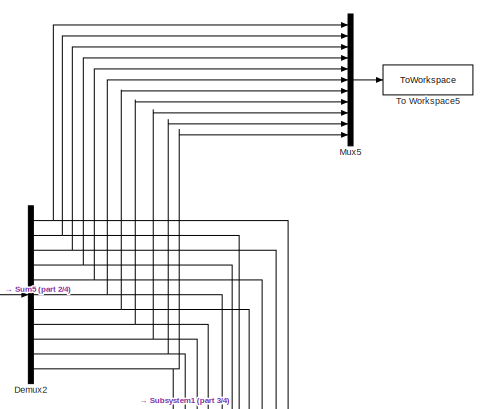
[diagram: root canvas - part 1/4, top center region]
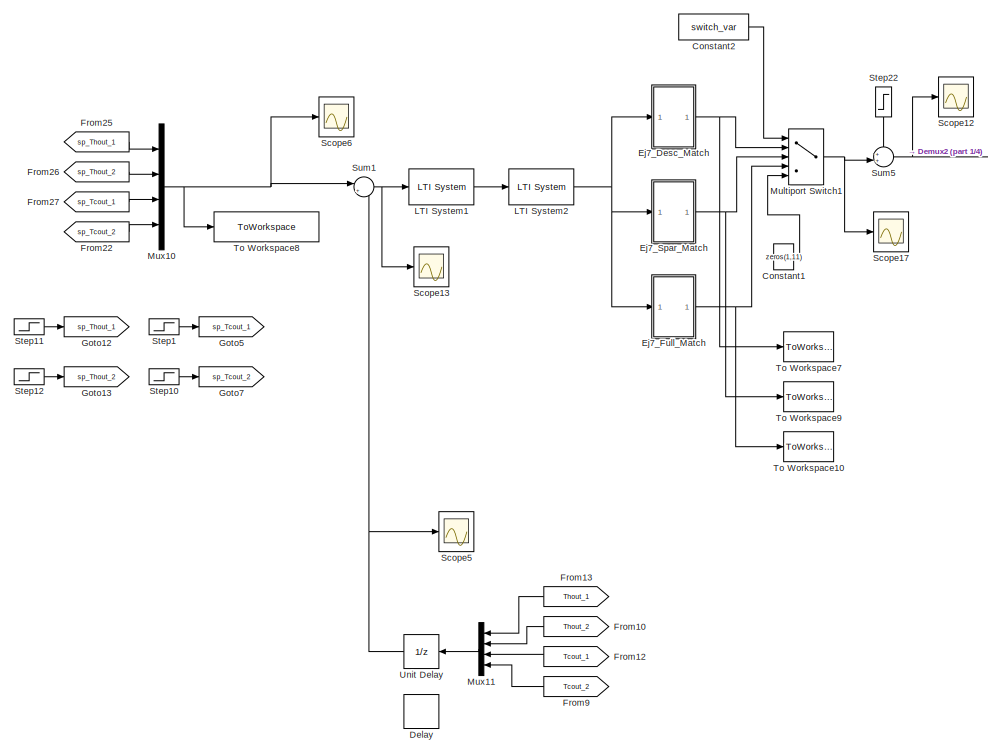
[diagram: root canvas - part 2/4, middle left region]
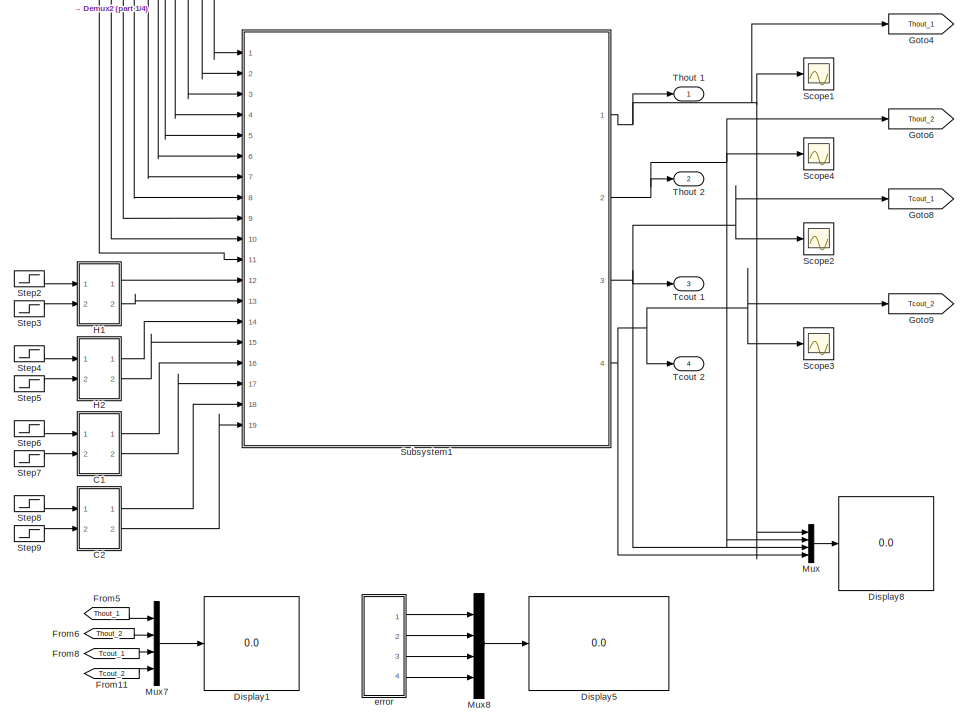
[diagram: root canvas - part 3/4, bottom center region]
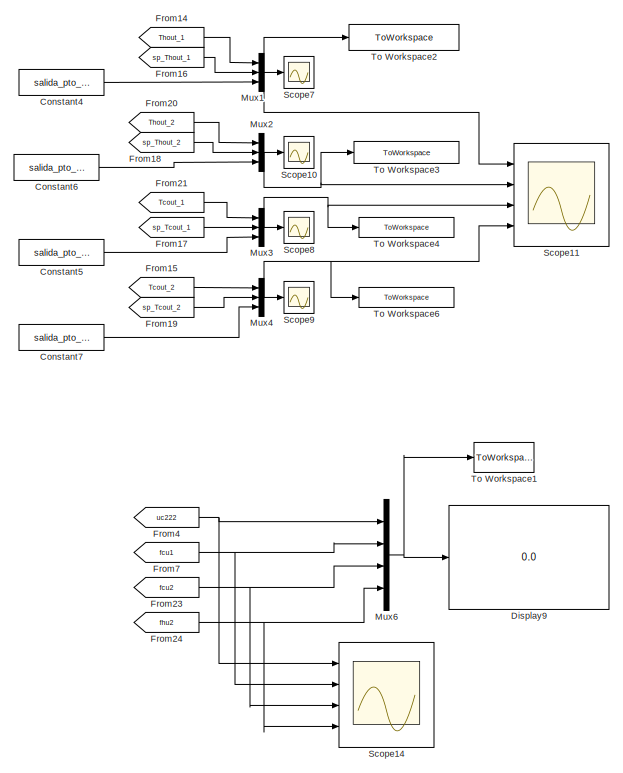
[diagram: root canvas - part 4/4, bottom right region]
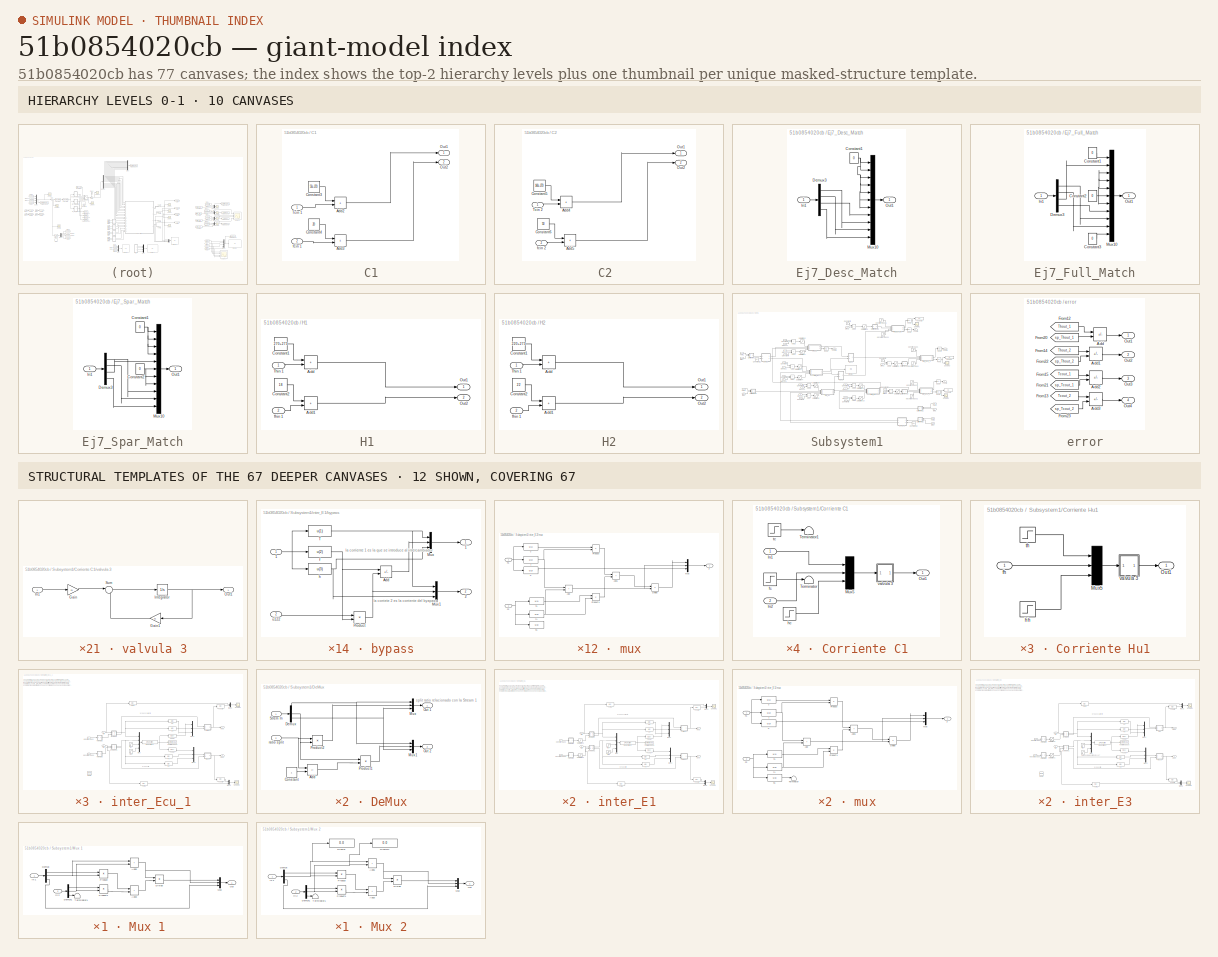
[diagram: thumbnail index - top-2 hierarchy levels (10 canvases) + 12 structural-template representatives of the remaining 67 canvases]
MODEL slx_51b0854020cb
KIND model
CONFIG AbsTol = auto
CONFIG EnableMultiTasking = off
CONFIG FixedStep = auto
CONFIG MaxStep = auto
CONFIG MinStep = auto
CONFIG RelTol = 1e-3
CONFIG SampleTimeConstraint = Unconstrained
CONFIG SolverName = ode15s
CONFIG StartTime = 0.0
CONFIG StopTime = sim_time
BLOCK [SubSystem] C1
  Ports = [2, 2]
  RequestExecContextInheritance = off
BLOCK [Sum] C1/Add2
  IconShape = rectangular
  Ports = [2, 1]
BLOCK [Sum] C1/Add3
  IconShape = rectangular
  Ports = [2, 1]
BLOCK [Constant] C1/Constant3
  Value = 50+273
BLOCK [Constant] C1/Constant4
  Value = 20
BLOCK [Outport] C1/Out1
  VectorParamsAs1DForOutWhenUnconnected = off
BLOCK [Outport] C1/Out2
  Port = 2
  VectorParamsAs1DForOutWhenUnconnected = off
BLOCK [Inport] C1/Tcin 1
BLOCK [Inport] C1/fcin 1
  Port = 2
BLOCK [SubSystem] C2 
  Ports = [2, 2]
  RequestExecContextInheritance = off
BLOCK [Sum] C2 /Add4
  IconShape = rectangular
  NameLocation = top
  Ports = [2, 1]
BLOCK [Sum] C2 /Add5
  IconShape = rectangular
  Ports = [2, 1]
BLOCK [Constant] C2 /Constant5
  Value = 160+273
BLOCK [Constant] C2 /Constant6
  Value = 50
BLOCK [Outport] C2 /Out1
  VectorParamsAs1DForOutWhenUnconnected = off
BLOCK [Outport] C2 /Out2
  Port = 2
  VectorParamsAs1DForOutWhenUnconnected = off
BLOCK [Inport] C2 /Tcin 2
BLOCK [Inport] C2 /fcin 2
  Port = 2
BLOCK [Constant] Constant1
  Value = zeros(1,11)
BLOCK [Constant] Constant2
  Value = switch_var
BLOCK [Constant] Constant4
  Value = salida_pto_op(1)
BLOCK [Constant] Constant5
  Value = salida_pto_op(3)
BLOCK [Constant] Constant6
  Value = salida_pto_op(2)
BLOCK [Constant] Constant7
  Value = salida_pto_op(4)
BLOCK [Delay] Delay
  InputPortMap = u0
  Ports = [1, 1]
BLOCK [Demux] Demux2
  Outputs = 11
  Ports = [1, 11]
BLOCK [Display] Display1
  Commented = on
  Decimation = 1
  Format = long
  Ports = [1]
BLOCK [Display] Display5
  Commented = on
  Decimation = 1
  Format = long
  Ports = [1]
BLOCK [Display] Display8
  Decimation = 1
  Format = long
  Ports = [1]
BLOCK [Display] Display9
  Decimation = 1
  Format = long
  Ports = [1]
BLOCK [SubSystem] Ej7_Desc_Match
  Ports = [1, 1]
  RequestExecContextInheritance = off
BLOCK [Constant] Ej7_Desc_Match/Constant1
  Value = 0
BLOCK [Demux] Ej7_Desc_Match/Demux3
  Ports = [1, 4]
BLOCK [Inport] Ej7_Desc_Match/In1
BLOCK [Mux] Ej7_Desc_Match/Mux10
  DisplayOption = bar
  Inputs = 11
  Ports = [11, 1]
BLOCK [Outport] Ej7_Desc_Match/Out1
BLOCK [SubSystem] Ej7_Full_Match
  Ports = [1, 1]
  RequestExecContextInheritance = off
BLOCK [Constant] Ej7_Full_Match/Constant1
  Value = 0
BLOCK [Constant] Ej7_Full_Match/Constant2
  Value = 0
BLOCK [Constant] Ej7_Full_Match/Constant3
  Value = 0
BLOCK [Demux] Ej7_Full_Match/Demux3
  Ports = [1, 4]
BLOCK [Inport] Ej7_Full_Match/In1
BLOCK [Mux] Ej7_Full_Match/Mux10
  DisplayOption = bar
  Inputs = 11
  Ports = [11, 1]
BLOCK [Outport] Ej7_Full_Match/Out1
BLOCK [SubSystem] Ej7_Spar_Match
  Ports = [1, 1]
  RequestExecContextInheritance = off
BLOCK [Constant] Ej7_Spar_Match/Constant1
  Value = 0
BLOCK [Constant] Ej7_Spar_Match/Constant2
  Value = 0
BLOCK [Demux] Ej7_Spar_Match/Demux3
  Ports = [1, 4]
BLOCK [Inport] Ej7_Spar_Match/In1
BLOCK [Mux] Ej7_Spar_Match/Mux10
  DisplayOption = bar
  Inputs = 11
  Ports = [11, 1]
BLOCK [Outport] Ej7_Spar_Match/Out1
BLOCK [From] From10
  GotoTag = Thout_2
  NameLocation = top
BLOCK [From] From11
  Commented = on
  GotoTag = Tcout_2
  TagVisibility = global
BLOCK [From] From12
  GotoTag = Tcout_1
  NameLocation = top
BLOCK [From] From13
  GotoTag = Thout_1
  NameLocation = top
BLOCK [From] From14
  GotoTag = Thout_1
BLOCK [From] From15
  GotoTag = Tcout_2
BLOCK [From] From16
  GotoTag = sp_Thout_1
  TagVisibility = global
BLOCK [From] From17
  GotoTag = sp_Tcout_1
  TagVisibility = global
BLOCK [From] From18
  GotoTag = sp_Thout_2
  TagVisibility = global
BLOCK [From] From19
  GotoTag = sp_Tcout_2
  TagVisibility = global
BLOCK [From] From20
  GotoTag = Thout_2
BLOCK [From] From21
  GotoTag = Tcout_1
BLOCK [From] From22
  GotoTag = sp_Tcout_2
  TagVisibility = global
BLOCK [From] From23
  GotoTag = fcu2
BLOCK [From] From24
  GotoTag = fhu2
BLOCK [From] From25
  GotoTag = sp_Thout_1
  TagVisibility = global
BLOCK [From] From26
  GotoTag = sp_Thout_2
  TagVisibility = global
BLOCK [From] From27
  GotoTag = sp_Tcout_1
  TagVisibility = global
BLOCK [From] From4
  GotoTag = uc222
BLOCK [From] From5
  Commented = on
  GotoTag = Thout_1
  TagVisibility = global
BLOCK [From] From6
  Commented = on
  GotoTag = Thout_2
  TagVisibility = global
BLOCK [From] From7
  GotoTag = fcu1
BLOCK [From] From8
  Commented = on
  GotoTag = Tcout_1
  TagVisibility = global
BLOCK [From] From9
  GotoTag = Tcout_2
  NameLocation = top
BLOCK [Goto] Goto12
  GotoTag = sp_Thout_1
  TagVisibility = global
BLOCK [Goto] Goto13
  GotoTag = sp_Thout_2
  TagVisibility = global
BLOCK [Goto] Goto4
  GotoTag = Thout_1
BLOCK [Goto] Goto5
  GotoTag = sp_Tcout_1
  TagVisibility = global
BLOCK [Goto] Goto6
  GotoTag = Thout_2
BLOCK [Goto] Goto7
  GotoTag = sp_Tcout_2
  TagVisibility = global
BLOCK [Goto] Goto8
  GotoTag = Tcout_1
BLOCK [Goto] Goto9
  GotoTag = Tcout_2
BLOCK [SubSystem] H1 
  Ports = [2, 2]
  RequestExecContextInheritance = off
BLOCK [Sum] H1 /Add
  IconShape = rectangular
  Ports = [2, 1]
BLOCK [Sum] H1 /Add1
  IconShape = rectangular
  Ports = [2, 1]
BLOCK [Constant] H1 /Constant1
  Value = 270+273
BLOCK [Constant] H1 /Constant2
  Value = 18
BLOCK [Outport] H1 /Out1
  VectorParamsAs1DForOutWhenUnconnected = off
BLOCK [Outport] H1 /Out2
  Port = 2
  VectorParamsAs1DForOutWhenUnconnected = off
BLOCK [Inport] H1 /Thin 1
BLOCK [Inport] H1 /fhin 1
  Port = 2
BLOCK [SubSystem] H2
  Ports = [2, 2]
  RequestExecContextInheritance = off
BLOCK [Sum] H2/Add
  IconShape = rectangular
  Ports = [2, 1]
BLOCK [Sum] H2/Add1
  IconShape = rectangular
  Ports = [2, 1]
BLOCK [Constant] H2/Constant1
  Value = 220+273
BLOCK [Constant] H2/Constant2
  Value = 22
BLOCK [Outport] H2/Out1
  VectorParamsAs1DForOutWhenUnconnected = off
BLOCK [Outport] H2/Out2
  Port = 2
  VectorParamsAs1DForOutWhenUnconnected = off
BLOCK [Inport] H2/Thin 1
BLOCK [Inport] H2/fhin 1
  Port = 2
BLOCK [Reference] LTI System1  REF=cstblocks/LTI System
  Ports = [1, 1]
  SourceBlock = cstblocks/LTI System
  SourceProductBaseCode = CT
  SourceType = LTI Block
BLOCK [Reference] LTI System2  REF=cstblocks/LTI System
  Ports = [1, 1]
  SourceBlock = cstblocks/LTI System
  SourceProductBaseCode = CT
  SourceType = LTI Block
BLOCK [MultiPortSwitch] Multiport Switch1
  DataPortForDefault = Additional data port
  DataPortOrder = Zero-based contiguous
  DiagnosticForDefault = None
  InputSameDT = off
  Ports = [5, 1]
  SaturateOnIntegerOverflow = off
  zeroidx = on
BLOCK [Mux] Mux
  DisplayOption = bar
  Ports = [4, 1]
BLOCK [Mux] Mux1
  DisplayOption = bar
  Inputs = 3
  Ports = [3, 1]
BLOCK [Mux] Mux10
  DisplayOption = bar
  Ports = [4, 1]
BLOCK [Mux] Mux11
  DisplayOption = bar
  NameLocation = top
  Ports = [4, 1]
BLOCK [Mux] Mux2
  DisplayOption = bar
  Inputs = 3
  Ports = [3, 1]
BLOCK [Mux] Mux3
  DisplayOption = bar
  Inputs = 3
  Ports = [3, 1]
BLOCK [Mux] Mux4
  DisplayOption = bar
  Inputs = 3
  Ports = [3, 1]
BLOCK [Mux] Mux5
  DisplayOption = bar
  Inputs = 11
  Ports = [11, 1]
BLOCK [Mux] Mux6
  DisplayOption = bar
  Ports = [4, 1]
BLOCK [Mux] Mux7
  Commented = on
  DisplayOption = bar
  Ports = [4, 1]
BLOCK [Mux] Mux8
  Commented = on
  DisplayOption = bar
  Ports = [4, 1]
BLOCK [Scope] Scope1
  Floating = off
  NumInputPorts = 1
  Ports = [1]
  ScopeSpecificationString = C++SS(StrPVP('Location','[188, 365, 512, 604]'),StrPVP('Open','off'),MxPVP('AxesTitles',54,'struct(''axes1'',''%<SignalLabel>'')'),MxPVP('ScopeGraphics',57,'struct(''FigureColor'',''[0.5 0.5 0.5]'',''AxesColor'',''[0 0 0]'',''AxesTickColor'',''[1 1 1]'',''LineColors'',''[1 1 0;1 0 1;0 1 1;1 0 0;0 1 0;0 0 1]'',''LineStyles'',''-|-|-|-|-|-'',''LineWidths'',''[0.5 0.5 0.5 0.5 0.5 0.5]'',''MarkerStyle...<+240ch>
BLOCK [Scope] Scope10
  Floating = off
  NumInputPorts = 1
  Ports = [1]
  ScopeSpecificationString = Simulink.scopes.TimeScopeBlockCfg('CurrentConfiguration', extmgr.ConfigurationSet(extmgr.Configuration('Core','General UI',true),extmgr.Configuration('Core','Source UI',true),extmgr.Configuration('Sources','WiredSimulink',true,'DataLoggingVariableName','ScopeData2','DataLoggingLimitDataPoints',true,'DataLoggingSaveFormat','Array','DataLoggingDecimation','1','DataLoggingDecimateData',true),extmgr.C...<+899ch>
BLOCK [Scope] Scope11
  Floating = off
  NumInputPorts = 4
  Ports = [4]
  ScopeSpecificationString = Simulink.scopes.TimeScopeBlockCfg('CurrentConfiguration', extmgr.ConfigurationSet(extmgr.Configuration('Core','General UI',true,'FigureColor',[1 1 1]),extmgr.Configuration('Core','Source UI',true),extmgr.Configuration('Sources','WiredSimulink',true,'DataLoggingVariableName','ScopeData4','DataLoggingSaveFormat','Array','DataLoggingDecimation','1','DataLoggingDecimateData',true),extmgr.Configuration...<+4664ch>
BLOCK [Scope] Scope12
  Floating = off
  NumInputPorts = 1
  Ports = [1]
  ScopeSpecificationString = Simulink.scopes.TimeScopeBlockCfg('CurrentConfiguration', extmgr.ConfigurationSet(extmgr.Configuration('Core','General UI',true,'FigureColor',[0 0 0]),extmgr.Configuration('Core','Source UI',true),extmgr.Configuration('Sources','WiredSimulink',true,'DataLoggingVariableName','ScopeData1','DataLoggingSaveFormat','StructureWithTime','DataLoggingLimitDataPoints',true,'DataLoggingDecimation','1','DataL...<+2052ch>
BLOCK [Scope] Scope13
  Floating = off
  NumInputPorts = 1
  Ports = [1]
  ScopeSpecificationString = Simulink.scopes.TimeScopeBlockCfg('CurrentConfiguration', extmgr.ConfigurationSet(extmgr.Configuration('Core','General UI',true,'FigureColor',[0 0 0]),extmgr.Configuration('Core','Source UI',true),extmgr.Configuration('Sources','WiredSimulink',true,'DataLoggingVariableName','ScopeData2','DataLoggingSaveFormat','StructureWithTime','DataLoggingLimitDataPoints',true,'DataLoggingDecimation','1','DataL...<+1960ch>
BLOCK [Scope] Scope14
  Floating = off
  NumInputPorts = 4
  Ports = [4]
  ScopeSpecificationString = Simulink.scopes.TimeScopeBlockCfg('CurrentConfiguration', extmgr.ConfigurationSet(extmgr.Configuration('Core','General UI',true,'FigureColor','[1 1 1]'),extmgr.Configuration('Sources','WiredSimulink',true,'DataLoggingVariableName','ScopeData1','DataLoggingDecimateData',true,'DataLoggingDecimation','1','DataLoggingSaveFormat','Array'),extmgr.Configuration('Visuals','Time Domain',true,'SerializedDis...<+3900ch>
BLOCK [Scope] Scope17
  Floating = off
  NumInputPorts = 1
  Ports = [1]
  ScopeSpecificationString = Simulink.scopes.TimeScopeBlockCfg('CurrentConfiguration', extmgr.ConfigurationSet(extmgr.Configuration('Core','General UI',true,'FigureColor',[0 0 0]),extmgr.Configuration('Core','Source UI',true),extmgr.Configuration('Sources','WiredSimulink',true,'DataLoggingVariableName','ScopeData2','DataLoggingSaveFormat','StructureWithTime','DataLoggingLimitDataPoints',true,'DataLoggingDecimation','1','DataL...<+1953ch>
BLOCK [Scope] Scope2
  Floating = off
  NumInputPorts = 1
  Ports = [1]
  ScopeSpecificationString = C++SS(StrPVP('Location','[188, 365, 512, 604]'),StrPVP('Open','off'),MxPVP('AxesTitles',54,'struct(''axes1'',''%<SignalLabel>'')'),MxPVP('ScopeGraphics',57,'struct(''FigureColor'',''[0.5 0.5 0.5]'',''AxesColor'',''[0 0 0]'',''AxesTickColor'',''[1 1 1]'',''LineColors'',''[1 1 0;1 0 1;0 1 1;1 0 0;0 1 0;0 0 1]'',''LineStyles'',''-|-|-|-|-|-'',''LineWidths'',''[0.5 0.5 0.5 0.5 0.5 0.5]'',''MarkerStyle...<+192ch>  <repeated x3 — deduplicated; at blocks: Scope2, Scope3, Scope4>
BLOCK [Scope] Scope3
  Floating = off
  NumInputPorts = 1
  Ports = [1]
BLOCK [Scope] Scope4
  Floating = off
  NumInputPorts = 1
  Ports = [1]
BLOCK [Scope] Scope5
  Floating = off
  NumInputPorts = 1
  Ports = [1]
  ScopeSpecificationString = Simulink.scopes.TimeScopeBlockCfg('CurrentConfiguration', extmgr.ConfigurationSet(extmgr.Configuration('Core','General UI',true,'FigureColor',[0 0 0]),extmgr.Configuration('Core','Source UI',true),extmgr.Configuration('Sources','WiredSimulink',true,'DataLoggingVariableName','ScopeData1','DataLoggingSaveFormat','StructureWithTime','DataLoggingLimitDataPoints',true,'DataLoggingDecimation','1','DataL...<+1960ch>
BLOCK [Scope] Scope6
  Floating = off
  NumInputPorts = 1
  Ports = [1]
  ScopeSpecificationString = Simulink.scopes.TimeScopeBlockCfg('CurrentConfiguration', extmgr.ConfigurationSet(extmgr.Configuration('Core','General UI',true,'FigureColor',[0 0 0]),extmgr.Configuration('Core','Source UI',true),extmgr.Configuration('Sources','WiredSimulink',true,'DataLoggingVariableName','ScopeData3','DataLoggingSaveFormat','StructureWithTime','DataLoggingLimitDataPoints',true,'DataLoggingDecimation','1','DataL...<+1942ch>
BLOCK [Scope] Scope7
  Floating = off
  NumInputPorts = 1
  Ports = [1]
  ScopeSpecificationString = Simulink.scopes.TimeScopeBlockCfg('CurrentConfiguration', extmgr.ConfigurationSet(extmgr.Configuration('Core','General UI',true),extmgr.Configuration('Core','Source UI',true),extmgr.Configuration('Sources','WiredSimulink',true,'DataLoggingVariableName','ScopeData5','DataLoggingLimitDataPoints',true,'DataLoggingSaveFormat','Array','DataLoggingDecimation','1','DataLoggingDecimateData',true),extmgr.C...<+1751ch>
BLOCK [Scope] Scope8
  Floating = off
  NumInputPorts = 1
  Ports = [1]
  ScopeSpecificationString = Simulink.scopes.TimeScopeBlockCfg('CurrentConfiguration', extmgr.ConfigurationSet(extmgr.Configuration('Core','General UI',true),extmgr.Configuration('Core','Source UI',true),extmgr.Configuration('Sources','WiredSimulink',true,'DataLoggingVariableName','ScopeData6','DataLoggingLimitDataPoints',true,'DataLoggingSaveFormat','Array','DataLoggingDecimation','1','DataLoggingDecimateData',true),extmgr.C...<+899ch>
BLOCK [Scope] Scope9
  Floating = off
  NumInputPorts = 1
  Ports = [1]
  ScopeSpecificationString = Simulink.scopes.TimeScopeBlockCfg('CurrentConfiguration', extmgr.ConfigurationSet(extmgr.Configuration('Core','General UI',true),extmgr.Configuration('Core','Source UI',true),extmgr.Configuration('Sources','WiredSimulink',true,'DataLoggingVariableName','ScopeData7','DataLoggingLimitDataPoints',true,'DataLoggingSaveFormat','Array','DataLoggingDecimation','1','DataLoggingDecimateData',true),extmgr.C...<+899ch>
BLOCK [Step] Step1
  After = 210+273
  Before = 210+273
  Time = 1e9
BLOCK [Step] Step10
  After = 210+273
  Before = 210+273
  Time = 1e10
BLOCK [Step] Step11
  After = 160+273
  Before = 160+273
  Time = 1e9
BLOCK [Step] Step12
  After = 60+273
  Before = 60+273
  Time = 1e9
BLOCK [Step] Step2
  After = d1_end
  Before = d1_in
  Time = t_step
BLOCK [Step] Step22
  After = initials
  Before = initials
  NameLocation = left
  Time = 0
BLOCK [Step] Step3
  After = d2_end
  Before = d2_in
  Time = t_step
BLOCK [Step] Step4
  After = d3_end
  Before = d3_in
  Time = t_step
BLOCK [Step] Step5
  After = d4_end
  Before = d4_in
  Time = t_step
BLOCK [Step] Step6
  After = d5_end
  Before = d5_in
  Time = t_step
BLOCK [Step] Step7
  After = d6_end
  Before = d6_in
  Time = t_step
BLOCK [Step] Step8
  After = d7_end
  Before = d7_in
  Time = t_step
BLOCK [Step] Step9
  After = d8_end
  Before = d8_in
  Time = t_step
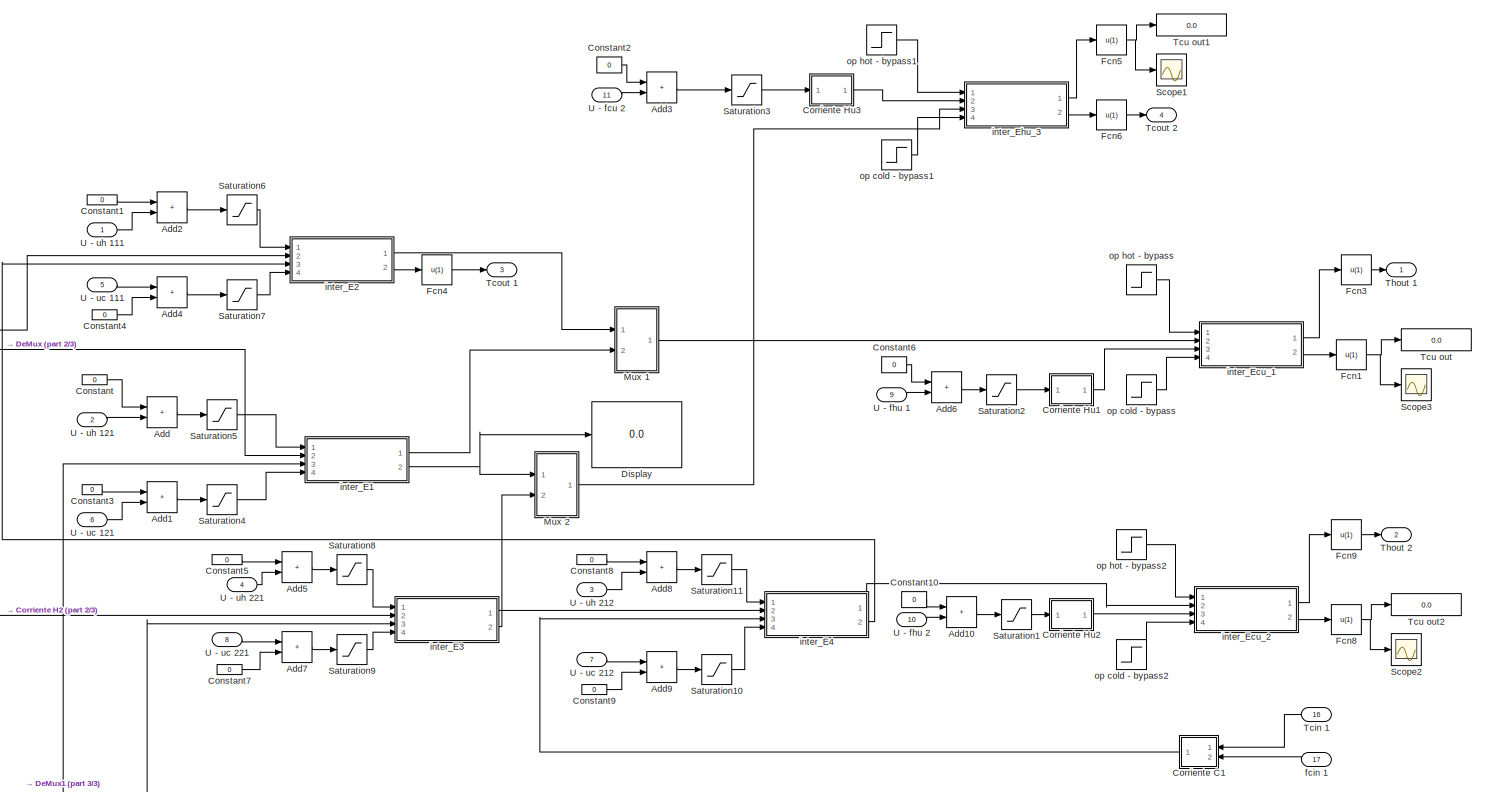
[diagram: Subsystem1 - part 1/3, most of the canvas]
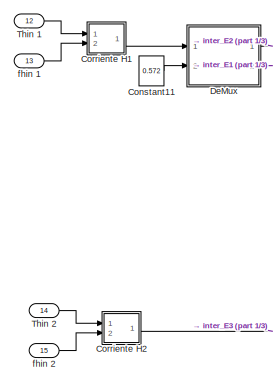
[diagram: Subsystem1 - part 2/3, middle left region]
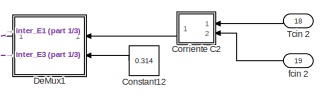
[diagram: Subsystem1 - part 3/3, bottom right region]
BLOCK [SubSystem] Subsystem1
  Ports = [19, 4]
  RequestExecContextInheritance = off
BLOCK [Sum] Subsystem1/Add
  IconShape = rectangular
  Ports = [2, 1]
BLOCK [Sum] Subsystem1/Add1
  IconShape = rectangular
  Ports = [2, 1]
BLOCK [Sum] Subsystem1/Add10
  IconShape = rectangular
  Ports = [2, 1]
BLOCK [Sum] Subsystem1/Add2
  IconShape = rectangular
  Ports = [2, 1]
BLOCK [Sum] Subsystem1/Add3
  IconShape = rectangular
  Ports = [2, 1]
BLOCK [Sum] Subsystem1/Add4
  IconShape = rectangular
  Ports = [2, 1]
BLOCK [Sum] Subsystem1/Add5
  IconShape = rectangular
  Ports = [2, 1]
BLOCK [Sum] Subsystem1/Add6
  IconShape = rectangular
  Ports = [2, 1]
BLOCK [Sum] Subsystem1/Add7
  IconShape = rectangular
  Ports = [2, 1]
BLOCK [Sum] Subsystem1/Add8
  IconShape = rectangular
  Ports = [2, 1]
BLOCK [Sum] Subsystem1/Add9
  IconShape = rectangular
  Ports = [2, 1]
BLOCK [Constant] Subsystem1/Constant
  Value = 0
BLOCK [Constant] Subsystem1/Constant1
  Value = 0
BLOCK [Constant] Subsystem1/Constant10
  Value = 0
BLOCK [Constant] Subsystem1/Constant11
  Value = 0.572
BLOCK [Constant] Subsystem1/Constant12
  NameLocation = top
  Value = 0.314
BLOCK [Constant] Subsystem1/Constant2
  Value = 0
BLOCK [Constant] Subsystem1/Constant3
  Value = 0
BLOCK [Constant] Subsystem1/Constant4
  Value = 0
BLOCK [Constant] Subsystem1/Constant5
  Value = 0
BLOCK [Constant] Subsystem1/Constant6
  Value = 0
BLOCK [Constant] Subsystem1/Constant7
  Value = 0
BLOCK [Constant] Subsystem1/Constant8
  Value = 0
BLOCK [Constant] Subsystem1/Constant9
  Value = 0
BLOCK [SubSystem] Subsystem1/Corriente C1
  NameLocation = top
  Ports = [2, 1]
  RequestExecContextInheritance = off
BLOCK [Inport] Subsystem1/Corriente C1/In1
BLOCK [Inport] Subsystem1/Corriente C1/In2
  Port = 2
BLOCK [Mux] Subsystem1/Corriente C1/Mux5
  DisplayOption = bar
  Inputs = 3
  Ports = [3, 1]
BLOCK [Outport] Subsystem1/Corriente C1/Out1
  VectorParamsAs1DForOutWhenUnconnected = off
BLOCK [Terminator] Subsystem1/Corriente C1/Terminator
BLOCK [Terminator] Subsystem1/Corriente C1/Terminator1
BLOCK [Step] Subsystem1/Corriente C1/fc
  After = 13
  Before = 13
  SampleTime = 0
BLOCK [Step] Subsystem1/Corriente C1/hc
  Before = 1
  SampleTime = 0
BLOCK [Step] Subsystem1/Corriente C1/tc
  After = 333
  Before = 333
  SampleTime = 0
BLOCK [SubSystem] Subsystem1/Corriente C1/valvula 3
  Ports = [1, 1]
  RequestExecContextInheritance = off
BLOCK [Gain] Subsystem1/Corriente C1/valvula 3/Gain
  Gain = s1
BLOCK [Gain] Subsystem1/Corriente C1/valvula 3/Gain1
  Gain = s1
  NameLocation = top
BLOCK [Inport] Subsystem1/Corriente C1/valvula 3/In1
BLOCK [Integrator] Subsystem1/Corriente C1/valvula 3/Integrator
  InitialCondition = [Thuin fhu2 hhu]
  Ports = [1, 1]
BLOCK [Outport] Subsystem1/Corriente C1/valvula 3/Out1
  VectorParamsAs1DForOutWhenUnconnected = off
BLOCK [Sum] Subsystem1/Corriente C1/valvula 3/Sum
  Inputs = |+-
  Ports = [2, 1]
BLOCK [SubSystem] Subsystem1/Corriente C2
  Ports = [2, 1]
  RequestExecContextInheritance = off
BLOCK [Inport] Subsystem1/Corriente C2/In1
BLOCK [Inport] Subsystem1/Corriente C2/In2
  Port = 2
BLOCK [Mux] Subsystem1/Corriente C2/Mux5
  DisplayOption = bar
  Inputs = 3
  Ports = [3, 1]
BLOCK [Outport] Subsystem1/Corriente C2/Out1
  VectorParamsAs1DForOutWhenUnconnected = off
BLOCK [Terminator] Subsystem1/Corriente C2/Terminator
BLOCK [Terminator] Subsystem1/Corriente C2/Terminator1
BLOCK [Step] Subsystem1/Corriente C2/fh
  After = 12
  Before = 12
  SampleTime = 0
BLOCK [Step] Subsystem1/Corriente C2/hh
  Before = 1
  SampleTime = 0
BLOCK [Step] Subsystem1/Corriente C2/th
  After = 293
  Before = 293
  SampleTime = 0
  Time = 2
BLOCK [SubSystem] Subsystem1/Corriente C2/valvula 3
  Ports = [1, 1]
  RequestExecContextInheritance = off
BLOCK [Gain] Subsystem1/Corriente C2/valvula 3/Gain
  Gain = s1
BLOCK [Gain] Subsystem1/Corriente C2/valvula 3/Gain1
  Gain = s1
  NameLocation = top
BLOCK [Inport] Subsystem1/Corriente C2/valvula 3/In1
BLOCK [Integrator] Subsystem1/Corriente C2/valvula 3/Integrator
  InitialCondition = [Thuin fhu2 hhu]
  Ports = [1, 1]
BLOCK [Outport] Subsystem1/Corriente C2/valvula 3/Out1
  VectorParamsAs1DForOutWhenUnconnected = off
BLOCK [Sum] Subsystem1/Corriente C2/valvula 3/Sum
  Inputs = |+-
  Ports = [2, 1]
BLOCK [SubSystem] Subsystem1/Corriente H1
  Ports = [2, 1]
  RequestExecContextInheritance = off
BLOCK [Inport] Subsystem1/Corriente H1/In1
BLOCK [Inport] Subsystem1/Corriente H1/In2
  Port = 2
BLOCK [Mux] Subsystem1/Corriente H1/Mux5
  DisplayOption = bar
  Inputs = 3
  Ports = [3, 1]
BLOCK [Outport] Subsystem1/Corriente H1/Out1
  VectorParamsAs1DForOutWhenUnconnected = off
BLOCK [Terminator] Subsystem1/Corriente H1/Terminator
BLOCK [Terminator] Subsystem1/Corriente H1/Terminator1
BLOCK [Step] Subsystem1/Corriente H1/fh
  After = 20
  Before = 20
  SampleTime = 0
BLOCK [Step] Subsystem1/Corriente H1/hh
  Before = 1
  SampleTime = 0
BLOCK [Step] Subsystem1/Corriente H1/th
  After = 423
  Before = 423
  SampleTime = 0
  Time = 2
BLOCK [SubSystem] Subsystem1/Corriente H1/valvula 3
  Ports = [1, 1]
  RequestExecContextInheritance = off
BLOCK [Gain] Subsystem1/Corriente H1/valvula 3/Gain
  Gain = s1
BLOCK [Gain] Subsystem1/Corriente H1/valvula 3/Gain1
  Gain = s1
  NameLocation = top
BLOCK [Inport] Subsystem1/Corriente H1/valvula 3/In1
BLOCK [Integrator] Subsystem1/Corriente H1/valvula 3/Integrator
  InitialCondition = [Thuin fhu2 hhu]
  Ports = [1, 1]
BLOCK [Outport] Subsystem1/Corriente H1/valvula 3/Out1
  VectorParamsAs1DForOutWhenUnconnected = off
BLOCK [Sum] Subsystem1/Corriente H1/valvula 3/Sum
  Inputs = |+-
  Ports = [2, 1]
BLOCK [SubSystem] Subsystem1/Corriente H2
  Ports = [2, 1]
  RequestExecContextInheritance = off
BLOCK [Inport] Subsystem1/Corriente H2/In1
BLOCK [Inport] Subsystem1/Corriente H2/In2
  Port = 2
BLOCK [Mux] Subsystem1/Corriente H2/Mux5
  DisplayOption = bar
  Inputs = 3
  Ports = [3, 1]
BLOCK [Outport] Subsystem1/Corriente H2/Out1
  VectorParamsAs1DForOutWhenUnconnected = off
BLOCK [Terminator] Subsystem1/Corriente H2/Terminator
BLOCK [Terminator] Subsystem1/Corriente H2/Terminator1
BLOCK [Step] Subsystem1/Corriente H2/fh
  After = 20
  Before = 20
  SampleTime = 0
BLOCK [Step] Subsystem1/Corriente H2/hh
  Before = 1
  SampleTime = 0
BLOCK [Step] Subsystem1/Corriente H2/th
  After = 423
  Before = 423
  SampleTime = 0
  Time = 2
BLOCK [SubSystem] Subsystem1/Corriente H2/valvula 3
  Ports = [1, 1]
  RequestExecContextInheritance = off
BLOCK [Gain] Subsystem1/Corriente H2/valvula 3/Gain
  Gain = s1
BLOCK [Gain] Subsystem1/Corriente H2/valvula 3/Gain1
  Gain = s1
  NameLocation = top
BLOCK [Inport] Subsystem1/Corriente H2/valvula 3/In1
BLOCK [Integrator] Subsystem1/Corriente H2/valvula 3/Integrator
  InitialCondition = [Thuin fhu2 hhu]
  Ports = [1, 1]
BLOCK [Outport] Subsystem1/Corriente H2/valvula 3/Out1
  VectorParamsAs1DForOutWhenUnconnected = off
BLOCK [Sum] Subsystem1/Corriente H2/valvula 3/Sum
  Inputs = |+-
  Ports = [2, 1]
BLOCK [SubSystem] Subsystem1/Corriente Hu1
  Ports = [1, 1]
  RequestExecContextInheritance = off
BLOCK [Mux] Subsystem1/Corriente Hu1/Mux5
  DisplayOption = bar
  Inputs = 3
  Ports = [3, 1]
BLOCK [Outport] Subsystem1/Corriente Hu1/Out1
  VectorParamsAs1DForOutWhenUnconnected = off
BLOCK [Inport] Subsystem1/Corriente Hu1/fh
BLOCK [Step] Subsystem1/Corriente Hu1/hh
  Before = 1
  SampleTime = 0
BLOCK [Step] Subsystem1/Corriente Hu1/th
  After = 15+273
  Before = 15+273
  SampleTime = 0
  Time = 2
BLOCK [SubSystem] Subsystem1/Corriente Hu1/valvula 3
  Ports = [1, 1]
  RequestExecContextInheritance = off
BLOCK [Gain] Subsystem1/Corriente Hu1/valvula 3/Gain
  Gain = s1
BLOCK [Gain] Subsystem1/Corriente Hu1/valvula 3/Gain1
  Gain = s1
  NameLocation = top
BLOCK [Inport] Subsystem1/Corriente Hu1/valvula 3/In1
BLOCK [Integrator] Subsystem1/Corriente Hu1/valvula 3/Integrator
  InitialCondition = [Tcuin fcu2 hcu]
  Ports = [1, 1]
BLOCK [Outport] Subsystem1/Corriente Hu1/valvula 3/Out1
  VectorParamsAs1DForOutWhenUnconnected = off
BLOCK [Sum] Subsystem1/Corriente Hu1/valvula 3/Sum
  Inputs = |+-
  Ports = [2, 1]
BLOCK [SubSystem] Subsystem1/Corriente Hu2
  Ports = [1, 1]
  RequestExecContextInheritance = off
BLOCK [Mux] Subsystem1/Corriente Hu2/Mux5
  DisplayOption = bar
  Inputs = 3
  Ports = [3, 1]
BLOCK [Outport] Subsystem1/Corriente Hu2/Out1
  VectorParamsAs1DForOutWhenUnconnected = off
BLOCK [Inport] Subsystem1/Corriente Hu2/fh
BLOCK [Step] Subsystem1/Corriente Hu2/hh
  Before = 1
  SampleTime = 0
BLOCK [Step] Subsystem1/Corriente Hu2/th
  After = 15+273
  Before = 15+273
  SampleTime = 0
  Time = 2
BLOCK [SubSystem] Subsystem1/Corriente Hu2/valvula 3
  Ports = [1, 1]
  RequestExecContextInheritance = off
BLOCK [Gain] Subsystem1/Corriente Hu2/valvula 3/Gain
  Gain = s1
BLOCK [Gain] Subsystem1/Corriente Hu2/valvula 3/Gain1
  Gain = s1
  NameLocation = top
BLOCK [Inport] Subsystem1/Corriente Hu2/valvula 3/In1
BLOCK [Integrator] Subsystem1/Corriente Hu2/valvula 3/Integrator
  InitialCondition = [Tcuin fcu2 hcu]
  Ports = [1, 1]
BLOCK [Outport] Subsystem1/Corriente Hu2/valvula 3/Out1
  VectorParamsAs1DForOutWhenUnconnected = off
BLOCK [Sum] Subsystem1/Corriente Hu2/valvula 3/Sum
  Inputs = |+-
  Ports = [2, 1]
BLOCK [SubSystem] Subsystem1/Corriente Hu3
  Ports = [1, 1]
  RequestExecContextInheritance = off
BLOCK [Mux] Subsystem1/Corriente Hu3/Mux5
  DisplayOption = bar
  Inputs = 3
  Ports = [3, 1]
BLOCK [Outport] Subsystem1/Corriente Hu3/Out1
  VectorParamsAs1DForOutWhenUnconnected = off
BLOCK [Inport] Subsystem1/Corriente Hu3/fh
BLOCK [Step] Subsystem1/Corriente Hu3/hh
  Before = 1
  SampleTime = 0
BLOCK [Step] Subsystem1/Corriente Hu3/th
  After = 250+273
  Before = 250+273
  SampleTime = 0
  Time = 2
BLOCK [SubSystem] Subsystem1/Corriente Hu3/valvula 3
  Ports = [1, 1]
  RequestExecContextInheritance = off
BLOCK [Gain] Subsystem1/Corriente Hu3/valvula 3/Gain
  Gain = s1
BLOCK [Gain] Subsystem1/Corriente Hu3/valvula 3/Gain1
  Gain = s1
  NameLocation = top
BLOCK [Inport] Subsystem1/Corriente Hu3/valvula 3/In1
BLOCK [Integrator] Subsystem1/Corriente Hu3/valvula 3/Integrator
  InitialCondition = [Tcuin fcu2 hcu]
  Ports = [1, 1]
BLOCK [Outport] Subsystem1/Corriente Hu3/valvula 3/Out1
  VectorParamsAs1DForOutWhenUnconnected = off
BLOCK [Sum] Subsystem1/Corriente Hu3/valvula 3/Sum
  Inputs = |+-
  Ports = [2, 1]
BLOCK [SubSystem] Subsystem1/DeMux
  Ports = [2, 2]
  RequestExecContextInheritance = off
BLOCK [Sum] Subsystem1/DeMux/Add
  IconShape = rectangular
  Inputs = -+
  Ports = [2, 1]
BLOCK [Constant] Subsystem1/DeMux/Constant
BLOCK [Demux] Subsystem1/DeMux/Demux
  Outputs = 3
  Ports = [1, 3]
BLOCK [Mux] Subsystem1/DeMux/Mux
  DisplayOption = bar
  Inputs = 3
  Ports = [3, 1]
BLOCK [Mux] Subsystem1/DeMux/Mux1
  DisplayOption = bar
  Inputs = 3
  Ports = [3, 1]
BLOCK [Outport] Subsystem1/DeMux/Out 1
  VectorParamsAs1DForOutWhenUnconnected = off
BLOCK [Outport] Subsystem1/DeMux/Out 2
  Port = 2
  VectorParamsAs1DForOutWhenUnconnected = off
BLOCK [Product] Subsystem1/DeMux/Product1
  Ports = [2, 1]
BLOCK [Product] Subsystem1/DeMux/Product2
  Ports = [2, 1]
BLOCK [Inport] Subsystem1/DeMux/Strem In
BLOCK [Inport] Subsystem1/DeMux/ratio split 
  Port = 2
BLOCK [SubSystem] Subsystem1/DeMux1
  NameLocation = top
  Ports = [2, 2]
  RequestExecContextInheritance = off
BLOCK [Sum] Subsystem1/DeMux1/Add
  IconShape = rectangular
  Inputs = -+
  Ports = [2, 1]
BLOCK [Constant] Subsystem1/DeMux1/Constant
BLOCK [Demux] Subsystem1/DeMux1/Demux
  Outputs = 3
  Ports = [1, 3]
BLOCK [Mux] Subsystem1/DeMux1/Mux
  DisplayOption = bar
  Inputs = 3
  Ports = [3, 1]
BLOCK [Mux] Subsystem1/DeMux1/Mux1
  DisplayOption = bar
  Inputs = 3
  Ports = [3, 1]
BLOCK [Outport] Subsystem1/DeMux1/Out 1
  VectorParamsAs1DForOutWhenUnconnected = off
BLOCK [Outport] Subsystem1/DeMux1/Out 2
  Port = 2
  VectorParamsAs1DForOutWhenUnconnected = off
BLOCK [Product] Subsystem1/DeMux1/Product1
  Ports = [2, 1]
BLOCK [Product] Subsystem1/DeMux1/Product2
  Ports = [2, 1]
BLOCK [Inport] Subsystem1/DeMux1/Strem In
BLOCK [Inport] Subsystem1/DeMux1/ratio split 
  Port = 2
BLOCK [Display] Subsystem1/Display
  Decimation = 1
  Ports = [1]
BLOCK [Fcn] Subsystem1/Fcn1
  Expr = u(1)
BLOCK [Fcn] Subsystem1/Fcn3
  Expr = u(1)
BLOCK [Fcn] Subsystem1/Fcn4
  Expr = u(1)
BLOCK [Fcn] Subsystem1/Fcn5
  Expr = u(1)
BLOCK [Fcn] Subsystem1/Fcn6
  Expr = u(1)
BLOCK [Fcn] Subsystem1/Fcn8
  Expr = u(1)
BLOCK [Fcn] Subsystem1/Fcn9
  Expr = u(1)
BLOCK [SubSystem] Subsystem1/Mux 1 
  Ports = [2, 1]
  RequestExecContextInheritance = off
BLOCK [Sum] Subsystem1/Mux 1 /Add3
  IconShape = rectangular
  Ports = [2, 1]
BLOCK [Sum] Subsystem1/Mux 1 /Add5
  IconShape = rectangular
  Ports = [2, 1]
BLOCK [Demux] Subsystem1/Mux 1 /Demux
  Outputs = 3
  Ports = [1, 3]
BLOCK [Demux] Subsystem1/Mux 1 /Demux1
  Outputs = 3
  Ports = [1, 3]
BLOCK [Product] Subsystem1/Mux 1 /Divide
  Inputs = /*
  Ports = [2, 1]
BLOCK [Mux] Subsystem1/Mux 1 /Mux
  DisplayOption = bar
  Inputs = 3
  Ports = [3, 1]
BLOCK [Outport] Subsystem1/Mux 1 /Out
  VectorParamsAs1DForOutWhenUnconnected = off
BLOCK [Product] Subsystem1/Mux 1 /Product
  Ports = [2, 1]
BLOCK [Product] Subsystem1/Mux 1 /Product1
  Ports = [2, 1]
BLOCK [Terminator] Subsystem1/Mux 1 /Terminator1
BLOCK [Inport] Subsystem1/Mux 1 /in 1
BLOCK [Inport] Subsystem1/Mux 1 /in 2
  Port = 2
BLOCK [SubSystem] Subsystem1/Mux 2
  Ports = [2, 1]
  RequestExecContextInheritance = off
BLOCK [Sum] Subsystem1/Mux 2/Add3
  IconShape = rectangular
  Ports = [2, 1]
BLOCK [Sum] Subsystem1/Mux 2/Add5
  IconShape = rectangular
  Ports = [2, 1]
BLOCK [Demux] Subsystem1/Mux 2/Demux
  Outputs = 3
  Ports = [1, 3]
BLOCK [Demux] Subsystem1/Mux 2/Demux1
  Outputs = 3
  Ports = [1, 3]
BLOCK [Display] Subsystem1/Mux 2/Display
  Decimation = 1
  Ports = [1]
BLOCK [Display] Subsystem1/Mux 2/Display1
  Decimation = 1
  Ports = [1]
BLOCK [Product] Subsystem1/Mux 2/Divide
  Inputs = /*
  Ports = [2, 1]
BLOCK [Mux] Subsystem1/Mux 2/Mux
  DisplayOption = bar
  Inputs = 3
  Ports = [3, 1]
BLOCK [Outport] Subsystem1/Mux 2/Out
  VectorParamsAs1DForOutWhenUnconnected = off
BLOCK [Product] Subsystem1/Mux 2/Product
  Ports = [2, 1]
BLOCK [Product] Subsystem1/Mux 2/Product1
  Ports = [2, 1]
BLOCK [Terminator] Subsystem1/Mux 2/Terminator1
BLOCK [Inport] Subsystem1/Mux 2/in 1
BLOCK [Inport] Subsystem1/Mux 2/in 2
  Port = 2
BLOCK [Saturate] Subsystem1/Saturation1
  LowerLimit = 0
  UpperLimit = 1e9
BLOCK [Saturate] Subsystem1/Saturation10
  LowerLimit = 1e-3
  UpperLimit = 1e9
BLOCK [Saturate] Subsystem1/Saturation11
  LowerLimit = 1e-3
  UpperLimit = 1e9
BLOCK [Saturate] Subsystem1/Saturation2
  LowerLimit = 0
  UpperLimit = 1e9
BLOCK [Saturate] Subsystem1/Saturation3
  LowerLimit = 0
  UpperLimit = 1e9
BLOCK [Saturate] Subsystem1/Saturation4
  LowerLimit = 1e-3
  UpperLimit = 1e9
BLOCK [Saturate] Subsystem1/Saturation5
  LowerLimit = 1e-3
  UpperLimit = 1e9
BLOCK [Saturate] Subsystem1/Saturation6
  LowerLimit = 1e-3
  UpperLimit = 1e9
BLOCK [Saturate] Subsystem1/Saturation7
  LowerLimit = 1e-3
  UpperLimit = 1e9
BLOCK [Saturate] Subsystem1/Saturation8
  LowerLimit = 1e-3
  UpperLimit = 1e9
BLOCK [Saturate] Subsystem1/Saturation9
  LowerLimit = 1e-3
  UpperLimit = 1e9
BLOCK [Scope] Subsystem1/Scope1
  Floating = off
  NumInputPorts = 1
  Ports = [1]
  ScopeSpecificationString = Simulink.scopes.TimeScopeBlockCfg('CurrentConfiguration', extmgr.ConfigurationSet(extmgr.Configuration('Core','General UI',true,'DisplayFullSourceName',false,'ShowMainToolbar',true),extmgr.Configuration('Sources','WiredSimulink',true,'DataLogging',false,'DataLoggingVariableName','ScopeData1','DataLoggingLimitDataPoints',true,'DataLoggingMaxPoints','5000','DataLoggingDecimateData',true,'DataLogging...<+1532ch>
BLOCK [Scope] Subsystem1/Scope2
  Floating = off
  NumInputPorts = 1
  Ports = [1]
  ScopeSpecificationString = Simulink.scopes.TimeScopeBlockCfg('CurrentConfiguration', extmgr.ConfigurationSet(extmgr.Configuration('Core','General UI',true,'DisplayFullSourceName',false,'ShowMainToolbar',true),extmgr.Configuration('Sources','WiredSimulink',true,'DataLogging',false,'DataLoggingVariableName','ScopeData3','DataLoggingLimitDataPoints',true,'DataLoggingMaxPoints','5000','DataLoggingDecimateData',true,'DataLogging...<+1532ch>
BLOCK [Scope] Subsystem1/Scope3
  Floating = off
  NumInputPorts = 1
  Ports = [1]
  ScopeSpecificationString = Simulink.scopes.TimeScopeBlockCfg('CurrentConfiguration', extmgr.ConfigurationSet(extmgr.Configuration('Core','General UI',true,'DisplayFullSourceName',false,'ShowMainToolbar',true),extmgr.Configuration('Sources','WiredSimulink',true,'DataLogging',false,'DataLoggingVariableName','ScopeData','DataLoggingLimitDataPoints',true,'DataLoggingMaxPoints','5000','DataLoggingDecimateData',true,'DataLoggingD...<+1531ch>  <repeated x15 — deduplicated; at blocks: Scope3, Scope1, Scope8>
BLOCK [Inport] Subsystem1/Tcin 1
  Port = 16
BLOCK [Inport] Subsystem1/Tcin 2
  Port = 18
BLOCK [Outport] Subsystem1/Tcout 1
  Port = 3
  VectorParamsAs1DForOutWhenUnconnected = off
BLOCK [Outport] Subsystem1/Tcout 2
  Port = 4
  VectorParamsAs1DForOutWhenUnconnected = off
BLOCK [Display] Subsystem1/Tcu out
  Decimation = 1
  NameLocation = top
  Ports = [1]
BLOCK [Display] Subsystem1/Tcu out1
  Decimation = 1
  NameLocation = top
  Ports = [1]
BLOCK [Display] Subsystem1/Tcu out2
  Decimation = 1
  NameLocation = top
  Ports = [1]
BLOCK [Inport] Subsystem1/Thin 1
  Port = 12
BLOCK [Inport] Subsystem1/Thin 2
  Port = 14
BLOCK [Outport] Subsystem1/Thout 1
  VectorParamsAs1DForOutWhenUnconnected = off
BLOCK [Outport] Subsystem1/Thout 2
  Port = 2
  VectorParamsAs1DForOutWhenUnconnected = off
BLOCK [Inport] Subsystem1/U - fcu 2
  Port = 11
BLOCK [Inport] Subsystem1/U - fhu 1
  Port = 9
BLOCK [Inport] Subsystem1/U - fhu 2
  Port = 10
BLOCK [Inport] Subsystem1/U - uc 111
  Port = 5
BLOCK [Inport] Subsystem1/U - uc 121
  Port = 6
BLOCK [Inport] Subsystem1/U - uc 212
  Port = 7
BLOCK [Inport] Subsystem1/U - uc 221
  Port = 8
BLOCK [Inport] Subsystem1/U - uh 111
BLOCK [Inport] Subsystem1/U - uh 121
  Port = 2
BLOCK [Inport] Subsystem1/U - uh 212
  Port = 3
BLOCK [Inport] Subsystem1/U - uh 221
  Port = 4
BLOCK [Inport] Subsystem1/fcin 1
  Port = 17
BLOCK [Inport] Subsystem1/fcin 2
  Port = 19
BLOCK [Inport] Subsystem1/fhin 1
  Port = 13
BLOCK [Inport] Subsystem1/fhin 2
  Port = 15
BLOCK [SubSystem] Subsystem1/inter_E1
  Ports = [4, 2]
  RequestExecContextInheritance = off
BLOCK [Step] Subsystem1/inter_E1/Area
  After = aE1
  Before = aE1
  SampleTime = 0
  Time = 8
BLOCK [Inport] Subsystem1/inter_E1/C in
  Port = 3
BLOCK [Outport] Subsystem1/inter_E1/C out
  Port = 2
  VectorParamsAs1DForOutWhenUnconnected = off
BLOCK [Fcn] Subsystem1/inter_E1/Fc
  Expr = u(2)
BLOCK [Fcn] Subsystem1/inter_E1/Fh
  Expr = u(2)
BLOCK [Inport] Subsystem1/inter_E1/H In
  Port = 2
BLOCK [Outport] Subsystem1/inter_E1/H out
  VectorParamsAs1DForOutWhenUnconnected = off
BLOCK [Mux] Subsystem1/inter_E1/Mux
  DisplayOption = bar
  Ports = [4, 1]
BLOCK [Mux] Subsystem1/inter_E1/Mux1
  DisplayOption = bar
  Inputs = 3
  Ports = [3, 1]
BLOCK [Mux] Subsystem1/inter_E1/Mux2
  DisplayOption = bar
  Inputs = 3
  Ports = [3, 1]
BLOCK [Mux] Subsystem1/inter_E1/Mux3
  DisplayOption = bar
  Inputs = 2
  Ports = [2, 1]
BLOCK [Mux] Subsystem1/inter_E1/Mux6
  DisplayOption = bar
  Inputs = 2
  Ports = [2, 1]
BLOCK [S-Function] Subsystem1/inter_E1/S-Function2
  EnableBusSupport = off
  FunctionName = Int_er
  Parameters = 10 543 433 121 2
  Ports = [1, 1]
  SFcnIsStateOwnerBlock = off
  SFunctionDeploymentMode = off
BLOCK [Saturate] Subsystem1/inter_E1/Saturation1
  LowerLimit = 0
  UpperLimit = 1
BLOCK [Saturate] Subsystem1/inter_E1/Saturation2
  LowerLimit = 0
  UpperLimit = 1
BLOCK [Scope] Subsystem1/inter_E1/Scope1
  Floating = off
  NumInputPorts = 1
  Ports = [1]
BLOCK [Scope] Subsystem1/inter_E1/Scope8
  Floating = off
  NumInputPorts = 1
  Ports = [1]
BLOCK [Fcn] Subsystem1/inter_E1/Tcin1
  Expr = u(1)
BLOCK [Fcn] Subsystem1/inter_E1/Tcin2
  Expr = u(1)
BLOCK [Fcn] Subsystem1/inter_E1/Tcout
  Expr = u(11)
BLOCK [Fcn] Subsystem1/inter_E1/Tcout1
  Expr = u(1)
BLOCK [Fcn] Subsystem1/inter_E1/Tcout2
  Expr = u(1)
BLOCK [Fcn] Subsystem1/inter_E1/Thout
  Expr = u(10)
BLOCK [ToWorkspace] Subsystem1/inter_E1/To Workspace
  MaxDataPoints = inf
  Ports = [1]
  SampleTime = -1
  VariableName = simout_inter_E1
BLOCK [SubSystem] Subsystem1/inter_E1/bypass
  Ports = [2, 2]
  RequestExecContextInheritance = off
BLOCK [Outport] Subsystem1/inter_E1/bypass/ 1
  VectorParamsAs1DForOutWhenUnconnected = off
BLOCK [Outport] Subsystem1/inter_E1/bypass/ 2
  Port = 2
  VectorParamsAs1DForOutWhenUnconnected = off
BLOCK [Inport] Subsystem1/inter_E1/bypass/1
BLOCK [Sum] Subsystem1/inter_E1/bypass/Add
  IconShape = rectangular
  Inputs = +-
  Ports = [2, 1]
BLOCK [Mux] Subsystem1/inter_E1/bypass/Mux
  DisplayOption = bar
  Inputs = 3
  Ports = [3, 1]
BLOCK [Mux] Subsystem1/inter_E1/bypass/Mux1
  DisplayOption = bar
  Inputs = 3
  Ports = [3, 1]
BLOCK [Product] Subsystem1/inter_E1/bypass/Product
  Ports = [2, 1]
BLOCK [Fcn] Subsystem1/inter_E1/bypass/T
  Expr = u(1)
BLOCK [Fcn] Subsystem1/inter_E1/bypass/f
  Expr = u(2)
BLOCK [Fcn] Subsystem1/inter_E1/bypass/h
  Expr = u(3)
BLOCK [Inport] Subsystem1/inter_E1/bypass/u122
  Port = 2
BLOCK [SubSystem] Subsystem1/inter_E1/bypass1
  Ports = [2, 2]
  RequestExecContextInheritance = off
BLOCK [Outport] Subsystem1/inter_E1/bypass1/ 1
  VectorParamsAs1DForOutWhenUnconnected = off
BLOCK [Outport] Subsystem1/inter_E1/bypass1/ 2
  Port = 2
  VectorParamsAs1DForOutWhenUnconnected = off
BLOCK [Inport] Subsystem1/inter_E1/bypass1/1
BLOCK [Sum] Subsystem1/inter_E1/bypass1/Add
  IconShape = rectangular
  Inputs = +-
  Ports = [2, 1]
BLOCK [Mux] Subsystem1/inter_E1/bypass1/Mux
  DisplayOption = bar
  Inputs = 3
  Ports = [3, 1]
BLOCK [Mux] Subsystem1/inter_E1/bypass1/Mux1
  DisplayOption = bar
  Inputs = 3
  Ports = [3, 1]
BLOCK [Product] Subsystem1/inter_E1/bypass1/Product
  Ports = [2, 1]
BLOCK [Fcn] Subsystem1/inter_E1/bypass1/T
  Expr = u(1)
BLOCK [Fcn] Subsystem1/inter_E1/bypass1/f
  Expr = u(2)
BLOCK [Fcn] Subsystem1/inter_E1/bypass1/h
  Expr = u(3)
BLOCK [Inport] Subsystem1/inter_E1/bypass1/u122
  Port = 2
BLOCK [Step] Subsystem1/inter_E1/fac
  After = 0
  SampleTime = 0
BLOCK [Fcn] Subsystem1/inter_E1/hc
  Expr = u(3)
BLOCK [Fcn] Subsystem1/inter_E1/hh
  Expr = u(3)
BLOCK [SubSystem] Subsystem1/inter_E1/mux
  Ports = [2, 1]
  RequestExecContextInheritance = off
BLOCK [Sum] Subsystem1/inter_E1/mux/Add
  IconShape = rectangular
  Ports = [2, 1]
BLOCK [Sum] Subsystem1/inter_E1/mux/Add1
  IconShape = rectangular
  Ports = [2, 1]
BLOCK [Product] Subsystem1/inter_E1/mux/Divide
  Inputs = */
  Ports = [2, 1]
BLOCK [Outport] Subsystem1/inter_E1/mux/F 
  VectorParamsAs1DForOutWhenUnconnected = off
BLOCK [Inport] Subsystem1/inter_E1/mux/F1
BLOCK [Inport] Subsystem1/inter_E1/mux/F2
  Port = 2
BLOCK [Mux] Subsystem1/inter_E1/mux/Mux
  DisplayOption = bar
  Inputs = 3
  Ports = [3, 1]
BLOCK [Product] Subsystem1/inter_E1/mux/Product
  Ports = [2, 1]
BLOCK [Product] Subsystem1/inter_E1/mux/Product1
  Ports = [2, 1]
BLOCK [Fcn] Subsystem1/inter_E1/mux/T
  Expr = u(1)
BLOCK [Fcn] Subsystem1/inter_E1/mux/T1
  Expr = u(1)
BLOCK [Terminator] Subsystem1/inter_E1/mux/Terminator
BLOCK [Fcn] Subsystem1/inter_E1/mux/f
  Expr = u(2)
BLOCK [Fcn] Subsystem1/inter_E1/mux/f1
  Expr = u(2)
BLOCK [Fcn] Subsystem1/inter_E1/mux/h
  Expr = u(3)
BLOCK [Fcn] Subsystem1/inter_E1/mux/h1
  Expr = u(3)
BLOCK [SubSystem] Subsystem1/inter_E1/mux1
  Ports = [2, 1]
  RequestExecContextInheritance = off
BLOCK [Sum] Subsystem1/inter_E1/mux1/Add
  IconShape = rectangular
  Ports = [2, 1]
BLOCK [Sum] Subsystem1/inter_E1/mux1/Add1
  IconShape = rectangular
  Ports = [2, 1]
BLOCK [Product] Subsystem1/inter_E1/mux1/Divide
  Inputs = */
  Ports = [2, 1]
BLOCK [Outport] Subsystem1/inter_E1/mux1/F 
  VectorParamsAs1DForOutWhenUnconnected = off
BLOCK [Inport] Subsystem1/inter_E1/mux1/F1
BLOCK [Inport] Subsystem1/inter_E1/mux1/F2
  Port = 2
BLOCK [Mux] Subsystem1/inter_E1/mux1/Mux
  DisplayOption = bar
  Inputs = 3
  Ports = [3, 1]
BLOCK [Product] Subsystem1/inter_E1/mux1/Product
  Ports = [2, 1]
BLOCK [Product] Subsystem1/inter_E1/mux1/Product1
  Ports = [2, 1]
BLOCK [Fcn] Subsystem1/inter_E1/mux1/T
  Expr = u(1)
BLOCK [Fcn] Subsystem1/inter_E1/mux1/T1
  Expr = u(1)
BLOCK [Terminator] Subsystem1/inter_E1/mux1/Terminator
BLOCK [Fcn] Subsystem1/inter_E1/mux1/f
  Expr = u(2)
BLOCK [Fcn] Subsystem1/inter_E1/mux1/f1
  Expr = u(2)
BLOCK [Fcn] Subsystem1/inter_E1/mux1/h
  Expr = u(3)
BLOCK [Fcn] Subsystem1/inter_E1/mux1/h1
  Expr = u(3)
BLOCK [Inport] Subsystem1/inter_E1/op cold - bypass 
  Port = 4
BLOCK [Inport] Subsystem1/inter_E1/op hot - bypass 
BLOCK [SubSystem] Subsystem1/inter_E1/valvula 1
  Ports = [1, 1]
  RequestExecContextInheritance = off
BLOCK [Gain] Subsystem1/inter_E1/valvula 1/Gain
  Gain = s1
BLOCK [Gain] Subsystem1/inter_E1/valvula 1/Gain1
  Gain = s1
  NameLocation = top
BLOCK [Inport] Subsystem1/inter_E1/valvula 1/In1
BLOCK [Integrator] Subsystem1/inter_E1/valvula 1/Integrator
  Ports = [1, 1]
BLOCK [Outport] Subsystem1/inter_E1/valvula 1/Out1
  VectorParamsAs1DForOutWhenUnconnected = off
BLOCK [Sum] Subsystem1/inter_E1/valvula 1/Sum
  Inputs = |+-
  Ports = [2, 1]
BLOCK [SubSystem] Subsystem1/inter_E1/valvula 2
  Ports = [1, 1]
  RequestExecContextInheritance = off
BLOCK [Gain] Subsystem1/inter_E1/valvula 2/Gain
  Gain = s1
BLOCK [Gain] Subsystem1/inter_E1/valvula 2/Gain1
  Gain = s1
  NameLocation = top
BLOCK [Inport] Subsystem1/inter_E1/valvula 2/In1
BLOCK [Integrator] Subsystem1/inter_E1/valvula 2/Integrator
  Ports = [1, 1]
BLOCK [Outport] Subsystem1/inter_E1/valvula 2/Out1
  VectorParamsAs1DForOutWhenUnconnected = off
BLOCK [Sum] Subsystem1/inter_E1/valvula 2/Sum
  Inputs = |+-
  Ports = [2, 1]
BLOCK [SubSystem] Subsystem1/inter_E2
  Ports = [4, 2]
  RequestExecContextInheritance = off
BLOCK [Step] Subsystem1/inter_E2/Area
  After = aE2
  Before = aE2
  SampleTime = 0
  Time = 8
BLOCK [Inport] Subsystem1/inter_E2/C in
  Port = 3
BLOCK [Outport] Subsystem1/inter_E2/C out
  Port = 2
  VectorParamsAs1DForOutWhenUnconnected = off
BLOCK [Fcn] Subsystem1/inter_E2/Fc
  Expr = u(2)
BLOCK [Fcn] Subsystem1/inter_E2/Fh
  Expr = u(2)
BLOCK [Inport] Subsystem1/inter_E2/H In
  Port = 2
BLOCK [Outport] Subsystem1/inter_E2/H out
  VectorParamsAs1DForOutWhenUnconnected = off
BLOCK [Mux] Subsystem1/inter_E2/Mux
  DisplayOption = bar
  Ports = [4, 1]
BLOCK [Mux] Subsystem1/inter_E2/Mux1
  DisplayOption = bar
  Inputs = 3
  Ports = [3, 1]
BLOCK [Mux] Subsystem1/inter_E2/Mux2
  DisplayOption = bar
  Inputs = 3
  Ports = [3, 1]
BLOCK [Mux] Subsystem1/inter_E2/Mux3
  DisplayOption = bar
  Inputs = 2
  Ports = [2, 1]
BLOCK [Mux] Subsystem1/inter_E2/Mux6
  DisplayOption = bar
  Inputs = 2
  Ports = [2, 1]
BLOCK [S-Function] Subsystem1/inter_E2/S-Function2
  EnableBusSupport = off
  FunctionName = Int_er
  Parameters = 10 443 323 111 2
  Ports = [1, 1]
  SFcnIsStateOwnerBlock = off
  SFunctionDeploymentMode = off
BLOCK [Saturate] Subsystem1/inter_E2/Saturation1
  LowerLimit = 0
  UpperLimit = 1
BLOCK [Saturate] Subsystem1/inter_E2/Saturation2
  LowerLimit = 0
  UpperLimit = 1
BLOCK [Scope] Subsystem1/inter_E2/Scope1
  Floating = off
  NumInputPorts = 1
  Ports = [1]
BLOCK [Scope] Subsystem1/inter_E2/Scope8
  Floating = off
  NumInputPorts = 1
  Ports = [1]
BLOCK [Fcn] Subsystem1/inter_E2/Tcin1
  Expr = u(1)
BLOCK [Fcn] Subsystem1/inter_E2/Tcin2
  Expr = u(1)
BLOCK [Fcn] Subsystem1/inter_E2/Tcout
  Expr = u(11)
BLOCK [Fcn] Subsystem1/inter_E2/Tcout1
  Expr = u(1)
BLOCK [Fcn] Subsystem1/inter_E2/Tcout2
  Expr = u(1)
BLOCK [Fcn] Subsystem1/inter_E2/Thout
  Expr = u(10)
BLOCK [ToWorkspace] Subsystem1/inter_E2/To Workspace
  MaxDataPoints = inf
  Ports = [1]
  SampleTime = -1
  VariableName = simout_int_E2
BLOCK [SubSystem] Subsystem1/inter_E2/bypass
  Ports = [2, 2]
  RequestExecContextInheritance = off
BLOCK [Outport] Subsystem1/inter_E2/bypass/ 1
  VectorParamsAs1DForOutWhenUnconnected = off
BLOCK [Outport] Subsystem1/inter_E2/bypass/ 2
  Port = 2
  VectorParamsAs1DForOutWhenUnconnected = off
BLOCK [Inport] Subsystem1/inter_E2/bypass/1
BLOCK [Sum] Subsystem1/inter_E2/bypass/Add
  IconShape = rectangular
  Inputs = +-
  Ports = [2, 1]
BLOCK [Mux] Subsystem1/inter_E2/bypass/Mux
  DisplayOption = bar
  Inputs = 3
  Ports = [3, 1]
BLOCK [Mux] Subsystem1/inter_E2/bypass/Mux1
  DisplayOption = bar
  Inputs = 3
  Ports = [3, 1]
BLOCK [Product] Subsystem1/inter_E2/bypass/Product
  Ports = [2, 1]
BLOCK [Fcn] Subsystem1/inter_E2/bypass/T
  Expr = u(1)
BLOCK [Fcn] Subsystem1/inter_E2/bypass/f
  Expr = u(2)
BLOCK [Fcn] Subsystem1/inter_E2/bypass/h
  Expr = u(3)
BLOCK [Inport] Subsystem1/inter_E2/bypass/u122
  Port = 2
BLOCK [SubSystem] Subsystem1/inter_E2/bypass1
  Ports = [2, 2]
  RequestExecContextInheritance = off
BLOCK [Outport] Subsystem1/inter_E2/bypass1/ 1
  VectorParamsAs1DForOutWhenUnconnected = off
BLOCK [Outport] Subsystem1/inter_E2/bypass1/ 2
  Port = 2
  VectorParamsAs1DForOutWhenUnconnected = off
BLOCK [Inport] Subsystem1/inter_E2/bypass1/1
BLOCK [Sum] Subsystem1/inter_E2/bypass1/Add
  IconShape = rectangular
  Inputs = +-
  Ports = [2, 1]
BLOCK [Mux] Subsystem1/inter_E2/bypass1/Mux
  DisplayOption = bar
  Inputs = 3
  Ports = [3, 1]
BLOCK [Mux] Subsystem1/inter_E2/bypass1/Mux1
  DisplayOption = bar
  Inputs = 3
  Ports = [3, 1]
BLOCK [Product] Subsystem1/inter_E2/bypass1/Product
  Ports = [2, 1]
BLOCK [Fcn] Subsystem1/inter_E2/bypass1/T
  Expr = u(1)
BLOCK [Fcn] Subsystem1/inter_E2/bypass1/f
  Expr = u(2)
BLOCK [Fcn] Subsystem1/inter_E2/bypass1/h
  Expr = u(3)
BLOCK [Inport] Subsystem1/inter_E2/bypass1/u122
  Port = 2
BLOCK [Step] Subsystem1/inter_E2/fac
  After = 0
  SampleTime = 0
BLOCK [Fcn] Subsystem1/inter_E2/hc
  Expr = u(3)
BLOCK [Fcn] Subsystem1/inter_E2/hh
  Expr = u(3)
BLOCK [SubSystem] Subsystem1/inter_E2/mux
  Ports = [2, 1]
  RequestExecContextInheritance = off
BLOCK [Sum] Subsystem1/inter_E2/mux/Add
  IconShape = rectangular
  Ports = [2, 1]
BLOCK [Sum] Subsystem1/inter_E2/mux/Add1
  IconShape = rectangular
  Ports = [2, 1]
BLOCK [Product] Subsystem1/inter_E2/mux/Divide
  Inputs = */
  Ports = [2, 1]
BLOCK [Outport] Subsystem1/inter_E2/mux/F 
  VectorParamsAs1DForOutWhenUnconnected = off
BLOCK [Inport] Subsystem1/inter_E2/mux/F1
BLOCK [Inport] Subsystem1/inter_E2/mux/F2
  Port = 2
BLOCK [Mux] Subsystem1/inter_E2/mux/Mux
  DisplayOption = bar
  Inputs = 3
  Ports = [3, 1]
BLOCK [Product] Subsystem1/inter_E2/mux/Product
  Ports = [2, 1]
BLOCK [Product] Subsystem1/inter_E2/mux/Product1
  Ports = [2, 1]
BLOCK [Fcn] Subsystem1/inter_E2/mux/T
  Expr = u(1)
BLOCK [Fcn] Subsystem1/inter_E2/mux/T1
  Expr = u(1)
BLOCK [Fcn] Subsystem1/inter_E2/mux/f
  Expr = u(2)
BLOCK [Fcn] Subsystem1/inter_E2/mux/f1
  Expr = u(2)
BLOCK [Fcn] Subsystem1/inter_E2/mux/h
  Expr = u(3)
BLOCK [Fcn] Subsystem1/inter_E2/mux/h1
  Expr = u(3)
BLOCK [SubSystem] Subsystem1/inter_E2/mux1
  Ports = [2, 1]
  RequestExecContextInheritance = off
BLOCK [Sum] Subsystem1/inter_E2/mux1/Add
  IconShape = rectangular
  Ports = [2, 1]
BLOCK [Sum] Subsystem1/inter_E2/mux1/Add1
  IconShape = rectangular
  Ports = [2, 1]
BLOCK [Product] Subsystem1/inter_E2/mux1/Divide
  Inputs = */
  Ports = [2, 1]
BLOCK [Outport] Subsystem1/inter_E2/mux1/F 
  VectorParamsAs1DForOutWhenUnconnected = off
BLOCK [Inport] Subsystem1/inter_E2/mux1/F1
BLOCK [Inport] Subsystem1/inter_E2/mux1/F2
  Port = 2
BLOCK [Mux] Subsystem1/inter_E2/mux1/Mux
  DisplayOption = bar
  Inputs = 3
  Ports = [3, 1]
BLOCK [Product] Subsystem1/inter_E2/mux1/Product
  Ports = [2, 1]
BLOCK [Product] Subsystem1/inter_E2/mux1/Product1
  Ports = [2, 1]
BLOCK [Fcn] Subsystem1/inter_E2/mux1/T
  Expr = u(1)
BLOCK [Fcn] Subsystem1/inter_E2/mux1/T1
  Expr = u(1)
BLOCK [Fcn] Subsystem1/inter_E2/mux1/f
  Expr = u(2)
BLOCK [Fcn] Subsystem1/inter_E2/mux1/f1
  Expr = u(2)
BLOCK [Fcn] Subsystem1/inter_E2/mux1/h
  Expr = u(3)
BLOCK [Fcn] Subsystem1/inter_E2/mux1/h1
  Expr = u(3)
BLOCK [Inport] Subsystem1/inter_E2/op cold - bypass 
  Port = 4
BLOCK [Inport] Subsystem1/inter_E2/op hot - bypass 
BLOCK [SubSystem] Subsystem1/inter_E2/valvula 1
  Ports = [1, 1]
  RequestExecContextInheritance = off
BLOCK [Gain] Subsystem1/inter_E2/valvula 1/Gain
  Gain = s1
BLOCK [Gain] Subsystem1/inter_E2/valvula 1/Gain1
  Gain = s1
  NameLocation = top
BLOCK [Inport] Subsystem1/inter_E2/valvula 1/In1
BLOCK [Integrator] Subsystem1/inter_E2/valvula 1/Integrator
  Ports = [1, 1]
BLOCK [Outport] Subsystem1/inter_E2/valvula 1/Out1
  VectorParamsAs1DForOutWhenUnconnected = off
BLOCK [Sum] Subsystem1/inter_E2/valvula 1/Sum
  Inputs = |+-
  Ports = [2, 1]
BLOCK [SubSystem] Subsystem1/inter_E2/valvula 2
  Ports = [1, 1]
  RequestExecContextInheritance = off
BLOCK [Gain] Subsystem1/inter_E2/valvula 2/Gain
  Gain = s1
BLOCK [Gain] Subsystem1/inter_E2/valvula 2/Gain1
  Gain = s1
  NameLocation = top
BLOCK [Inport] Subsystem1/inter_E2/valvula 2/In1
BLOCK [Integrator] Subsystem1/inter_E2/valvula 2/Integrator
  Ports = [1, 1]
BLOCK [Outport] Subsystem1/inter_E2/valvula 2/Out1
  VectorParamsAs1DForOutWhenUnconnected = off
BLOCK [Sum] Subsystem1/inter_E2/valvula 2/Sum
  Inputs = |+-
  Ports = [2, 1]
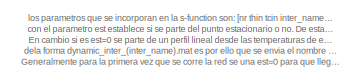
[diagram: Subsystem1/inter_E3 - part 1/2, top left region]
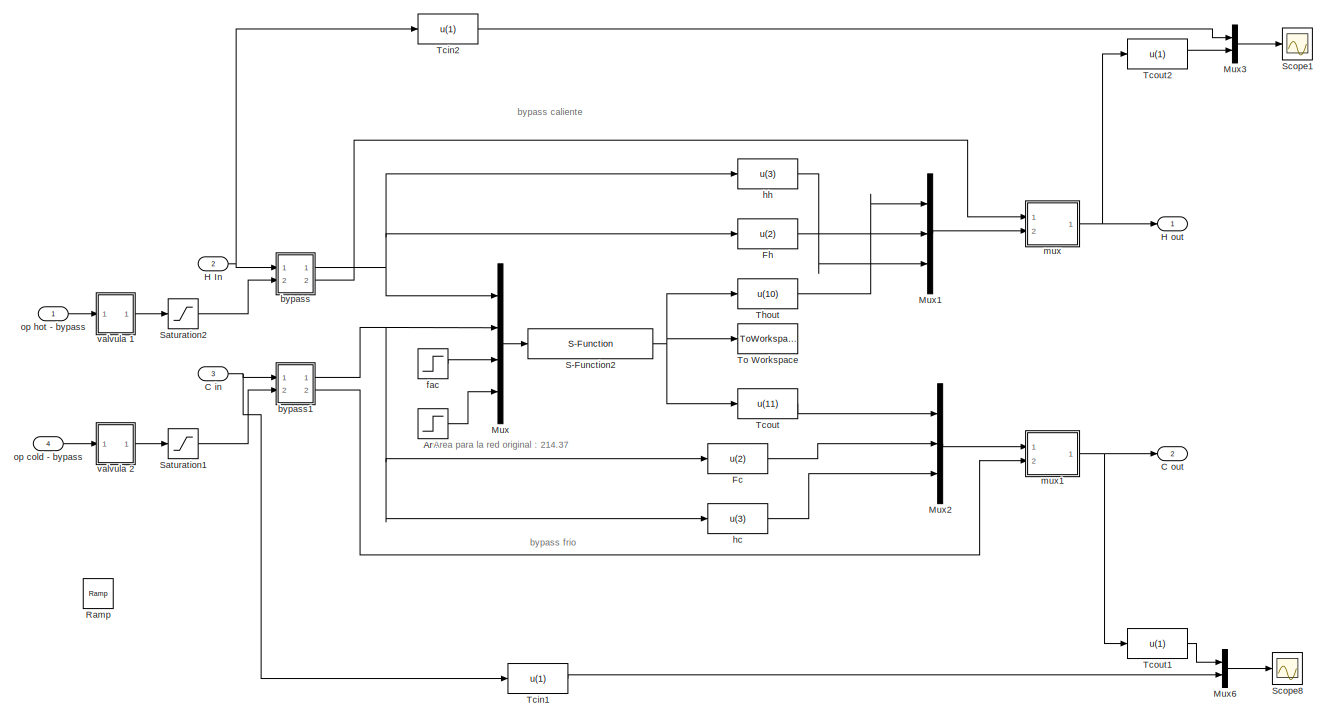
[diagram: Subsystem1/inter_E3 - part 2/2, most of the canvas]
BLOCK [SubSystem] Subsystem1/inter_E3
  Ports = [4, 2]
  RequestExecContextInheritance = off
BLOCK [Step] Subsystem1/inter_E3/Area
  After = aE3
  Before = aE3
  SampleTime = 0
  Time = 8
BLOCK [Inport] Subsystem1/inter_E3/C in
  Port = 3
BLOCK [Outport] Subsystem1/inter_E3/C out
  Port = 2
  VectorParamsAs1DForOutWhenUnconnected = off
BLOCK [Fcn] Subsystem1/inter_E3/Fc
  Expr = u(2)
BLOCK [Fcn] Subsystem1/inter_E3/Fh
  Expr = u(2)
BLOCK [Inport] Subsystem1/inter_E3/H In
  Port = 2
BLOCK [Outport] Subsystem1/inter_E3/H out
  VectorParamsAs1DForOutWhenUnconnected = off
BLOCK [Mux] Subsystem1/inter_E3/Mux
  DisplayOption = bar
  Ports = [4, 1]
BLOCK [Mux] Subsystem1/inter_E3/Mux1
  DisplayOption = bar
  Inputs = 3
  Ports = [3, 1]
BLOCK [Mux] Subsystem1/inter_E3/Mux2
  DisplayOption = bar
  Inputs = 3
  Ports = [3, 1]
BLOCK [Mux] Subsystem1/inter_E3/Mux3
  DisplayOption = bar
  Inputs = 2
  Ports = [2, 1]
BLOCK [Mux] Subsystem1/inter_E3/Mux6
  DisplayOption = bar
  Inputs = 2
  Ports = [2, 1]
BLOCK [Reference] Subsystem1/inter_E3/Ramp  REF=simulink/Sources/Ramp
  Ports = [0, 1]
  SourceBlock = simulink/Sources/Ramp
  SourceProductBaseCode = SL
  SourceType = Ramp
BLOCK [S-Function] Subsystem1/inter_E3/S-Function2
  EnableBusSupport = off
  FunctionName = Int_er
  Parameters = 10 493 433 222 2
  Ports = [1, 1]
  SFcnIsStateOwnerBlock = off
  SFunctionDeploymentMode = off
BLOCK [Saturate] Subsystem1/inter_E3/Saturation1
  LowerLimit = 0
  UpperLimit = 1
BLOCK [Saturate] Subsystem1/inter_E3/Saturation2
  LowerLimit = 0
  UpperLimit = 1
BLOCK [Scope] Subsystem1/inter_E3/Scope1
  Floating = off
  NumInputPorts = 1
  Ports = [1]
BLOCK [Scope] Subsystem1/inter_E3/Scope8
  Floating = off
  NumInputPorts = 1
  Ports = [1]
BLOCK [Fcn] Subsystem1/inter_E3/Tcin1
  Expr = u(1)
BLOCK [Fcn] Subsystem1/inter_E3/Tcin2
  Expr = u(1)
BLOCK [Fcn] Subsystem1/inter_E3/Tcout
  Expr = u(11)
BLOCK [Fcn] Subsystem1/inter_E3/Tcout1
  Expr = u(1)
BLOCK [Fcn] Subsystem1/inter_E3/Tcout2
  Expr = u(1)
BLOCK [Fcn] Subsystem1/inter_E3/Thout
  Expr = u(10)
BLOCK [ToWorkspace] Subsystem1/inter_E3/To Workspace
  MaxDataPoints = inf
  Ports = [1]
  SampleTime = -1
  VariableName = simout_int_E3
BLOCK [SubSystem] Subsystem1/inter_E3/bypass
  Ports = [2, 2]
  RequestExecContextInheritance = off
BLOCK [Outport] Subsystem1/inter_E3/bypass/ 1
  VectorParamsAs1DForOutWhenUnconnected = off
BLOCK [Outport] Subsystem1/inter_E3/bypass/ 2
  Port = 2
  VectorParamsAs1DForOutWhenUnconnected = off
BLOCK [Inport] Subsystem1/inter_E3/bypass/1
BLOCK [Sum] Subsystem1/inter_E3/bypass/Add
  IconShape = rectangular
  Inputs = +-
  Ports = [2, 1]
BLOCK [Mux] Subsystem1/inter_E3/bypass/Mux
  DisplayOption = bar
  Inputs = 3
  Ports = [3, 1]
BLOCK [Mux] Subsystem1/inter_E3/bypass/Mux1
  DisplayOption = bar
  Inputs = 3
  Ports = [3, 1]
BLOCK [Product] Subsystem1/inter_E3/bypass/Product
  Ports = [2, 1]
BLOCK [Fcn] Subsystem1/inter_E3/bypass/T
  Expr = u(1)
BLOCK [Fcn] Subsystem1/inter_E3/bypass/f
  Expr = u(2)
BLOCK [Fcn] Subsystem1/inter_E3/bypass/h
  Expr = u(3)
BLOCK [Inport] Subsystem1/inter_E3/bypass/u122
  Port = 2
BLOCK [SubSystem] Subsystem1/inter_E3/bypass1
  Ports = [2, 2]
  RequestExecContextInheritance = off
BLOCK [Outport] Subsystem1/inter_E3/bypass1/ 1
  VectorParamsAs1DForOutWhenUnconnected = off
BLOCK [Outport] Subsystem1/inter_E3/bypass1/ 2
  Port = 2
  VectorParamsAs1DForOutWhenUnconnected = off
BLOCK [Inport] Subsystem1/inter_E3/bypass1/1
BLOCK [Sum] Subsystem1/inter_E3/bypass1/Add
  IconShape = rectangular
  Inputs = +-
  Ports = [2, 1]
BLOCK [Mux] Subsystem1/inter_E3/bypass1/Mux
  DisplayOption = bar
  Inputs = 3
  Ports = [3, 1]
BLOCK [Mux] Subsystem1/inter_E3/bypass1/Mux1
  DisplayOption = bar
  Inputs = 3
  Ports = [3, 1]
BLOCK [Product] Subsystem1/inter_E3/bypass1/Product
  Ports = [2, 1]
BLOCK [Fcn] Subsystem1/inter_E3/bypass1/T
  Expr = u(1)
BLOCK [Fcn] Subsystem1/inter_E3/bypass1/f
  Expr = u(2)
BLOCK [Fcn] Subsystem1/inter_E3/bypass1/h
  Expr = u(3)
BLOCK [Inport] Subsystem1/inter_E3/bypass1/u122
  Port = 2
BLOCK [Step] Subsystem1/inter_E3/fac
  After = 0
  SampleTime = 0
BLOCK [Fcn] Subsystem1/inter_E3/hc
  Expr = u(3)
BLOCK [Fcn] Subsystem1/inter_E3/hh
  Expr = u(3)
BLOCK [SubSystem] Subsystem1/inter_E3/mux
  Ports = [2, 1]
  RequestExecContextInheritance = off
BLOCK [Sum] Subsystem1/inter_E3/mux/Add
  IconShape = rectangular
  Ports = [2, 1]
BLOCK [Sum] Subsystem1/inter_E3/mux/Add1
  IconShape = rectangular
  Ports = [2, 1]
BLOCK [Product] Subsystem1/inter_E3/mux/Divide
  Inputs = */
  Ports = [2, 1]
BLOCK [Outport] Subsystem1/inter_E3/mux/F 
  VectorParamsAs1DForOutWhenUnconnected = off
BLOCK [Inport] Subsystem1/inter_E3/mux/F1
BLOCK [Inport] Subsystem1/inter_E3/mux/F2
  Port = 2
BLOCK [Mux] Subsystem1/inter_E3/mux/Mux
  DisplayOption = bar
  Inputs = 3
  Ports = [3, 1]
BLOCK [Product] Subsystem1/inter_E3/mux/Product
  Ports = [2, 1]
BLOCK [Product] Subsystem1/inter_E3/mux/Product1
  Ports = [2, 1]
BLOCK [Fcn] Subsystem1/inter_E3/mux/T
  Expr = u(1)
BLOCK [Fcn] Subsystem1/inter_E3/mux/T1
  Expr = u(1)
BLOCK [Fcn] Subsystem1/inter_E3/mux/f
  Expr = u(2)
BLOCK [Fcn] Subsystem1/inter_E3/mux/f1
  Expr = u(2)
BLOCK [Fcn] Subsystem1/inter_E3/mux/h
  Expr = u(3)
BLOCK [Fcn] Subsystem1/inter_E3/mux/h1
  Expr = u(3)
BLOCK [SubSystem] Subsystem1/inter_E3/mux1
  Ports = [2, 1]
  RequestExecContextInheritance = off
BLOCK [Sum] Subsystem1/inter_E3/mux1/Add
  IconShape = rectangular
  Ports = [2, 1]
BLOCK [Sum] Subsystem1/inter_E3/mux1/Add1
  IconShape = rectangular
  Ports = [2, 1]
BLOCK [Product] Subsystem1/inter_E3/mux1/Divide
  Inputs = */
  Ports = [2, 1]
BLOCK [Outport] Subsystem1/inter_E3/mux1/F 
  VectorParamsAs1DForOutWhenUnconnected = off
BLOCK [Inport] Subsystem1/inter_E3/mux1/F1
BLOCK [Inport] Subsystem1/inter_E3/mux1/F2
  Port = 2
BLOCK [Mux] Subsystem1/inter_E3/mux1/Mux
  DisplayOption = bar
  Inputs = 3
  Ports = [3, 1]
BLOCK [Product] Subsystem1/inter_E3/mux1/Product
  Ports = [2, 1]
BLOCK [Product] Subsystem1/inter_E3/mux1/Product1
  Ports = [2, 1]
BLOCK [Fcn] Subsystem1/inter_E3/mux1/T
  Expr = u(1)
BLOCK [Fcn] Subsystem1/inter_E3/mux1/T1
  Expr = u(1)
BLOCK [Fcn] Subsystem1/inter_E3/mux1/f
  Expr = u(2)
BLOCK [Fcn] Subsystem1/inter_E3/mux1/f1
  Expr = u(2)
BLOCK [Fcn] Subsystem1/inter_E3/mux1/h
  Expr = u(3)
BLOCK [Fcn] Subsystem1/inter_E3/mux1/h1
  Expr = u(3)
BLOCK [Inport] Subsystem1/inter_E3/op cold - bypass 
  Port = 4
BLOCK [Inport] Subsystem1/inter_E3/op hot - bypass 
BLOCK [SubSystem] Subsystem1/inter_E3/valvula 1
  Ports = [1, 1]
  RequestExecContextInheritance = off
BLOCK [Gain] Subsystem1/inter_E3/valvula 1/Gain
  Gain = s1
BLOCK [Gain] Subsystem1/inter_E3/valvula 1/Gain1
  Gain = s1
  NameLocation = top
BLOCK [Inport] Subsystem1/inter_E3/valvula 1/In1
BLOCK [Integrator] Subsystem1/inter_E3/valvula 1/Integrator
  Ports = [1, 1]
BLOCK [Outport] Subsystem1/inter_E3/valvula 1/Out1
  VectorParamsAs1DForOutWhenUnconnected = off
BLOCK [Sum] Subsystem1/inter_E3/valvula 1/Sum
  Inputs = |+-
  Ports = [2, 1]
BLOCK [SubSystem] Subsystem1/inter_E3/valvula 2
  Ports = [1, 1]
  RequestExecContextInheritance = off
BLOCK [Gain] Subsystem1/inter_E3/valvula 2/Gain
  Gain = s1
BLOCK [Gain] Subsystem1/inter_E3/valvula 2/Gain1
  Gain = s1
  NameLocation = top
BLOCK [Inport] Subsystem1/inter_E3/valvula 2/In1
BLOCK [Integrator] Subsystem1/inter_E3/valvula 2/Integrator
  Ports = [1, 1]
BLOCK [Outport] Subsystem1/inter_E3/valvula 2/Out1
  VectorParamsAs1DForOutWhenUnconnected = off
BLOCK [Sum] Subsystem1/inter_E3/valvula 2/Sum
  Inputs = |+-
  Ports = [2, 1]
BLOCK [SubSystem] Subsystem1/inter_E4
  Ports = [4, 2]
  RequestExecContextInheritance = off
BLOCK [Step] Subsystem1/inter_E4/Area
  After = aE4
  Before = aE4
  SampleTime = 0
  Time = 8
BLOCK [Inport] Subsystem1/inter_E4/C in
  Port = 3
BLOCK [Outport] Subsystem1/inter_E4/C out
  Port = 2
  VectorParamsAs1DForOutWhenUnconnected = off
BLOCK [Fcn] Subsystem1/inter_E4/Fc
  Expr = u(2)
BLOCK [Fcn] Subsystem1/inter_E4/Fh
  Expr = u(2)
BLOCK [Inport] Subsystem1/inter_E4/H In
  Port = 2
BLOCK [Outport] Subsystem1/inter_E4/H out
  VectorParamsAs1DForOutWhenUnconnected = off
BLOCK [Mux] Subsystem1/inter_E4/Mux
  DisplayOption = bar
  Ports = [4, 1]
BLOCK [Mux] Subsystem1/inter_E4/Mux1
  DisplayOption = bar
  Inputs = 3
  Ports = [3, 1]
BLOCK [Mux] Subsystem1/inter_E4/Mux2
  DisplayOption = bar
  Inputs = 3
  Ports = [3, 1]
BLOCK [Mux] Subsystem1/inter_E4/Mux3
  DisplayOption = bar
  Inputs = 2
  Ports = [2, 1]
BLOCK [Mux] Subsystem1/inter_E4/Mux6
  DisplayOption = bar
  Inputs = 2
  Ports = [2, 1]
BLOCK [Reference] Subsystem1/inter_E4/Ramp  REF=simulink/Sources/Ramp
  Ports = [0, 1]
  SourceBlock = simulink/Sources/Ramp
  SourceProductBaseCode = SL
  SourceType = Ramp
BLOCK [S-Function] Subsystem1/inter_E4/S-Function2
  EnableBusSupport = off
  FunctionName = Int_er
  Parameters = 10 443 343 213 2
  Ports = [1, 1]
  SFcnIsStateOwnerBlock = off
  SFunctionDeploymentMode = off
BLOCK [Saturate] Subsystem1/inter_E4/Saturation1
  LowerLimit = 0
  UpperLimit = 1
BLOCK [Saturate] Subsystem1/inter_E4/Saturation2
  LowerLimit = 0
  UpperLimit = 1
BLOCK [Scope] Subsystem1/inter_E4/Scope1
  Floating = off
  NumInputPorts = 1
  Ports = [1]
BLOCK [Scope] Subsystem1/inter_E4/Scope8
  Floating = off
  NumInputPorts = 1
  Ports = [1]
BLOCK [Fcn] Subsystem1/inter_E4/Tcin1
  Expr = u(1)
BLOCK [Fcn] Subsystem1/inter_E4/Tcin2
  Expr = u(1)
BLOCK [Fcn] Subsystem1/inter_E4/Tcout
  Expr = u(11)
BLOCK [Fcn] Subsystem1/inter_E4/Tcout1
  Expr = u(1)
BLOCK [Fcn] Subsystem1/inter_E4/Tcout2
  Expr = u(1)
BLOCK [Fcn] Subsystem1/inter_E4/Thout
  Expr = u(10)
BLOCK [ToWorkspace] Subsystem1/inter_E4/To Workspace
  MaxDataPoints = inf
  Ports = [1]
  SampleTime = -1
  VariableName = simout_int_E4
BLOCK [SubSystem] Subsystem1/inter_E4/bypass
  Ports = [2, 2]
  RequestExecContextInheritance = off
BLOCK [Outport] Subsystem1/inter_E4/bypass/ 1
  VectorParamsAs1DForOutWhenUnconnected = off
BLOCK [Outport] Subsystem1/inter_E4/bypass/ 2
  Port = 2
  VectorParamsAs1DForOutWhenUnconnected = off
BLOCK [Inport] Subsystem1/inter_E4/bypass/1
BLOCK [Sum] Subsystem1/inter_E4/bypass/Add
  IconShape = rectangular
  Inputs = +-
  Ports = [2, 1]
BLOCK [Mux] Subsystem1/inter_E4/bypass/Mux
  DisplayOption = bar
  Inputs = 3
  Ports = [3, 1]
BLOCK [Mux] Subsystem1/inter_E4/bypass/Mux1
  DisplayOption = bar
  Inputs = 3
  Ports = [3, 1]
BLOCK [Product] Subsystem1/inter_E4/bypass/Product
  Ports = [2, 1]
BLOCK [Fcn] Subsystem1/inter_E4/bypass/T
  Expr = u(1)
BLOCK [Fcn] Subsystem1/inter_E4/bypass/f
  Expr = u(2)
BLOCK [Fcn] Subsystem1/inter_E4/bypass/h
  Expr = u(3)
BLOCK [Inport] Subsystem1/inter_E4/bypass/u122
  Port = 2
BLOCK [SubSystem] Subsystem1/inter_E4/bypass1
  Ports = [2, 2]
  RequestExecContextInheritance = off
BLOCK [Outport] Subsystem1/inter_E4/bypass1/ 1
  VectorParamsAs1DForOutWhenUnconnected = off
BLOCK [Outport] Subsystem1/inter_E4/bypass1/ 2
  Port = 2
  VectorParamsAs1DForOutWhenUnconnected = off
BLOCK [Inport] Subsystem1/inter_E4/bypass1/1
BLOCK [Sum] Subsystem1/inter_E4/bypass1/Add
  IconShape = rectangular
  Inputs = +-
  Ports = [2, 1]
BLOCK [Mux] Subsystem1/inter_E4/bypass1/Mux
  DisplayOption = bar
  Inputs = 3
  Ports = [3, 1]
BLOCK [Mux] Subsystem1/inter_E4/bypass1/Mux1
  DisplayOption = bar
  Inputs = 3
  Ports = [3, 1]
BLOCK [Product] Subsystem1/inter_E4/bypass1/Product
  Ports = [2, 1]
BLOCK [Fcn] Subsystem1/inter_E4/bypass1/T
  Expr = u(1)
BLOCK [Fcn] Subsystem1/inter_E4/bypass1/f
  Expr = u(2)
BLOCK [Fcn] Subsystem1/inter_E4/bypass1/h
  Expr = u(3)
BLOCK [Inport] Subsystem1/inter_E4/bypass1/u122
  Port = 2
BLOCK [Step] Subsystem1/inter_E4/fac
  After = 0
  SampleTime = 0
BLOCK [Fcn] Subsystem1/inter_E4/hc
  Expr = u(3)
BLOCK [Fcn] Subsystem1/inter_E4/hh
  Expr = u(3)
BLOCK [SubSystem] Subsystem1/inter_E4/mux
  Ports = [2, 1]
  RequestExecContextInheritance = off
BLOCK [Sum] Subsystem1/inter_E4/mux/Add
  IconShape = rectangular
  Ports = [2, 1]
BLOCK [Sum] Subsystem1/inter_E4/mux/Add1
  IconShape = rectangular
  Ports = [2, 1]
BLOCK [Product] Subsystem1/inter_E4/mux/Divide
  Inputs = */
  Ports = [2, 1]
BLOCK [Outport] Subsystem1/inter_E4/mux/F 
  VectorParamsAs1DForOutWhenUnconnected = off
BLOCK [Inport] Subsystem1/inter_E4/mux/F1
BLOCK [Inport] Subsystem1/inter_E4/mux/F2
  Port = 2
BLOCK [Mux] Subsystem1/inter_E4/mux/Mux
  DisplayOption = bar
  Inputs = 3
  Ports = [3, 1]
BLOCK [Product] Subsystem1/inter_E4/mux/Product
  Ports = [2, 1]
BLOCK [Product] Subsystem1/inter_E4/mux/Product1
  Ports = [2, 1]
BLOCK [Fcn] Subsystem1/inter_E4/mux/T
  Expr = u(1)
BLOCK [Fcn] Subsystem1/inter_E4/mux/T1
  Expr = u(1)
BLOCK [Fcn] Subsystem1/inter_E4/mux/f
  Expr = u(2)
BLOCK [Fcn] Subsystem1/inter_E4/mux/f1
  Expr = u(2)
BLOCK [Fcn] Subsystem1/inter_E4/mux/h
  Expr = u(3)
BLOCK [Fcn] Subsystem1/inter_E4/mux/h1
  Expr = u(3)
BLOCK [SubSystem] Subsystem1/inter_E4/mux1
  Ports = [2, 1]
  RequestExecContextInheritance = off
BLOCK [Sum] Subsystem1/inter_E4/mux1/Add
  IconShape = rectangular
  Ports = [2, 1]
BLOCK [Sum] Subsystem1/inter_E4/mux1/Add1
  IconShape = rectangular
  Ports = [2, 1]
BLOCK [Product] Subsystem1/inter_E4/mux1/Divide
  Inputs = */
  Ports = [2, 1]
BLOCK [Outport] Subsystem1/inter_E4/mux1/F 
  VectorParamsAs1DForOutWhenUnconnected = off
BLOCK [Inport] Subsystem1/inter_E4/mux1/F1
BLOCK [Inport] Subsystem1/inter_E4/mux1/F2
  Port = 2
BLOCK [Mux] Subsystem1/inter_E4/mux1/Mux
  DisplayOption = bar
  Inputs = 3
  Ports = [3, 1]
BLOCK [Product] Subsystem1/inter_E4/mux1/Product
  Ports = [2, 1]
BLOCK [Product] Subsystem1/inter_E4/mux1/Product1
  Ports = [2, 1]
BLOCK [Fcn] Subsystem1/inter_E4/mux1/T
  Expr = u(1)
BLOCK [Fcn] Subsystem1/inter_E4/mux1/T1
  Expr = u(1)
BLOCK [Fcn] Subsystem1/inter_E4/mux1/f
  Expr = u(2)
BLOCK [Fcn] Subsystem1/inter_E4/mux1/f1
  Expr = u(2)
BLOCK [Fcn] Subsystem1/inter_E4/mux1/h
  Expr = u(3)
BLOCK [Fcn] Subsystem1/inter_E4/mux1/h1
  Expr = u(3)
BLOCK [Inport] Subsystem1/inter_E4/op cold - bypass 
  Port = 4
BLOCK [Inport] Subsystem1/inter_E4/op hot - bypass 
BLOCK [SubSystem] Subsystem1/inter_E4/valvula 1
  Ports = [1, 1]
  RequestExecContextInheritance = off
BLOCK [Gain] Subsystem1/inter_E4/valvula 1/Gain
  Gain = s1
BLOCK [Gain] Subsystem1/inter_E4/valvula 1/Gain1
  Gain = s1
  NameLocation = top
BLOCK [Inport] Subsystem1/inter_E4/valvula 1/In1
BLOCK [Integrator] Subsystem1/inter_E4/valvula 1/Integrator
  Ports = [1, 1]
BLOCK [Outport] Subsystem1/inter_E4/valvula 1/Out1
  VectorParamsAs1DForOutWhenUnconnected = off
BLOCK [Sum] Subsystem1/inter_E4/valvula 1/Sum
  Inputs = |+-
  Ports = [2, 1]
BLOCK [SubSystem] Subsystem1/inter_E4/valvula 2
  Ports = [1, 1]
  RequestExecContextInheritance = off
BLOCK [Gain] Subsystem1/inter_E4/valvula 2/Gain
  Gain = s1
BLOCK [Gain] Subsystem1/inter_E4/valvula 2/Gain1
  Gain = s1
  NameLocation = top
BLOCK [Inport] Subsystem1/inter_E4/valvula 2/In1
BLOCK [Integrator] Subsystem1/inter_E4/valvula 2/Integrator
  Ports = [1, 1]
BLOCK [Outport] Subsystem1/inter_E4/valvula 2/Out1
  VectorParamsAs1DForOutWhenUnconnected = off
BLOCK [Sum] Subsystem1/inter_E4/valvula 2/Sum
  Inputs = |+-
  Ports = [2, 1]
BLOCK [SubSystem] Subsystem1/inter_Ecu_1
  Ports = [4, 2]
  RequestExecContextInheritance = off
BLOCK [Step] Subsystem1/inter_Ecu_1/Area
  After = aEcu1
  Before = aEcu1
  SampleTime = 0
  Time = 8
BLOCK [Inport] Subsystem1/inter_Ecu_1/C in
  Port = 3
BLOCK [Outport] Subsystem1/inter_Ecu_1/C out
  Port = 2
  VectorParamsAs1DForOutWhenUnconnected = off
BLOCK [Fcn] Subsystem1/inter_Ecu_1/Fc
  Expr = u(2)
BLOCK [Fcn] Subsystem1/inter_Ecu_1/Fh
  Expr = u(2)
BLOCK [Inport] Subsystem1/inter_Ecu_1/H In
  Port = 2
BLOCK [Outport] Subsystem1/inter_Ecu_1/H out
  VectorParamsAs1DForOutWhenUnconnected = off
BLOCK [Mux] Subsystem1/inter_Ecu_1/Mux
  DisplayOption = bar
  Ports = [4, 1]
BLOCK [Mux] Subsystem1/inter_Ecu_1/Mux1
  DisplayOption = bar
  Inputs = 3
  Ports = [3, 1]
BLOCK [Mux] Subsystem1/inter_Ecu_1/Mux2
  DisplayOption = bar
  Inputs = 3
  Ports = [3, 1]
BLOCK [Mux] Subsystem1/inter_Ecu_1/Mux3
  DisplayOption = bar
  Inputs = 2
  Ports = [2, 1]
BLOCK [Mux] Subsystem1/inter_Ecu_1/Mux6
  DisplayOption = bar
  Inputs = 2
  Ports = [2, 1]
BLOCK [Reference] Subsystem1/inter_Ecu_1/Ramp  REF=simulink/Sources/Ramp
  Ports = [0, 1]
  SourceBlock = simulink/Sources/Ramp
  SourceProductBaseCode = SL
  SourceType = Ramp
BLOCK [S-Function] Subsystem1/inter_Ecu_1/S-Function1
  EnableBusSupport = off
  FunctionName = Int_er
  Parameters = 10 443 288 01 2
  Ports = [1, 1]
  SFcnIsStateOwnerBlock = off
  SFunctionDeploymentMode = off
BLOCK [Scope] Subsystem1/inter_Ecu_1/Scope1
  Floating = off
  NumInputPorts = 1
  Ports = [1]
BLOCK [Scope] Subsystem1/inter_Ecu_1/Scope8
  Floating = off
  NumInputPorts = 1
  Ports = [1]
BLOCK [Fcn] Subsystem1/inter_Ecu_1/Tcin1
  Expr = u(1)
BLOCK [Fcn] Subsystem1/inter_Ecu_1/Tcin2
  Expr = u(1)
BLOCK [Fcn] Subsystem1/inter_Ecu_1/Tcout
  Expr = u(11)
BLOCK [Fcn] Subsystem1/inter_Ecu_1/Tcout1
  Expr = u(1)
BLOCK [Fcn] Subsystem1/inter_Ecu_1/Tcout2
  Expr = u(1)
BLOCK [Fcn] Subsystem1/inter_Ecu_1/Thout
  Expr = u(10)
BLOCK [ToWorkspace] Subsystem1/inter_Ecu_1/To Workspace
  MaxDataPoints = inf
  Ports = [1]
  SampleTime = -1
  VariableName = simout_cu1
BLOCK [SubSystem] Subsystem1/inter_Ecu_1/bypass
  Ports = [2, 2]
  RequestExecContextInheritance = off
BLOCK [Outport] Subsystem1/inter_Ecu_1/bypass/ 1
  VectorParamsAs1DForOutWhenUnconnected = off
BLOCK [Outport] Subsystem1/inter_Ecu_1/bypass/ 2
  Port = 2
  VectorParamsAs1DForOutWhenUnconnected = off
BLOCK [Inport] Subsystem1/inter_Ecu_1/bypass/1
BLOCK [Sum] Subsystem1/inter_Ecu_1/bypass/Add
  IconShape = rectangular
  Inputs = +-
  Ports = [2, 1]
BLOCK [Mux] Subsystem1/inter_Ecu_1/bypass/Mux
  DisplayOption = bar
  Inputs = 3
  Ports = [3, 1]
BLOCK [Mux] Subsystem1/inter_Ecu_1/bypass/Mux1
  DisplayOption = bar
  Inputs = 3
  Ports = [3, 1]
BLOCK [Product] Subsystem1/inter_Ecu_1/bypass/Product
  Ports = [2, 1]
BLOCK [Fcn] Subsystem1/inter_Ecu_1/bypass/T
  Expr = u(1)
BLOCK [Fcn] Subsystem1/inter_Ecu_1/bypass/f
  Expr = u(2)
BLOCK [Fcn] Subsystem1/inter_Ecu_1/bypass/h
  Expr = u(3)
BLOCK [Inport] Subsystem1/inter_Ecu_1/bypass/u122
  Port = 2
BLOCK [SubSystem] Subsystem1/inter_Ecu_1/bypass1
  Ports = [2, 2]
  RequestExecContextInheritance = off
BLOCK [Outport] Subsystem1/inter_Ecu_1/bypass1/ 1
  VectorParamsAs1DForOutWhenUnconnected = off
BLOCK [Outport] Subsystem1/inter_Ecu_1/bypass1/ 2
  Port = 2
  VectorParamsAs1DForOutWhenUnconnected = off
BLOCK [Inport] Subsystem1/inter_Ecu_1/bypass1/1
BLOCK [Sum] Subsystem1/inter_Ecu_1/bypass1/Add
  IconShape = rectangular
  Inputs = +-
  Ports = [2, 1]
BLOCK [Mux] Subsystem1/inter_Ecu_1/bypass1/Mux
  DisplayOption = bar
  Inputs = 3
  Ports = [3, 1]
BLOCK [Mux] Subsystem1/inter_Ecu_1/bypass1/Mux1
  DisplayOption = bar
  Inputs = 3
  Ports = [3, 1]
BLOCK [Product] Subsystem1/inter_Ecu_1/bypass1/Product
  Ports = [2, 1]
BLOCK [Fcn] Subsystem1/inter_Ecu_1/bypass1/T
  Expr = u(1)
BLOCK [Fcn] Subsystem1/inter_Ecu_1/bypass1/f
  Expr = u(2)
BLOCK [Fcn] Subsystem1/inter_Ecu_1/bypass1/h
  Expr = u(3)
BLOCK [Inport] Subsystem1/inter_Ecu_1/bypass1/u122
  Port = 2
BLOCK [Step] Subsystem1/inter_Ecu_1/fac
  After = 0
  SampleTime = 0
BLOCK [Fcn] Subsystem1/inter_Ecu_1/hc
  Expr = u(3)
BLOCK [Fcn] Subsystem1/inter_Ecu_1/hh
  Expr = u(3)
BLOCK [SubSystem] Subsystem1/inter_Ecu_1/mux
  Ports = [2, 1]
  RequestExecContextInheritance = off
BLOCK [Sum] Subsystem1/inter_Ecu_1/mux/Add
  IconShape = rectangular
  Ports = [2, 1]
BLOCK [Sum] Subsystem1/inter_Ecu_1/mux/Add1
  IconShape = rectangular
  Ports = [2, 1]
BLOCK [Product] Subsystem1/inter_Ecu_1/mux/Divide
  Inputs = */
  Ports = [2, 1]
BLOCK [Outport] Subsystem1/inter_Ecu_1/mux/F 
  VectorParamsAs1DForOutWhenUnconnected = off
BLOCK [Inport] Subsystem1/inter_Ecu_1/mux/F1
BLOCK [Inport] Subsystem1/inter_Ecu_1/mux/F2
  Port = 2
BLOCK [Mux] Subsystem1/inter_Ecu_1/mux/Mux
  DisplayOption = bar
  Inputs = 3
  Ports = [3, 1]
BLOCK [Product] Subsystem1/inter_Ecu_1/mux/Product
  Ports = [2, 1]
BLOCK [Product] Subsystem1/inter_Ecu_1/mux/Product1
  Ports = [2, 1]
BLOCK [Fcn] Subsystem1/inter_Ecu_1/mux/T
  Expr = u(1)
BLOCK [Fcn] Subsystem1/inter_Ecu_1/mux/T1
  Expr = u(1)
BLOCK [Fcn] Subsystem1/inter_Ecu_1/mux/f
  Expr = u(2)
BLOCK [Fcn] Subsystem1/inter_Ecu_1/mux/f1
  Expr = u(2)
BLOCK [Fcn] Subsystem1/inter_Ecu_1/mux/h
  Expr = u(3)
BLOCK [Fcn] Subsystem1/inter_Ecu_1/mux/h1
  Expr = u(3)
BLOCK [SubSystem] Subsystem1/inter_Ecu_1/mux1
  Ports = [2, 1]
  RequestExecContextInheritance = off
BLOCK [Sum] Subsystem1/inter_Ecu_1/mux1/Add
  IconShape = rectangular
  Ports = [2, 1]
BLOCK [Sum] Subsystem1/inter_Ecu_1/mux1/Add1
  IconShape = rectangular
  Ports = [2, 1]
BLOCK [Product] Subsystem1/inter_Ecu_1/mux1/Divide
  Inputs = */
  Ports = [2, 1]
BLOCK [Outport] Subsystem1/inter_Ecu_1/mux1/F 
  VectorParamsAs1DForOutWhenUnconnected = off
BLOCK [Inport] Subsystem1/inter_Ecu_1/mux1/F1
BLOCK [Inport] Subsystem1/inter_Ecu_1/mux1/F2
  Port = 2
BLOCK [Mux] Subsystem1/inter_Ecu_1/mux1/Mux
  DisplayOption = bar
  Inputs = 3
  Ports = [3, 1]
BLOCK [Product] Subsystem1/inter_Ecu_1/mux1/Product
  Ports = [2, 1]
BLOCK [Product] Subsystem1/inter_Ecu_1/mux1/Product1
  Ports = [2, 1]
BLOCK [Fcn] Subsystem1/inter_Ecu_1/mux1/T
  Expr = u(1)
BLOCK [Fcn] Subsystem1/inter_Ecu_1/mux1/T1
  Expr = u(1)
BLOCK [Fcn] Subsystem1/inter_Ecu_1/mux1/f
  Expr = u(2)
BLOCK [Fcn] Subsystem1/inter_Ecu_1/mux1/f1
  Expr = u(2)
BLOCK [Fcn] Subsystem1/inter_Ecu_1/mux1/h
  Expr = u(3)
BLOCK [Fcn] Subsystem1/inter_Ecu_1/mux1/h1
  Expr = u(3)
BLOCK [Inport] Subsystem1/inter_Ecu_1/op cold - bypass 
  Port = 4
BLOCK [Inport] Subsystem1/inter_Ecu_1/op hot - bypass 
BLOCK [SubSystem] Subsystem1/inter_Ecu_1/valvula 1
  Ports = [1, 1]
  RequestExecContextInheritance = off
BLOCK [Gain] Subsystem1/inter_Ecu_1/valvula 1/Gain
  Gain = s1
BLOCK [Gain] Subsystem1/inter_Ecu_1/valvula 1/Gain1
  Gain = s1
  NameLocation = top
BLOCK [Inport] Subsystem1/inter_Ecu_1/valvula 1/In1
BLOCK [Integrator] Subsystem1/inter_Ecu_1/valvula 1/Integrator
  Ports = [1, 1]
BLOCK [Outport] Subsystem1/inter_Ecu_1/valvula 1/Out1
  VectorParamsAs1DForOutWhenUnconnected = off
BLOCK [Sum] Subsystem1/inter_Ecu_1/valvula 1/Sum
  Inputs = |+-
  Ports = [2, 1]
BLOCK [SubSystem] Subsystem1/inter_Ecu_1/valvula 2
  Ports = [1, 1]
  RequestExecContextInheritance = off
BLOCK [Gain] Subsystem1/inter_Ecu_1/valvula 2/Gain
  Gain = s1
BLOCK [Gain] Subsystem1/inter_Ecu_1/valvula 2/Gain1
  Gain = s1
  NameLocation = top
BLOCK [Inport] Subsystem1/inter_Ecu_1/valvula 2/In1
BLOCK [Integrator] Subsystem1/inter_Ecu_1/valvula 2/Integrator
  Ports = [1, 1]
BLOCK [Outport] Subsystem1/inter_Ecu_1/valvula 2/Out1
  VectorParamsAs1DForOutWhenUnconnected = off
BLOCK [Sum] Subsystem1/inter_Ecu_1/valvula 2/Sum
  Inputs = |+-
  Ports = [2, 1]
BLOCK [SubSystem] Subsystem1/inter_Ecu_2
  Ports = [4, 2]
  RequestExecContextInheritance = off
BLOCK [Step] Subsystem1/inter_Ecu_2/Area
  After = aEcu2
  Before = aEcu2
  SampleTime = 0
  Time = 0
BLOCK [Inport] Subsystem1/inter_Ecu_2/C in
  Port = 3
BLOCK [Outport] Subsystem1/inter_Ecu_2/C out
  Port = 2
  VectorParamsAs1DForOutWhenUnconnected = off
BLOCK [Fcn] Subsystem1/inter_Ecu_2/Fc
  Expr = u(2)
BLOCK [Fcn] Subsystem1/inter_Ecu_2/Fh
  Expr = u(2)
BLOCK [Inport] Subsystem1/inter_Ecu_2/H In
  Port = 2
BLOCK [Outport] Subsystem1/inter_Ecu_2/H out
  VectorParamsAs1DForOutWhenUnconnected = off
BLOCK [Mux] Subsystem1/inter_Ecu_2/Mux
  DisplayOption = bar
  Ports = [4, 1]
BLOCK [Mux] Subsystem1/inter_Ecu_2/Mux1
  DisplayOption = bar
  Inputs = 3
  Ports = [3, 1]
BLOCK [Mux] Subsystem1/inter_Ecu_2/Mux2
  DisplayOption = bar
  Inputs = 3
  Ports = [3, 1]
BLOCK [Mux] Subsystem1/inter_Ecu_2/Mux3
  DisplayOption = bar
  Inputs = 2
  Ports = [2, 1]
BLOCK [Mux] Subsystem1/inter_Ecu_2/Mux6
  DisplayOption = bar
  Inputs = 2
  Ports = [2, 1]
BLOCK [Reference] Subsystem1/inter_Ecu_2/Ramp  REF=simulink/Sources/Ramp
  Ports = [0, 1]
  SourceBlock = simulink/Sources/Ramp
  SourceProductBaseCode = SL
  SourceType = Ramp
BLOCK [S-Function] Subsystem1/inter_Ecu_2/S-Function1
  EnableBusSupport = off
  FunctionName = Int_er
  Parameters = 10 343 288 02 2
  Ports = [1, 1]
  SFcnIsStateOwnerBlock = off
  SFunctionDeploymentMode = off
BLOCK [Scope] Subsystem1/inter_Ecu_2/Scope1
  Floating = off
  NumInputPorts = 1
  Ports = [1]
BLOCK [Scope] Subsystem1/inter_Ecu_2/Scope8
  Floating = off
  NumInputPorts = 1
  Ports = [1]
BLOCK [Fcn] Subsystem1/inter_Ecu_2/Tcin1
  Expr = u(1)
BLOCK [Fcn] Subsystem1/inter_Ecu_2/Tcin2
  Expr = u(1)
BLOCK [Fcn] Subsystem1/inter_Ecu_2/Tcout
  Expr = u(11)
BLOCK [Fcn] Subsystem1/inter_Ecu_2/Tcout1
  Expr = u(1)
BLOCK [Fcn] Subsystem1/inter_Ecu_2/Tcout2
  Expr = u(1)
BLOCK [Fcn] Subsystem1/inter_Ecu_2/Thout
  Expr = u(10)
BLOCK [ToWorkspace] Subsystem1/inter_Ecu_2/To Workspace
  MaxDataPoints = inf
  Ports = [1]
  SampleTime = -1
  VariableName = simout_cu2
BLOCK [SubSystem] Subsystem1/inter_Ecu_2/bypass
  Ports = [2, 2]
  RequestExecContextInheritance = off
BLOCK [Outport] Subsystem1/inter_Ecu_2/bypass/ 1
  VectorParamsAs1DForOutWhenUnconnected = off
BLOCK [Outport] Subsystem1/inter_Ecu_2/bypass/ 2
  Port = 2
  VectorParamsAs1DForOutWhenUnconnected = off
BLOCK [Inport] Subsystem1/inter_Ecu_2/bypass/1
BLOCK [Sum] Subsystem1/inter_Ecu_2/bypass/Add
  IconShape = rectangular
  Inputs = +-
  Ports = [2, 1]
BLOCK [Mux] Subsystem1/inter_Ecu_2/bypass/Mux
  DisplayOption = bar
  Inputs = 3
  Ports = [3, 1]
BLOCK [Mux] Subsystem1/inter_Ecu_2/bypass/Mux1
  DisplayOption = bar
  Inputs = 3
  Ports = [3, 1]
BLOCK [Product] Subsystem1/inter_Ecu_2/bypass/Product
  Ports = [2, 1]
BLOCK [Fcn] Subsystem1/inter_Ecu_2/bypass/T
  Expr = u(1)
BLOCK [Fcn] Subsystem1/inter_Ecu_2/bypass/f
  Expr = u(2)
BLOCK [Fcn] Subsystem1/inter_Ecu_2/bypass/h
  Expr = u(3)
BLOCK [Inport] Subsystem1/inter_Ecu_2/bypass/u122
  Port = 2
BLOCK [SubSystem] Subsystem1/inter_Ecu_2/bypass1
  Ports = [2, 2]
  RequestExecContextInheritance = off
BLOCK [Outport] Subsystem1/inter_Ecu_2/bypass1/ 1
  VectorParamsAs1DForOutWhenUnconnected = off
BLOCK [Outport] Subsystem1/inter_Ecu_2/bypass1/ 2
  Port = 2
  VectorParamsAs1DForOutWhenUnconnected = off
BLOCK [Inport] Subsystem1/inter_Ecu_2/bypass1/1
BLOCK [Sum] Subsystem1/inter_Ecu_2/bypass1/Add
  IconShape = rectangular
  Inputs = +-
  Ports = [2, 1]
BLOCK [Mux] Subsystem1/inter_Ecu_2/bypass1/Mux
  DisplayOption = bar
  Inputs = 3
  Ports = [3, 1]
BLOCK [Mux] Subsystem1/inter_Ecu_2/bypass1/Mux1
  DisplayOption = bar
  Inputs = 3
  Ports = [3, 1]
BLOCK [Product] Subsystem1/inter_Ecu_2/bypass1/Product
  Ports = [2, 1]
BLOCK [Fcn] Subsystem1/inter_Ecu_2/bypass1/T
  Expr = u(1)
BLOCK [Fcn] Subsystem1/inter_Ecu_2/bypass1/f
  Expr = u(2)
BLOCK [Fcn] Subsystem1/inter_Ecu_2/bypass1/h
  Expr = u(3)
BLOCK [Inport] Subsystem1/inter_Ecu_2/bypass1/u122
  Port = 2
BLOCK [Step] Subsystem1/inter_Ecu_2/fac
  After = 0
  SampleTime = 0
BLOCK [Fcn] Subsystem1/inter_Ecu_2/hc
  Expr = u(3)
BLOCK [Fcn] Subsystem1/inter_Ecu_2/hh
  Expr = u(3)
BLOCK [SubSystem] Subsystem1/inter_Ecu_2/mux
  Ports = [2, 1]
  RequestExecContextInheritance = off
BLOCK [Sum] Subsystem1/inter_Ecu_2/mux/Add
  IconShape = rectangular
  Ports = [2, 1]
BLOCK [Sum] Subsystem1/inter_Ecu_2/mux/Add1
  IconShape = rectangular
  Ports = [2, 1]
BLOCK [Product] Subsystem1/inter_Ecu_2/mux/Divide
  Inputs = */
  Ports = [2, 1]
BLOCK [Outport] Subsystem1/inter_Ecu_2/mux/F 
  VectorParamsAs1DForOutWhenUnconnected = off
BLOCK [Inport] Subsystem1/inter_Ecu_2/mux/F1
BLOCK [Inport] Subsystem1/inter_Ecu_2/mux/F2
  Port = 2
BLOCK [Mux] Subsystem1/inter_Ecu_2/mux/Mux
  DisplayOption = bar
  Inputs = 3
  Ports = [3, 1]
BLOCK [Product] Subsystem1/inter_Ecu_2/mux/Product
  Ports = [2, 1]
BLOCK [Product] Subsystem1/inter_Ecu_2/mux/Product1
  Ports = [2, 1]
BLOCK [Fcn] Subsystem1/inter_Ecu_2/mux/T
  Expr = u(1)
BLOCK [Fcn] Subsystem1/inter_Ecu_2/mux/T1
  Expr = u(1)
BLOCK [Fcn] Subsystem1/inter_Ecu_2/mux/f
  Expr = u(2)
BLOCK [Fcn] Subsystem1/inter_Ecu_2/mux/f1
  Expr = u(2)
BLOCK [Fcn] Subsystem1/inter_Ecu_2/mux/h
  Expr = u(3)
BLOCK [Fcn] Subsystem1/inter_Ecu_2/mux/h1
  Expr = u(3)
BLOCK [SubSystem] Subsystem1/inter_Ecu_2/mux1
  Ports = [2, 1]
  RequestExecContextInheritance = off
BLOCK [Sum] Subsystem1/inter_Ecu_2/mux1/Add
  IconShape = rectangular
  Ports = [2, 1]
BLOCK [Sum] Subsystem1/inter_Ecu_2/mux1/Add1
  IconShape = rectangular
  Ports = [2, 1]
BLOCK [Product] Subsystem1/inter_Ecu_2/mux1/Divide
  Inputs = */
  Ports = [2, 1]
BLOCK [Outport] Subsystem1/inter_Ecu_2/mux1/F 
  VectorParamsAs1DForOutWhenUnconnected = off
BLOCK [Inport] Subsystem1/inter_Ecu_2/mux1/F1
BLOCK [Inport] Subsystem1/inter_Ecu_2/mux1/F2
  Port = 2
BLOCK [Mux] Subsystem1/inter_Ecu_2/mux1/Mux
  DisplayOption = bar
  Inputs = 3
  Ports = [3, 1]
BLOCK [Product] Subsystem1/inter_Ecu_2/mux1/Product
  Ports = [2, 1]
BLOCK [Product] Subsystem1/inter_Ecu_2/mux1/Product1
  Ports = [2, 1]
BLOCK [Fcn] Subsystem1/inter_Ecu_2/mux1/T
  Expr = u(1)
BLOCK [Fcn] Subsystem1/inter_Ecu_2/mux1/T1
  Expr = u(1)
BLOCK [Fcn] Subsystem1/inter_Ecu_2/mux1/f
  Expr = u(2)
BLOCK [Fcn] Subsystem1/inter_Ecu_2/mux1/f1
  Expr = u(2)
BLOCK [Fcn] Subsystem1/inter_Ecu_2/mux1/h
  Expr = u(3)
BLOCK [Fcn] Subsystem1/inter_Ecu_2/mux1/h1
  Expr = u(3)
BLOCK [Inport] Subsystem1/inter_Ecu_2/op cold - bypass 
  Port = 4
BLOCK [Inport] Subsystem1/inter_Ecu_2/op hot - bypass 
BLOCK [SubSystem] Subsystem1/inter_Ecu_2/valvula 1
  Ports = [1, 1]
  RequestExecContextInheritance = off
BLOCK [Gain] Subsystem1/inter_Ecu_2/valvula 1/Gain
  Gain = s1
BLOCK [Gain] Subsystem1/inter_Ecu_2/valvula 1/Gain1
  Gain = s1
  NameLocation = top
BLOCK [Inport] Subsystem1/inter_Ecu_2/valvula 1/In1
BLOCK [Integrator] Subsystem1/inter_Ecu_2/valvula 1/Integrator
  Ports = [1, 1]
BLOCK [Outport] Subsystem1/inter_Ecu_2/valvula 1/Out1
  VectorParamsAs1DForOutWhenUnconnected = off
BLOCK [Sum] Subsystem1/inter_Ecu_2/valvula 1/Sum
  Inputs = |+-
  Ports = [2, 1]
BLOCK [SubSystem] Subsystem1/inter_Ecu_2/valvula 2
  Ports = [1, 1]
  RequestExecContextInheritance = off
BLOCK [Gain] Subsystem1/inter_Ecu_2/valvula 2/Gain
  Gain = s1
BLOCK [Gain] Subsystem1/inter_Ecu_2/valvula 2/Gain1
  Gain = s1
  NameLocation = top
BLOCK [Inport] Subsystem1/inter_Ecu_2/valvula 2/In1
BLOCK [Integrator] Subsystem1/inter_Ecu_2/valvula 2/Integrator
  Ports = [1, 1]
BLOCK [Outport] Subsystem1/inter_Ecu_2/valvula 2/Out1
  VectorParamsAs1DForOutWhenUnconnected = off
BLOCK [Sum] Subsystem1/inter_Ecu_2/valvula 2/Sum
  Inputs = |+-
  Ports = [2, 1]
BLOCK [SubSystem] Subsystem1/inter_Ehu_3
  Ports = [4, 2]
  RequestExecContextInheritance = off
BLOCK [Step] Subsystem1/inter_Ehu_3/Area
  After = aEhu2
  Before = aEhu2
  SampleTime = 0
  Time = 8
BLOCK [Inport] Subsystem1/inter_Ehu_3/C in
  Port = 3
BLOCK [Outport] Subsystem1/inter_Ehu_3/C out
  Port = 2
  VectorParamsAs1DForOutWhenUnconnected = off
BLOCK [Fcn] Subsystem1/inter_Ehu_3/Fc
  Expr = u(2)
BLOCK [Fcn] Subsystem1/inter_Ehu_3/Fh
  Expr = u(2)
BLOCK [Inport] Subsystem1/inter_Ehu_3/H In
  Port = 2
BLOCK [Outport] Subsystem1/inter_Ehu_3/H out
  VectorParamsAs1DForOutWhenUnconnected = off
BLOCK [Mux] Subsystem1/inter_Ehu_3/Mux
  DisplayOption = bar
  Ports = [4, 1]
BLOCK [Mux] Subsystem1/inter_Ehu_3/Mux1
  DisplayOption = bar
  Inputs = 3
  Ports = [3, 1]
BLOCK [Mux] Subsystem1/inter_Ehu_3/Mux2
  DisplayOption = bar
  Inputs = 3
  Ports = [3, 1]
BLOCK [Mux] Subsystem1/inter_Ehu_3/Mux3
  DisplayOption = bar
  Inputs = 2
  Ports = [2, 1]
BLOCK [Mux] Subsystem1/inter_Ehu_3/Mux6
  DisplayOption = bar
  Inputs = 2
  Ports = [2, 1]
BLOCK [Reference] Subsystem1/inter_Ehu_3/Ramp  REF=simulink/Sources/Ramp
  Ports = [0, 1]
  SourceBlock = simulink/Sources/Ramp
  SourceProductBaseCode = SL
  SourceType = Ramp
BLOCK [S-Function] Subsystem1/inter_Ehu_3/S-Function1
  EnableBusSupport = off
  FunctionName = Int_er
  Parameters = 10 523 471 03 2
  Ports = [1, 1]
  SFcnIsStateOwnerBlock = off
  SFunctionDeploymentMode = off
BLOCK [Scope] Subsystem1/inter_Ehu_3/Scope1
  Floating = off
  NumInputPorts = 1
  Ports = [1]
BLOCK [Scope] Subsystem1/inter_Ehu_3/Scope8
  Floating = off
  NumInputPorts = 1
  Ports = [1]
BLOCK [Fcn] Subsystem1/inter_Ehu_3/Tcin1
  Expr = u(1)
BLOCK [Fcn] Subsystem1/inter_Ehu_3/Tcin2
  Expr = u(1)
BLOCK [Fcn] Subsystem1/inter_Ehu_3/Tcout
  Expr = u(11)
BLOCK [Fcn] Subsystem1/inter_Ehu_3/Tcout1
  Expr = u(1)
BLOCK [Fcn] Subsystem1/inter_Ehu_3/Tcout2
  Expr = u(1)
BLOCK [Fcn] Subsystem1/inter_Ehu_3/Thout
  Expr = u(10)
BLOCK [ToWorkspace] Subsystem1/inter_Ehu_3/To Workspace
  MaxDataPoints = inf
  Ports = [1]
  SampleTime = -1
  VariableName = simout_hu3
BLOCK [SubSystem] Subsystem1/inter_Ehu_3/bypass
  Ports = [2, 2]
  RequestExecContextInheritance = off
BLOCK [Outport] Subsystem1/inter_Ehu_3/bypass/ 1
  VectorParamsAs1DForOutWhenUnconnected = off
BLOCK [Outport] Subsystem1/inter_Ehu_3/bypass/ 2
  Port = 2
  VectorParamsAs1DForOutWhenUnconnected = off
BLOCK [Inport] Subsystem1/inter_Ehu_3/bypass/1
BLOCK [Sum] Subsystem1/inter_Ehu_3/bypass/Add
  IconShape = rectangular
  Inputs = +-
  Ports = [2, 1]
BLOCK [Mux] Subsystem1/inter_Ehu_3/bypass/Mux
  DisplayOption = bar
  Inputs = 3
  Ports = [3, 1]
BLOCK [Mux] Subsystem1/inter_Ehu_3/bypass/Mux1
  DisplayOption = bar
  Inputs = 3
  Ports = [3, 1]
BLOCK [Product] Subsystem1/inter_Ehu_3/bypass/Product
  Ports = [2, 1]
BLOCK [Fcn] Subsystem1/inter_Ehu_3/bypass/T
  Expr = u(1)
BLOCK [Fcn] Subsystem1/inter_Ehu_3/bypass/f
  Expr = u(2)
BLOCK [Fcn] Subsystem1/inter_Ehu_3/bypass/h
  Expr = u(3)
BLOCK [Inport] Subsystem1/inter_Ehu_3/bypass/u122
  Port = 2
BLOCK [SubSystem] Subsystem1/inter_Ehu_3/bypass1
  Ports = [2, 2]
  RequestExecContextInheritance = off
BLOCK [Outport] Subsystem1/inter_Ehu_3/bypass1/ 1
  VectorParamsAs1DForOutWhenUnconnected = off
BLOCK [Outport] Subsystem1/inter_Ehu_3/bypass1/ 2
  Port = 2
  VectorParamsAs1DForOutWhenUnconnected = off
BLOCK [Inport] Subsystem1/inter_Ehu_3/bypass1/1
BLOCK [Sum] Subsystem1/inter_Ehu_3/bypass1/Add
  IconShape = rectangular
  Inputs = +-
  Ports = [2, 1]
BLOCK [Mux] Subsystem1/inter_Ehu_3/bypass1/Mux
  DisplayOption = bar
  Inputs = 3
  Ports = [3, 1]
BLOCK [Mux] Subsystem1/inter_Ehu_3/bypass1/Mux1
  DisplayOption = bar
  Inputs = 3
  Ports = [3, 1]
BLOCK [Product] Subsystem1/inter_Ehu_3/bypass1/Product
  Ports = [2, 1]
BLOCK [Fcn] Subsystem1/inter_Ehu_3/bypass1/T
  Expr = u(1)
BLOCK [Fcn] Subsystem1/inter_Ehu_3/bypass1/f
  Expr = u(2)
BLOCK [Fcn] Subsystem1/inter_Ehu_3/bypass1/h
  Expr = u(3)
BLOCK [Inport] Subsystem1/inter_Ehu_3/bypass1/u122
  Port = 2
BLOCK [Step] Subsystem1/inter_Ehu_3/fac
  After = 0
  SampleTime = 0
BLOCK [Fcn] Subsystem1/inter_Ehu_3/hc
  Expr = u(3)
BLOCK [Fcn] Subsystem1/inter_Ehu_3/hh
  Expr = u(3)
BLOCK [SubSystem] Subsystem1/inter_Ehu_3/mux
  Ports = [2, 1]
  RequestExecContextInheritance = off
BLOCK [Sum] Subsystem1/inter_Ehu_3/mux/Add
  IconShape = rectangular
  Ports = [2, 1]
BLOCK [Sum] Subsystem1/inter_Ehu_3/mux/Add1
  IconShape = rectangular
  Ports = [2, 1]
BLOCK [Product] Subsystem1/inter_Ehu_3/mux/Divide
  Inputs = */
  Ports = [2, 1]
BLOCK [Outport] Subsystem1/inter_Ehu_3/mux/F 
  VectorParamsAs1DForOutWhenUnconnected = off
BLOCK [Inport] Subsystem1/inter_Ehu_3/mux/F1
BLOCK [Inport] Subsystem1/inter_Ehu_3/mux/F2
  Port = 2
BLOCK [Mux] Subsystem1/inter_Ehu_3/mux/Mux
  DisplayOption = bar
  Inputs = 3
  Ports = [3, 1]
BLOCK [Product] Subsystem1/inter_Ehu_3/mux/Product
  Ports = [2, 1]
BLOCK [Product] Subsystem1/inter_Ehu_3/mux/Product1
  Ports = [2, 1]
BLOCK [Fcn] Subsystem1/inter_Ehu_3/mux/T
  Expr = u(1)
BLOCK [Fcn] Subsystem1/inter_Ehu_3/mux/T1
  Expr = u(1)
BLOCK [Fcn] Subsystem1/inter_Ehu_3/mux/f
  Expr = u(2)
BLOCK [Fcn] Subsystem1/inter_Ehu_3/mux/f1
  Expr = u(2)
BLOCK [Fcn] Subsystem1/inter_Ehu_3/mux/h
  Expr = u(3)
BLOCK [Fcn] Subsystem1/inter_Ehu_3/mux/h1
  Expr = u(3)
BLOCK [SubSystem] Subsystem1/inter_Ehu_3/mux1
  Ports = [2, 1]
  RequestExecContextInheritance = off
BLOCK [Sum] Subsystem1/inter_Ehu_3/mux1/Add
  IconShape = rectangular
  Ports = [2, 1]
BLOCK [Sum] Subsystem1/inter_Ehu_3/mux1/Add1
  IconShape = rectangular
  Ports = [2, 1]
BLOCK [Product] Subsystem1/inter_Ehu_3/mux1/Divide
  Inputs = */
  Ports = [2, 1]
BLOCK [Outport] Subsystem1/inter_Ehu_3/mux1/F 
  VectorParamsAs1DForOutWhenUnconnected = off
BLOCK [Inport] Subsystem1/inter_Ehu_3/mux1/F1
BLOCK [Inport] Subsystem1/inter_Ehu_3/mux1/F2
  Port = 2
BLOCK [Mux] Subsystem1/inter_Ehu_3/mux1/Mux
  DisplayOption = bar
  Inputs = 3
  Ports = [3, 1]
BLOCK [Product] Subsystem1/inter_Ehu_3/mux1/Product
  Ports = [2, 1]
BLOCK [Product] Subsystem1/inter_Ehu_3/mux1/Product1
  Ports = [2, 1]
BLOCK [Fcn] Subsystem1/inter_Ehu_3/mux1/T
  Expr = u(1)
BLOCK [Fcn] Subsystem1/inter_Ehu_3/mux1/T1
  Expr = u(1)
BLOCK [Fcn] Subsystem1/inter_Ehu_3/mux1/f
  Expr = u(2)
BLOCK [Fcn] Subsystem1/inter_Ehu_3/mux1/f1
  Expr = u(2)
BLOCK [Fcn] Subsystem1/inter_Ehu_3/mux1/h
  Expr = u(3)
BLOCK [Fcn] Subsystem1/inter_Ehu_3/mux1/h1
  Expr = u(3)
BLOCK [Inport] Subsystem1/inter_Ehu_3/op cold - bypass 
  Port = 4
BLOCK [Inport] Subsystem1/inter_Ehu_3/op hot - bypass 
BLOCK [SubSystem] Subsystem1/inter_Ehu_3/valvula 1
  Ports = [1, 1]
  RequestExecContextInheritance = off
BLOCK [Gain] Subsystem1/inter_Ehu_3/valvula 1/Gain
  Gain = s1
BLOCK [Gain] Subsystem1/inter_Ehu_3/valvula 1/Gain1
  Gain = s1
  NameLocation = top
BLOCK [Inport] Subsystem1/inter_Ehu_3/valvula 1/In1
BLOCK [Integrator] Subsystem1/inter_Ehu_3/valvula 1/Integrator
  Ports = [1, 1]
BLOCK [Outport] Subsystem1/inter_Ehu_3/valvula 1/Out1
  VectorParamsAs1DForOutWhenUnconnected = off
BLOCK [Sum] Subsystem1/inter_Ehu_3/valvula 1/Sum
  Inputs = |+-
  Ports = [2, 1]
BLOCK [SubSystem] Subsystem1/inter_Ehu_3/valvula 2
  Ports = [1, 1]
  RequestExecContextInheritance = off
BLOCK [Gain] Subsystem1/inter_Ehu_3/valvula 2/Gain
  Gain = s1
BLOCK [Gain] Subsystem1/inter_Ehu_3/valvula 2/Gain1
  Gain = s1
  NameLocation = top
BLOCK [Inport] Subsystem1/inter_Ehu_3/valvula 2/In1
BLOCK [Integrator] Subsystem1/inter_Ehu_3/valvula 2/Integrator
  Ports = [1, 1]
BLOCK [Outport] Subsystem1/inter_Ehu_3/valvula 2/Out1
  VectorParamsAs1DForOutWhenUnconnected = off
BLOCK [Sum] Subsystem1/inter_Ehu_3/valvula 2/Sum
  Inputs = |+-
  Ports = [2, 1]
BLOCK [Step] Subsystem1/op cold - bypass
  After = 0
  SampleTime = 0
  Time = 0
BLOCK [Step] Subsystem1/op cold - bypass1
  After = 0
  SampleTime = 0
  Time = 0
BLOCK [Step] Subsystem1/op cold - bypass2
  After = 0
  SampleTime = 0
  Time = 0
BLOCK [Step] Subsystem1/op hot - bypass
  After = 0
  SampleTime = 0
  Time = 0
BLOCK [Step] Subsystem1/op hot - bypass1
  After = 0
  SampleTime = 0
  Time = 0
BLOCK [Step] Subsystem1/op hot - bypass2
  After = 0
  SampleTime = 0
  Time = 0
BLOCK [Sum] Sum1
  Inputs = |+-
  Ports = [2, 1]
BLOCK [Sum] Sum5
  Inputs = ++|
  Ports = [2, 1]
BLOCK [Outport] Tcout 1
  Port = 3
  VectorParamsAs1DForOutWhenUnconnected = off
BLOCK [Outport] Tcout 2
  Port = 4
  VectorParamsAs1DForOutWhenUnconnected = off
BLOCK [Outport] Thout 1
  VectorParamsAs1DForOutWhenUnconnected = off
BLOCK [Outport] Thout 2
  Port = 2
  VectorParamsAs1DForOutWhenUnconnected = off
BLOCK [ToWorkspace] To Workspace1
  FixptAsFi = on
  MaxDataPoints = inf
  Ports = [1]
  SampleTime = -1
  SaveFormat = Timeseries
  VariableName = MV
BLOCK [ToWorkspace] To Workspace10
  FixptAsFi = on
  MaxDataPoints = inf
  Ports = [1]
  SampleTime = -1
  Save2DSignal = 2-D array (concatenate along first dimension)
  SaveFormat = Timeseries
  VariableName = u_f
BLOCK [ToWorkspace] To Workspace2
  MaxDataPoints = inf
  Ports = [1]
  SampleTime = -1
  SaveFormat = Timeseries
  VariableName = Thout1_Thsp1
BLOCK [ToWorkspace] To Workspace3
  MaxDataPoints = inf
  Ports = [1]
  SampleTime = -1
  VariableName = Thout2_Thsp2
BLOCK [ToWorkspace] To Workspace4
  MaxDataPoints = inf
  Ports = [1]
  SampleTime = -1
  VariableName = Tcout1_Tcsp1
BLOCK [ToWorkspace] To Workspace5
  FixptAsFi = on
  MaxDataPoints = inf
  Ports = [1]
  SampleTime = -1
  Save2DSignal = 2-D array (concatenate along first dimension)
  SaveFormat = Timeseries
  VariableName = u_exc
BLOCK [ToWorkspace] To Workspace6
  MaxDataPoints = inf
  Ports = [1]
  SampleTime = -1
  VariableName = Tcout2_Tcsp2
BLOCK [ToWorkspace] To Workspace7
  FixptAsFi = on
  MaxDataPoints = inf
  Ports = [1]
  SampleTime = -1
  Save2DSignal = 2-D array (concatenate along first dimension)
  SaveFormat = Timeseries
  VariableName = u_d
BLOCK [ToWorkspace] To Workspace8
  FixptAsFi = on
  MaxDataPoints = inf
  Ports = [1]
  SampleTime = -1
  VariableName = sp_deseados
BLOCK [ToWorkspace] To Workspace9
  FixptAsFi = on
  MaxDataPoints = inf
  Ports = [1]
  SampleTime = -1
  Save2DSignal = 2-D array (concatenate along first dimension)
  SaveFormat = Timeseries
  VariableName = u_s
BLOCK [UnitDelay] Unit Delay
  HasFrameUpgradeWarning = on
  NameLocation = top
  SampleTime = -1
BLOCK [SubSystem] error
  Commented = on
  Ports = [0, 4]
  RequestExecContextInheritance = off
BLOCK [Sum] error/Add
  IconShape = rectangular
  Inputs = +-
  Ports = [2, 1]
BLOCK [Sum] error/Add1
  IconShape = rectangular
  Inputs = +-
  Ports = [2, 1]
BLOCK [Sum] error/Add2
  IconShape = rectangular
  Inputs = +-
  Ports = [2, 1]
BLOCK [Sum] error/Add3
  IconShape = rectangular
  Inputs = +-
  Ports = [2, 1]
BLOCK [From] error/From12
  GotoTag = Thout_1
  TagVisibility = global
BLOCK [From] error/From13
  GotoTag = Tcout_2
  TagVisibility = global
BLOCK [From] error/From14
  GotoTag = Thout_2
  TagVisibility = global
BLOCK [From] error/From15
  GotoTag = Tcout_1
  TagVisibility = global
BLOCK [From] error/From20
  GotoTag = sp_Thout_1
  TagVisibility = global
BLOCK [From] error/From21
  GotoTag = sp_Tcout_1
  TagVisibility = global
BLOCK [From] error/From22
  GotoTag = sp_Thout_2
  TagVisibility = global
BLOCK [From] error/From23
  GotoTag = sp_Tcout_2
  TagVisibility = global
BLOCK [Outport] error/Out1
  VectorParamsAs1DForOutWhenUnconnected = off
BLOCK [Outport] error/Out2
  Port = 2
  VectorParamsAs1DForOutWhenUnconnected = off
BLOCK [Outport] error/Out3
  Port = 3
  VectorParamsAs1DForOutWhenUnconnected = off
BLOCK [Outport] error/Out4
  Port = 4
  VectorParamsAs1DForOutWhenUnconnected = off
ANNOTATION Subsystem1/DeMux: split ratio relacionado con la Stream 1
ANNOTATION Subsystem1/DeMux1: split ratio relacionado con la Stream 1
ANNOTATION Subsystem1/inter_E1: bypass caliente
ANNOTATION Subsystem1/inter_E1: bypass frio
ANNOTATION Subsystem1/inter_E1: los parametros que se incorporan en la s-function son: [nr thin tcin inter_name est] con el parametro est establece si se parte del punto estacionario o no. De esta manera si est= 1 se parte del putno guardado (para cada intercambiador) de estado estacionario. Los mismos deben estar en un .mat En cambio si es est=0 se parte de un perfil lineal desde las temperaturas de entrada para la corriente ca...<+402ch>
ANNOTATION Subsystem1/inter_E1/bypass: la corriente 1 es la que se introduce al intercambiador
ANNOTATION Subsystem1/inter_E1/bypass: la corriete 2 es la corriente del byapass
ANNOTATION Subsystem1/inter_E1/bypass1: la corriente 1 es la que se introduce al intercambiador
ANNOTATION Subsystem1/inter_E1/bypass1: la corriete 2 es la corriente del byapass
ANNOTATION Subsystem1/inter_E2: Area para la red original : 214.37
ANNOTATION Subsystem1/inter_E2: bypass caliente
ANNOTATION Subsystem1/inter_E2: bypass frio
ANNOTATION Subsystem1/inter_E2: los parametros que se incorporan en la s-function son: [nr thin tcin inter_name est] con el parametro est establece si se parte del punto estacionario o no. De esta manera si est= 1 se parte del putno guardado (para cada intercambiador) de estado estacionario. Los mismos deben estar en un .mat En cambio si es est=0 se parte de un perfil lineal desde las temperaturas de entrada para la corriente ca...<+402ch>
ANNOTATION Subsystem1/inter_E2/bypass: la corriente 1 es la que se introduce al intercambiador
ANNOTATION Subsystem1/inter_E2/bypass: la corriete 2 es la corriente del byapass
ANNOTATION Subsystem1/inter_E2/bypass1: la corriente 1 es la que se introduce al intercambiador
ANNOTATION Subsystem1/inter_E2/bypass1: la corriete 2 es la corriente del byapass
ANNOTATION Subsystem1/inter_E3: Area para la red original : 214.37
ANNOTATION Subsystem1/inter_E3: bypass caliente
ANNOTATION Subsystem1/inter_E3: bypass frio
ANNOTATION Subsystem1/inter_E3: los parametros que se incorporan en la s-function son: [nr thin tcin inter_name est] con el parametro est establece si se parte del punto estacionario o no. De esta manera si est= 1 se parte del putno guardado (para cada intercambiador) de estado estacionario. Los mismos deben estar en un .mat En cambio si es est=0 se parte de un perfil lineal desde las temperaturas de entrada para la corriente ca...<+402ch>
ANNOTATION Subsystem1/inter_E3/bypass: la corriente 1 es la que se introduce al intercambiador
ANNOTATION Subsystem1/inter_E3/bypass: la corriete 2 es la corriente del byapass
ANNOTATION Subsystem1/inter_E3/bypass1: la corriente 1 es la que se introduce al intercambiador
ANNOTATION Subsystem1/inter_E3/bypass1: la corriete 2 es la corriente del byapass
ANNOTATION Subsystem1/inter_E4: Area para la red original : 214.37
ANNOTATION Subsystem1/inter_E4: bypass caliente
ANNOTATION Subsystem1/inter_E4: bypass frio
ANNOTATION Subsystem1/inter_E4: los parametros que se incorporan en la s-function son: [nr thin tcin inter_name est] con el parametro est establece si se parte del punto estacionario o no. De esta manera si est= 1 se parte del putno guardado (para cada intercambiador) de estado estacionario. Los mismos deben estar en un .mat En cambio si es est=0 se parte de un perfil lineal desde las temperaturas de entrada para la corriente ca...<+402ch>
ANNOTATION Subsystem1/inter_E4/bypass: la corriente 1 es la que se introduce al intercambiador
ANNOTATION Subsystem1/inter_E4/bypass: la corriete 2 es la corriente del byapass
ANNOTATION Subsystem1/inter_E4/bypass1: la corriente 1 es la que se introduce al intercambiador
ANNOTATION Subsystem1/inter_E4/bypass1: la corriete 2 es la corriente del byapass
ANNOTATION Subsystem1/inter_Ecu_1: bypass caliente
ANNOTATION Subsystem1/inter_Ecu_1: bypass frio
ANNOTATION Subsystem1/inter_Ecu_1: los parametros que se incorporan en la s-function son: [nr thin tcin inter_name est] con el parametro est establece si se parte del punto estacionario o no. De esta manera si est= 1 se parte del putno guardado (para cada intercambiador) de estado estacionario. Los mismos deben estar en un .mat En cambio si es est=0 se parte de un perfil lineal desde las temperaturas de entrada para la corriente ca...<+402ch>
ANNOTATION Subsystem1/inter_Ecu_1/bypass: la corriente 1 es la que se introduce al intercambiador
ANNOTATION Subsystem1/inter_Ecu_1/bypass: la corriete 2 es la corriente del byapass
ANNOTATION Subsystem1/inter_Ecu_1/bypass1: la corriente 1 es la que se introduce al intercambiador
ANNOTATION Subsystem1/inter_Ecu_1/bypass1: la corriete 2 es la corriente del byapass
ANNOTATION Subsystem1/inter_Ecu_2: bypass caliente
ANNOTATION Subsystem1/inter_Ecu_2: bypass frio
ANNOTATION Subsystem1/inter_Ecu_2: los parametros que se incorporan en la s-function son: [nr thin tcin inter_name est] con el parametro est establece si se parte del punto estacionario o no. De esta manera si est= 1 se parte del putno guardado (para cada intercambiador) de estado estacionario. Los mismos deben estar en un .mat En cambio si es est=0 se parte de un perfil lineal desde las temperaturas de entrada para la corriente ca...<+402ch>
ANNOTATION Subsystem1/inter_Ecu_2/bypass: la corriente 1 es la que se introduce al intercambiador
ANNOTATION Subsystem1/inter_Ecu_2/bypass: la corriete 2 es la corriente del byapass
ANNOTATION Subsystem1/inter_Ecu_2/bypass1: la corriente 1 es la que se introduce al intercambiador
ANNOTATION Subsystem1/inter_Ecu_2/bypass1: la corriete 2 es la corriente del byapass
ANNOTATION Subsystem1/inter_Ehu_3: bypass caliente
ANNOTATION Subsystem1/inter_Ehu_3: bypass frio
ANNOTATION Subsystem1/inter_Ehu_3: los parametros que se incorporan en la s-function son: [nr thin tcin inter_name est] con el parametro est establece si se parte del punto estacionario o no. De esta manera si est= 1 se parte del putno guardado (para cada intercambiador) de estado estacionario. Los mismos deben estar en un .mat En cambio si es est=0 se parte de un perfil lineal desde las temperaturas de entrada para la corriente ca...<+402ch>
ANNOTATION Subsystem1/inter_Ehu_3/bypass: la corriente 1 es la que se introduce al intercambiador
ANNOTATION Subsystem1/inter_Ehu_3/bypass: la corriete 2 es la corriente del byapass
ANNOTATION Subsystem1/inter_Ehu_3/bypass1: la corriente 1 es la que se introduce al intercambiador
ANNOTATION Subsystem1/inter_Ehu_3/bypass1: la corriete 2 es la corriente del byapass
LINE C1/Add2:1 -> C1/Out1:1
LINE C1/Add3:1 -> C1/Out2:1
LINE C1/Constant3:1 -> C1/Add2:1
LINE C1/Constant4:1 -> C1/Add3:1
LINE C1/Tcin 1:1 -> C1/Add2:2
LINE C1/fcin 1:1 -> C1/Add3:2
LINE C1:1 -> Subsystem1:16
LINE C1:2 -> Subsystem1:17
LINE C2 /Add4:1 -> C2 /Out1:1
LINE C2 /Add5:1 -> C2 /Out2:1
LINE C2 /Constant5:1 -> C2 /Add4:1
LINE C2 /Constant6:1 -> C2 /Add5:1
LINE C2 /Tcin 2:1 -> C2 /Add4:2
LINE C2 /fcin 2:1 -> C2 /Add5:2
LINE C2 :1 -> Subsystem1:18
LINE C2 :2 -> Subsystem1:19
LINE Constant1:1 -> Multiport Switch1:5
LINE Constant2:1 -> Multiport Switch1:1
LINE Constant4:1 -> Mux1:3
LINE Constant5:1 -> Mux3:3
LINE Constant6:1 -> Mux2:3
LINE Constant7:1 -> Mux4:3
NET Demux2:1 -> Mux5:1, Subsystem1:1
NET Demux2:10 -> Mux5:10, Subsystem1:10
NET Demux2:11 -> Mux5:11, Subsystem1:11
NET Demux2:2 -> Mux5:2, Subsystem1:5
NET Demux2:3 -> Mux5:3, Subsystem1:2
NET Demux2:4 -> Mux5:4, Subsystem1:6
NET Demux2:5 -> Mux5:5, Subsystem1:3
NET Demux2:6 -> Mux5:6, Subsystem1:7
NET Demux2:7 -> Mux5:7, Subsystem1:4
NET Demux2:8 -> Mux5:8, Subsystem1:8
NET Demux2:9 -> Mux5:9, Subsystem1:9
NET Ej7_Desc_Match/Constant1:1 -> Ej7_Desc_Match/Mux10:1, Ej7_Desc_Match/Mux10:2, Ej7_Desc_Match/Mux10:3, Ej7_Desc_Match/Mux10:4, Ej7_Desc_Match/Mux10:5, Ej7_Desc_Match/Mux10:6, Ej7_Desc_Match/Mux10:7
LINE Ej7_Desc_Match/Demux3:1 -> Ej7_Desc_Match/Mux10:9
LINE Ej7_Desc_Match/Demux3:2 -> Ej7_Desc_Match/Mux10:10
LINE Ej7_Desc_Match/Demux3:3 -> Ej7_Desc_Match/Mux10:8
LINE Ej7_Desc_Match/Demux3:4 -> Ej7_Desc_Match/Mux10:11
LINE Ej7_Desc_Match/In1:1 -> Ej7_Desc_Match/Demux3:1
LINE Ej7_Desc_Match/Mux10:1 -> Ej7_Desc_Match/Out1:1
NET Ej7_Desc_Match:1 -> Multiport Switch1:2, To Workspace7:1
LINE Ej7_Full_Match/Constant1:1 -> Ej7_Full_Match/Mux10:1
NET Ej7_Full_Match/Constant2:1 -> Ej7_Full_Match/Mux10:3, Ej7_Full_Match/Mux10:4, Ej7_Full_Match/Mux10:5, Ej7_Full_Match/Mux10:6, Ej7_Full_Match/Mux10:7
LINE Ej7_Full_Match/Constant3:1 -> Ej7_Full_Match/Mux10:11
LINE Ej7_Full_Match/Demux3:1 -> Ej7_Full_Match/Mux10:9
LINE Ej7_Full_Match/Demux3:2 -> Ej7_Full_Match/Mux10:10
LINE Ej7_Full_Match/Demux3:3 -> Ej7_Full_Match/Mux10:2
LINE Ej7_Full_Match/Demux3:4 -> Ej7_Full_Match/Mux10:8
LINE Ej7_Full_Match/In1:1 -> Ej7_Full_Match/Demux3:1
LINE Ej7_Full_Match/Mux10:1 -> Ej7_Full_Match/Out1:1
NET Ej7_Full_Match:1 -> Multiport Switch1:4, To Workspace10:1
NET Ej7_Spar_Match/Constant1:1 -> Ej7_Spar_Match/Mux10:1, Ej7_Spar_Match/Mux10:2, Ej7_Spar_Match/Mux10:3, Ej7_Spar_Match/Mux10:4
NET Ej7_Spar_Match/Constant2:1 -> Ej7_Spar_Match/Mux10:6, Ej7_Spar_Match/Mux10:7, Ej7_Spar_Match/Mux10:8
LINE Ej7_Spar_Match/Demux3:1 -> Ej7_Spar_Match/Mux10:9
LINE Ej7_Spar_Match/Demux3:2 -> Ej7_Spar_Match/Mux10:10
LINE Ej7_Spar_Match/Demux3:3 -> Ej7_Spar_Match/Mux10:5
LINE Ej7_Spar_Match/Demux3:4 -> Ej7_Spar_Match/Mux10:11
LINE Ej7_Spar_Match/In1:1 -> Ej7_Spar_Match/Demux3:1
LINE Ej7_Spar_Match/Mux10:1 -> Ej7_Spar_Match/Out1:1
NET Ej7_Spar_Match:1 -> Multiport Switch1:3, To Workspace9:1
LINE From10:1 -> Mux11:2
LINE From11:1 -> Mux7:4
LINE From12:1 -> Mux11:3
LINE From13:1 -> Mux11:1
LINE From14:1 -> Mux1:1
LINE From15:1 -> Mux4:1
LINE From16:1 -> Mux1:2
LINE From17:1 -> Mux3:2
LINE From18:1 -> Mux2:2
LINE From19:1 -> Mux4:2
LINE From20:1 -> Mux2:1
LINE From21:1 -> Mux3:1
LINE From22:1 -> Mux10:4
NET From23:1 -> Mux6:3, Scope14:3
NET From24:1 -> Mux6:4, Scope14:4
LINE From25:1 -> Mux10:1
LINE From26:1 -> Mux10:2
LINE From27:1 -> Mux10:3
NET From4:1 -> Mux6:1, Scope14:1
LINE From5:1 -> Mux7:1
LINE From6:1 -> Mux7:2
NET From7:1 -> Mux6:2, Scope14:2
LINE From8:1 -> Mux7:3
LINE From9:1 -> Mux11:4
LINE H1 /Add1:1 -> H1 /Out2:1
LINE H1 /Add:1 -> H1 /Out1:1
LINE H1 /Constant1:1 -> H1 /Add:1
LINE H1 /Constant2:1 -> H1 /Add1:1
LINE H1 /Thin 1:1 -> H1 /Add:2
LINE H1 /fhin 1:1 -> H1 /Add1:2
LINE H1 :1 -> Subsystem1:12
LINE H1 :2 -> Subsystem1:13
LINE H2/Add1:1 -> H2/Out2:1
LINE H2/Add:1 -> H2/Out1:1
LINE H2/Constant1:1 -> H2/Add:1
LINE H2/Constant2:1 -> H2/Add1:1
LINE H2/Thin 1:1 -> H2/Add:2
LINE H2/fhin 1:1 -> H2/Add1:2
LINE H2:1 -> Subsystem1:14
LINE H2:2 -> Subsystem1:15
LINE LTI System1:1 -> LTI System2:1
NET LTI System2:1 -> Ej7_Desc_Match:1, Ej7_Full_Match:1, Ej7_Spar_Match:1
NET Multiport Switch1:1 -> Scope17:1, Sum5:2
NET Mux10:1 -> Scope6:1, Sum1:1, To Workspace8:1
LINE Mux11:1 -> Unit Delay:1
NET Mux1:1 -> Scope11:1, Scope7:1, To Workspace2:1
NET Mux2:1 -> Scope10:1, Scope11:2, To Workspace3:1
NET Mux3:1 -> Scope11:3, Scope8:1, To Workspace4:1
NET Mux4:1 -> Scope11:4, Scope9:1, To Workspace6:1
LINE Mux5:1 -> To Workspace5:1
NET Mux6:1 -> Display9:1, To Workspace1:1
LINE Mux7:1 -> Display1:1
LINE Mux8:1 -> Display5:1
LINE Mux:1 -> Display8:1
LINE Step10:1 -> Goto7:1
LINE Step11:1 -> Goto12:1
LINE Step12:1 -> Goto13:1
LINE Step1:1 -> Goto5:1
LINE Step22:1 -> Sum5:1
LINE Step2:1 -> H1 :1
LINE Step3:1 -> H1 :2
LINE Step4:1 -> H2:1
LINE Step5:1 -> H2:2
LINE Step6:1 -> C1:1
LINE Step7:1 -> C1:2
LINE Step8:1 -> C2 :1
LINE Step9:1 -> C2 :2
LINE Subsystem1/Add10:1 -> Subsystem1/Saturation1:1
LINE Subsystem1/Add1:1 -> Subsystem1/Saturation4:1
LINE Subsystem1/Add2:1 -> Subsystem1/Saturation6:1
LINE Subsystem1/Add3:1 -> Subsystem1/Saturation3:1
LINE Subsystem1/Add4:1 -> Subsystem1/Saturation7:1
LINE Subsystem1/Add5:1 -> Subsystem1/Saturation8:1
LINE Subsystem1/Add6:1 -> Subsystem1/Saturation2:1
LINE Subsystem1/Add7:1 -> Subsystem1/Saturation9:1
LINE Subsystem1/Add8:1 -> Subsystem1/Saturation11:1
LINE Subsystem1/Add9:1 -> Subsystem1/Saturation10:1
LINE Subsystem1/Add:1 -> Subsystem1/Saturation5:1
LINE Subsystem1/Constant10:1 -> Subsystem1/Add10:1
LINE Subsystem1/Constant11:1 -> Subsystem1/DeMux:2
LINE Subsystem1/Constant12:1 -> Subsystem1/DeMux1:2
LINE Subsystem1/Constant1:1 -> Subsystem1/Add2:1
LINE Subsystem1/Constant2:1 -> Subsystem1/Add3:1
LINE Subsystem1/Constant3:1 -> Subsystem1/Add1:1
LINE Subsystem1/Constant4:1 -> Subsystem1/Add4:2
LINE Subsystem1/Constant5:1 -> Subsystem1/Add5:1
LINE Subsystem1/Constant6:1 -> Subsystem1/Add6:1
LINE Subsystem1/Constant7:1 -> Subsystem1/Add7:2
LINE Subsystem1/Constant8:1 -> Subsystem1/Add8:1
LINE Subsystem1/Constant9:1 -> Subsystem1/Add9:2
LINE Subsystem1/Constant:1 -> Subsystem1/Add:1
LINE Subsystem1/Corriente C1/In1:1 -> Subsystem1/Corriente C1/Mux5:1
LINE Subsystem1/Corriente C1/In2:1 -> Subsystem1/Corriente C1/Mux5:2
LINE Subsystem1/Corriente C1/Mux5:1 -> Subsystem1/Corriente C1/valvula 3:1
LINE Subsystem1/Corriente C1/fc:1 -> Subsystem1/Corriente C1/Terminator:1
LINE Subsystem1/Corriente C1/hc:1 -> Subsystem1/Corriente C1/Mux5:3
LINE Subsystem1/Corriente C1/tc:1 -> Subsystem1/Corriente C1/Terminator1:1
LINE Subsystem1/Corriente C1/valvula 3/Gain1:1 -> Subsystem1/Corriente C1/valvula 3/Sum:2
LINE Subsystem1/Corriente C1/valvula 3/Gain:1 -> Subsystem1/Corriente C1/valvula 3/Sum:1
LINE Subsystem1/Corriente C1/valvula 3/In1:1 -> Subsystem1/Corriente C1/valvula 3/Gain:1
NET Subsystem1/Corriente C1/valvula 3/Integrator:1 -> Subsystem1/Corriente C1/valvula 3/Gain1:1, Subsystem1/Corriente C1/valvula 3/Out1:1
LINE Subsystem1/Corriente C1/valvula 3/Sum:1 -> Subsystem1/Corriente C1/valvula 3/Integrator:1
LINE Subsystem1/Corriente C1/valvula 3:1 -> Subsystem1/Corriente C1/Out1:1
LINE Subsystem1/Corriente C1:1 -> Subsystem1/inter_E4:3
LINE Subsystem1/Corriente C2/In1:1 -> Subsystem1/Corriente C2/Mux5:1
LINE Subsystem1/Corriente C2/In2:1 -> Subsystem1/Corriente C2/Mux5:2
LINE Subsystem1/Corriente C2/Mux5:1 -> Subsystem1/Corriente C2/valvula 3:1
LINE Subsystem1/Corriente C2/fh:1 -> Subsystem1/Corriente C2/Terminator:1
LINE Subsystem1/Corriente C2/hh:1 -> Subsystem1/Corriente C2/Mux5:3
LINE Subsystem1/Corriente C2/th:1 -> Subsystem1/Corriente C2/Terminator1:1
LINE Subsystem1/Corriente C2/valvula 3/Gain1:1 -> Subsystem1/Corriente C2/valvula 3/Sum:2
LINE Subsystem1/Corriente C2/valvula 3/Gain:1 -> Subsystem1/Corriente C2/valvula 3/Sum:1
LINE Subsystem1/Corriente C2/valvula 3/In1:1 -> Subsystem1/Corriente C2/valvula 3/Gain:1
NET Subsystem1/Corriente C2/valvula 3/Integrator:1 -> Subsystem1/Corriente C2/valvula 3/Gain1:1, Subsystem1/Corriente C2/valvula 3/Out1:1
LINE Subsystem1/Corriente C2/valvula 3/Sum:1 -> Subsystem1/Corriente C2/valvula 3/Integrator:1
LINE Subsystem1/Corriente C2/valvula 3:1 -> Subsystem1/Corriente C2/Out1:1
LINE Subsystem1/Corriente C2:1 -> Subsystem1/DeMux1:1
LINE Subsystem1/Corriente H1/In1:1 -> Subsystem1/Corriente H1/Mux5:1
LINE Subsystem1/Corriente H1/In2:1 -> Subsystem1/Corriente H1/Mux5:2
LINE Subsystem1/Corriente H1/Mux5:1 -> Subsystem1/Corriente H1/valvula 3:1
LINE Subsystem1/Corriente H1/fh:1 -> Subsystem1/Corriente H1/Terminator1:1
LINE Subsystem1/Corriente H1/hh:1 -> Subsystem1/Corriente H1/Mux5:3
LINE Subsystem1/Corriente H1/th:1 -> Subsystem1/Corriente H1/Terminator:1
LINE Subsystem1/Corriente H1/valvula 3/Gain1:1 -> Subsystem1/Corriente H1/valvula 3/Sum:2
LINE Subsystem1/Corriente H1/valvula 3/Gain:1 -> Subsystem1/Corriente H1/valvula 3/Sum:1
LINE Subsystem1/Corriente H1/valvula 3/In1:1 -> Subsystem1/Corriente H1/valvula 3/Gain:1
NET Subsystem1/Corriente H1/valvula 3/Integrator:1 -> Subsystem1/Corriente H1/valvula 3/Gain1:1, Subsystem1/Corriente H1/valvula 3/Out1:1
LINE Subsystem1/Corriente H1/valvula 3/Sum:1 -> Subsystem1/Corriente H1/valvula 3/Integrator:1
LINE Subsystem1/Corriente H1/valvula 3:1 -> Subsystem1/Corriente H1/Out1:1
LINE Subsystem1/Corriente H1:1 -> Subsystem1/DeMux:1
LINE Subsystem1/Corriente H2/In1:1 -> Subsystem1/Corriente H2/Mux5:1
LINE Subsystem1/Corriente H2/In2:1 -> Subsystem1/Corriente H2/Mux5:2
LINE Subsystem1/Corriente H2/Mux5:1 -> Subsystem1/Corriente H2/valvula 3:1
LINE Subsystem1/Corriente H2/fh:1 -> Subsystem1/Corriente H2/Terminator1:1
LINE Subsystem1/Corriente H2/hh:1 -> Subsystem1/Corriente H2/Mux5:3
LINE Subsystem1/Corriente H2/th:1 -> Subsystem1/Corriente H2/Terminator:1
LINE Subsystem1/Corriente H2/valvula 3/Gain1:1 -> Subsystem1/Corriente H2/valvula 3/Sum:2
LINE Subsystem1/Corriente H2/valvula 3/Gain:1 -> Subsystem1/Corriente H2/valvula 3/Sum:1
LINE Subsystem1/Corriente H2/valvula 3/In1:1 -> Subsystem1/Corriente H2/valvula 3/Gain:1
NET Subsystem1/Corriente H2/valvula 3/Integrator:1 -> Subsystem1/Corriente H2/valvula 3/Gain1:1, Subsystem1/Corriente H2/valvula 3/Out1:1
LINE Subsystem1/Corriente H2/valvula 3/Sum:1 -> Subsystem1/Corriente H2/valvula 3/Integrator:1
LINE Subsystem1/Corriente H2/valvula 3:1 -> Subsystem1/Corriente H2/Out1:1
LINE Subsystem1/Corriente H2:1 -> Subsystem1/inter_E3:2
LINE Subsystem1/Corriente Hu1/Mux5:1 -> Subsystem1/Corriente Hu1/valvula 3:1
LINE Subsystem1/Corriente Hu1/fh:1 -> Subsystem1/Corriente Hu1/Mux5:2
LINE Subsystem1/Corriente Hu1/hh:1 -> Subsystem1/Corriente Hu1/Mux5:3
LINE Subsystem1/Corriente Hu1/th:1 -> Subsystem1/Corriente Hu1/Mux5:1
LINE Subsystem1/Corriente Hu1/valvula 3/Gain1:1 -> Subsystem1/Corriente Hu1/valvula 3/Sum:2
LINE Subsystem1/Corriente Hu1/valvula 3/Gain:1 -> Subsystem1/Corriente Hu1/valvula 3/Sum:1
LINE Subsystem1/Corriente Hu1/valvula 3/In1:1 -> Subsystem1/Corriente Hu1/valvula 3/Gain:1
NET Subsystem1/Corriente Hu1/valvula 3/Integrator:1 -> Subsystem1/Corriente Hu1/valvula 3/Gain1:1, Subsystem1/Corriente Hu1/valvula 3/Out1:1
LINE Subsystem1/Corriente Hu1/valvula 3/Sum:1 -> Subsystem1/Corriente Hu1/valvula 3/Integrator:1
LINE Subsystem1/Corriente Hu1/valvula 3:1 -> Subsystem1/Corriente Hu1/Out1:1
LINE Subsystem1/Corriente Hu1:1 -> Subsystem1/inter_Ecu_1:3
LINE Subsystem1/Corriente Hu2/Mux5:1 -> Subsystem1/Corriente Hu2/valvula 3:1
LINE Subsystem1/Corriente Hu2/fh:1 -> Subsystem1/Corriente Hu2/Mux5:2
LINE Subsystem1/Corriente Hu2/hh:1 -> Subsystem1/Corriente Hu2/Mux5:3
LINE Subsystem1/Corriente Hu2/th:1 -> Subsystem1/Corriente Hu2/Mux5:1
LINE Subsystem1/Corriente Hu2/valvula 3/Gain1:1 -> Subsystem1/Corriente Hu2/valvula 3/Sum:2
LINE Subsystem1/Corriente Hu2/valvula 3/Gain:1 -> Subsystem1/Corriente Hu2/valvula 3/Sum:1
LINE Subsystem1/Corriente Hu2/valvula 3/In1:1 -> Subsystem1/Corriente Hu2/valvula 3/Gain:1
NET Subsystem1/Corriente Hu2/valvula 3/Integrator:1 -> Subsystem1/Corriente Hu2/valvula 3/Gain1:1, Subsystem1/Corriente Hu2/valvula 3/Out1:1
LINE Subsystem1/Corriente Hu2/valvula 3/Sum:1 -> Subsystem1/Corriente Hu2/valvula 3/Integrator:1
LINE Subsystem1/Corriente Hu2/valvula 3:1 -> Subsystem1/Corriente Hu2/Out1:1
LINE Subsystem1/Corriente Hu2:1 -> Subsystem1/inter_Ecu_2:3
LINE Subsystem1/Corriente Hu3/Mux5:1 -> Subsystem1/Corriente Hu3/valvula 3:1
LINE Subsystem1/Corriente Hu3/fh:1 -> Subsystem1/Corriente Hu3/Mux5:2
LINE Subsystem1/Corriente Hu3/hh:1 -> Subsystem1/Corriente Hu3/Mux5:3
LINE Subsystem1/Corriente Hu3/th:1 -> Subsystem1/Corriente Hu3/Mux5:1
LINE Subsystem1/Corriente Hu3/valvula 3/Gain1:1 -> Subsystem1/Corriente Hu3/valvula 3/Sum:2
LINE Subsystem1/Corriente Hu3/valvula 3/Gain:1 -> Subsystem1/Corriente Hu3/valvula 3/Sum:1
LINE Subsystem1/Corriente Hu3/valvula 3/In1:1 -> Subsystem1/Corriente Hu3/valvula 3/Gain:1
NET Subsystem1/Corriente Hu3/valvula 3/Integrator:1 -> Subsystem1/Corriente Hu3/valvula 3/Gain1:1, Subsystem1/Corriente Hu3/valvula 3/Out1:1
LINE Subsystem1/Corriente Hu3/valvula 3/Sum:1 -> Subsystem1/Corriente Hu3/valvula 3/Integrator:1
LINE Subsystem1/Corriente Hu3/valvula 3:1 -> Subsystem1/Corriente Hu3/Out1:1
LINE Subsystem1/Corriente Hu3:1 -> Subsystem1/inter_Ehu_3:2
LINE Subsystem1/DeMux/Add:1 -> Subsystem1/DeMux/Product1:2
LINE Subsystem1/DeMux/Constant:1 -> Subsystem1/DeMux/Add:2
NET Subsystem1/DeMux/Demux:1 -> Subsystem1/DeMux/Mux1:1, Subsystem1/DeMux/Mux:1
NET Subsystem1/DeMux/Demux:2 -> Subsystem1/DeMux/Product1:1, Subsystem1/DeMux/Product2:2
NET Subsystem1/DeMux/Demux:3 -> Subsystem1/DeMux/Mux1:3, Subsystem1/DeMux/Mux:3
LINE Subsystem1/DeMux/Mux1:1 -> Subsystem1/DeMux/Out 2:1
LINE Subsystem1/DeMux/Mux:1 -> Subsystem1/DeMux/Out 1:1
LINE Subsystem1/DeMux/Product1:1 -> Subsystem1/DeMux/Mux1:2
LINE Subsystem1/DeMux/Product2:1 -> Subsystem1/DeMux/Mux:2
LINE Subsystem1/DeMux/Strem In:1 -> Subsystem1/DeMux/Demux:1
NET Subsystem1/DeMux/ratio split :1 -> Subsystem1/DeMux/Add:1, Subsystem1/DeMux/Product2:1
LINE Subsystem1/DeMux1/Add:1 -> Subsystem1/DeMux1/Product1:2
LINE Subsystem1/DeMux1/Constant:1 -> Subsystem1/DeMux1/Add:2
NET Subsystem1/DeMux1/Demux:1 -> Subsystem1/DeMux1/Mux1:1, Subsystem1/DeMux1/Mux:1
NET Subsystem1/DeMux1/Demux:2 -> Subsystem1/DeMux1/Product1:1, Subsystem1/DeMux1/Product2:2
NET Subsystem1/DeMux1/Demux:3 -> Subsystem1/DeMux1/Mux1:3, Subsystem1/DeMux1/Mux:3
LINE Subsystem1/DeMux1/Mux1:1 -> Subsystem1/DeMux1/Out 2:1
LINE Subsystem1/DeMux1/Mux:1 -> Subsystem1/DeMux1/Out 1:1
LINE Subsystem1/DeMux1/Product1:1 -> Subsystem1/DeMux1/Mux1:2
LINE Subsystem1/DeMux1/Product2:1 -> Subsystem1/DeMux1/Mux:2
LINE Subsystem1/DeMux1/Strem In:1 -> Subsystem1/DeMux1/Demux:1
NET Subsystem1/DeMux1/ratio split :1 -> Subsystem1/DeMux1/Add:1, Subsystem1/DeMux1/Product2:1
LINE Subsystem1/DeMux1:1 -> Subsystem1/inter_E1:3
LINE Subsystem1/DeMux1:2 -> Subsystem1/inter_E3:3
LINE Subsystem1/DeMux:1 -> Subsystem1/inter_E2:2
LINE Subsystem1/DeMux:2 -> Subsystem1/inter_E1:2
NET Subsystem1/Fcn1:1 -> Subsystem1/Scope3:1, Subsystem1/Tcu out:1
LINE Subsystem1/Fcn3:1 -> Subsystem1/Thout 1:1
LINE Subsystem1/Fcn4:1 -> Subsystem1/Tcout 1:1
NET Subsystem1/Fcn5:1 -> Subsystem1/Scope1:1, Subsystem1/Tcu out1:1
LINE Subsystem1/Fcn6:1 -> Subsystem1/Tcout 2:1
NET Subsystem1/Fcn8:1 -> Subsystem1/Scope2:1, Subsystem1/Tcu out2:1
LINE Subsystem1/Fcn9:1 -> Subsystem1/Thout 2:1
LINE Subsystem1/Mux 1 /Add3:1 -> Subsystem1/Mux 1 /Divide:2
NET Subsystem1/Mux 1 /Add5:1 -> Subsystem1/Mux 1 /Divide:1, Subsystem1/Mux 1 /Mux:2
LINE Subsystem1/Mux 1 /Demux1:1 -> Subsystem1/Mux 1 /Product1:1
NET Subsystem1/Mux 1 /Demux1:2 -> Subsystem1/Mux 1 /Add5:2, Subsystem1/Mux 1 /Product1:2
LINE Subsystem1/Mux 1 /Demux1:3 -> Subsystem1/Mux 1 /Terminator1:1
LINE Subsystem1/Mux 1 /Demux:1 -> Subsystem1/Mux 1 /Product:1
NET Subsystem1/Mux 1 /Demux:2 -> Subsystem1/Mux 1 /Add5:1, Subsystem1/Mux 1 /Product:2
LINE Subsystem1/Mux 1 /Demux:3 -> Subsystem1/Mux 1 /Mux:3
LINE Subsystem1/Mux 1 /Divide:1 -> Subsystem1/Mux 1 /Mux:1
LINE Subsystem1/Mux 1 /Mux:1 -> Subsystem1/Mux 1 /Out:1
LINE Subsystem1/Mux 1 /Product1:1 -> Subsystem1/Mux 1 /Add3:2
LINE Subsystem1/Mux 1 /Product:1 -> Subsystem1/Mux 1 /Add3:1
LINE Subsystem1/Mux 1 /in 1:1 -> Subsystem1/Mux 1 /Demux:1
LINE Subsystem1/Mux 1 /in 2:1 -> Subsystem1/Mux 1 /Demux1:1
LINE Subsystem1/Mux 1 :1 -> Subsystem1/inter_Ecu_1:2
LINE Subsystem1/Mux 2/Add3:1 -> Subsystem1/Mux 2/Divide:2
NET Subsystem1/Mux 2/Add5:1 -> Subsystem1/Mux 2/Divide:1, Subsystem1/Mux 2/Mux:2
LINE Subsystem1/Mux 2/Demux1:1 -> Subsystem1/Mux 2/Product1:1
NET Subsystem1/Mux 2/Demux1:2 -> Subsystem1/Mux 2/Add5:2, Subsystem1/Mux 2/Display1:1, Subsystem1/Mux 2/Product1:2
LINE Subsystem1/Mux 2/Demux1:3 -> Subsystem1/Mux 2/Terminator1:1
LINE Subsystem1/Mux 2/Demux:1 -> Subsystem1/Mux 2/Product:1
NET Subsystem1/Mux 2/Demux:2 -> Subsystem1/Mux 2/Add5:1, Subsystem1/Mux 2/Display:1, Subsystem1/Mux 2/Product:2
LINE Subsystem1/Mux 2/Demux:3 -> Subsystem1/Mux 2/Mux:3
LINE Subsystem1/Mux 2/Divide:1 -> Subsystem1/Mux 2/Mux:1
LINE Subsystem1/Mux 2/Mux:1 -> Subsystem1/Mux 2/Out:1
LINE Subsystem1/Mux 2/Product1:1 -> Subsystem1/Mux 2/Add3:2
LINE Subsystem1/Mux 2/Product:1 -> Subsystem1/Mux 2/Add3:1
LINE Subsystem1/Mux 2/in 1:1 -> Subsystem1/Mux 2/Demux:1
LINE Subsystem1/Mux 2/in 2:1 -> Subsystem1/Mux 2/Demux1:1
LINE Subsystem1/Mux 2:1 -> Subsystem1/inter_Ehu_3:3
LINE Subsystem1/Saturation10:1 -> Subsystem1/inter_E4:4
LINE Subsystem1/Saturation11:1 -> Subsystem1/inter_E4:1
LINE Subsystem1/Saturation1:1 -> Subsystem1/Corriente Hu2:1
LINE Subsystem1/Saturation2:1 -> Subsystem1/Corriente Hu1:1
LINE Subsystem1/Saturation3:1 -> Subsystem1/Corriente Hu3:1
LINE Subsystem1/Saturation4:1 -> Subsystem1/inter_E1:4
LINE Subsystem1/Saturation5:1 -> Subsystem1/inter_E1:1
LINE Subsystem1/Saturation6:1 -> Subsystem1/inter_E2:1
LINE Subsystem1/Saturation7:1 -> Subsystem1/inter_E2:4
LINE Subsystem1/Saturation8:1 -> Subsystem1/inter_E3:1
LINE Subsystem1/Saturation9:1 -> Subsystem1/inter_E3:4
LINE Subsystem1/Tcin 1:1 -> Subsystem1/Corriente C1:1
LINE Subsystem1/Tcin 2:1 -> Subsystem1/Corriente C2:1
LINE Subsystem1/Thin 1:1 -> Subsystem1/Corriente H1:1
LINE Subsystem1/Thin 2:1 -> Subsystem1/Corriente H2:1
LINE Subsystem1/U - fcu 2:1 -> Subsystem1/Add3:2
LINE Subsystem1/U - fhu 1:1 -> Subsystem1/Add6:2
LINE Subsystem1/U - fhu 2:1 -> Subsystem1/Add10:2
LINE Subsystem1/U - uc 111:1 -> Subsystem1/Add4:1
LINE Subsystem1/U - uc 121:1 -> Subsystem1/Add1:2
LINE Subsystem1/U - uc 212:1 -> Subsystem1/Add9:1
LINE Subsystem1/U - uc 221:1 -> Subsystem1/Add7:1
LINE Subsystem1/U - uh 111:1 -> Subsystem1/Add2:2
LINE Subsystem1/U - uh 121:1 -> Subsystem1/Add:2
LINE Subsystem1/U - uh 212:1 -> Subsystem1/Add8:2
LINE Subsystem1/U - uh 221:1 -> Subsystem1/Add5:2
LINE Subsystem1/fcin 1:1 -> Subsystem1/Corriente C1:2
LINE Subsystem1/fcin 2:1 -> Subsystem1/Corriente C2:2
LINE Subsystem1/fhin 1:1 -> Subsystem1/Corriente H1:2
LINE Subsystem1/fhin 2:1 -> Subsystem1/Corriente H2:2
LINE Subsystem1/inter_E1/Area:1 -> Subsystem1/inter_E1/Mux:4
NET Subsystem1/inter_E1/C in:1 -> Subsystem1/inter_E1/Tcin1:1, Subsystem1/inter_E1/bypass1:1
LINE Subsystem1/inter_E1/Fc:1 -> Subsystem1/inter_E1/Mux2:2
LINE Subsystem1/inter_E1/Fh:1 -> Subsystem1/inter_E1/Mux1:2
NET Subsystem1/inter_E1/H In:1 -> Subsystem1/inter_E1/Tcin2:1, Subsystem1/inter_E1/bypass:1
LINE Subsystem1/inter_E1/Mux1:1 -> Subsystem1/inter_E1/mux:2
LINE Subsystem1/inter_E1/Mux2:1 -> Subsystem1/inter_E1/mux1:1
LINE Subsystem1/inter_E1/Mux3:1 -> Subsystem1/inter_E1/Scope1:1
LINE Subsystem1/inter_E1/Mux6:1 -> Subsystem1/inter_E1/Scope8:1
LINE Subsystem1/inter_E1/Mux:1 -> Subsystem1/inter_E1/S-Function2:1
NET Subsystem1/inter_E1/S-Function2:1 -> Subsystem1/inter_E1/Tcout:1, Subsystem1/inter_E1/Thout:1, Subsystem1/inter_E1/To Workspace:1
LINE Subsystem1/inter_E1/Saturation1:1 -> Subsystem1/inter_E1/bypass:2
LINE Subsystem1/inter_E1/Saturation2:1 -> Subsystem1/inter_E1/bypass1:2
LINE Subsystem1/inter_E1/Tcin1:1 -> Subsystem1/inter_E1/Mux6:2
LINE Subsystem1/inter_E1/Tcin2:1 -> Subsystem1/inter_E1/Mux3:1
LINE Subsystem1/inter_E1/Tcout1:1 -> Subsystem1/inter_E1/Mux6:1
LINE Subsystem1/inter_E1/Tcout2:1 -> Subsystem1/inter_E1/Mux3:2
LINE Subsystem1/inter_E1/Tcout:1 -> Subsystem1/inter_E1/Mux2:1
LINE Subsystem1/inter_E1/Thout:1 -> Subsystem1/inter_E1/Mux1:1
NET Subsystem1/inter_E1/bypass/1:1 -> Subsystem1/inter_E1/bypass/T:1, Subsystem1/inter_E1/bypass/f:1, Subsystem1/inter_E1/bypass/h:1
LINE Subsystem1/inter_E1/bypass/Add:1 -> Subsystem1/inter_E1/bypass/Mux:2
LINE Subsystem1/inter_E1/bypass/Mux1:1 -> Subsystem1/inter_E1/bypass/ 2:1
LINE Subsystem1/inter_E1/bypass/Mux:1 -> Subsystem1/inter_E1/bypass/ 1:1
NET Subsystem1/inter_E1/bypass/Product:1 -> Subsystem1/inter_E1/bypass/Add:2, Subsystem1/inter_E1/bypass/Mux1:2
NET Subsystem1/inter_E1/bypass/T:1 -> Subsystem1/inter_E1/bypass/Mux1:1, Subsystem1/inter_E1/bypass/Mux:1
NET Subsystem1/inter_E1/bypass/f:1 -> Subsystem1/inter_E1/bypass/Add:1, Subsystem1/inter_E1/bypass/Product:2
NET Subsystem1/inter_E1/bypass/h:1 -> Subsystem1/inter_E1/bypass/Mux1:3, Subsystem1/inter_E1/bypass/Mux:3
LINE Subsystem1/inter_E1/bypass/u122:1 -> Subsystem1/inter_E1/bypass/Product:1
NET Subsystem1/inter_E1/bypass1/1:1 -> Subsystem1/inter_E1/bypass1/T:1, Subsystem1/inter_E1/bypass1/f:1, Subsystem1/inter_E1/bypass1/h:1
LINE Subsystem1/inter_E1/bypass1/Add:1 -> Subsystem1/inter_E1/bypass1/Mux:2
LINE Subsystem1/inter_E1/bypass1/Mux1:1 -> Subsystem1/inter_E1/bypass1/ 2:1
LINE Subsystem1/inter_E1/bypass1/Mux:1 -> Subsystem1/inter_E1/bypass1/ 1:1
NET Subsystem1/inter_E1/bypass1/Product:1 -> Subsystem1/inter_E1/bypass1/Add:2, Subsystem1/inter_E1/bypass1/Mux1:2
NET Subsystem1/inter_E1/bypass1/T:1 -> Subsystem1/inter_E1/bypass1/Mux1:1, Subsystem1/inter_E1/bypass1/Mux:1
NET Subsystem1/inter_E1/bypass1/f:1 -> Subsystem1/inter_E1/bypass1/Add:1, Subsystem1/inter_E1/bypass1/Product:2
NET Subsystem1/inter_E1/bypass1/h:1 -> Subsystem1/inter_E1/bypass1/Mux1:3, Subsystem1/inter_E1/bypass1/Mux:3
LINE Subsystem1/inter_E1/bypass1/u122:1 -> Subsystem1/inter_E1/bypass1/Product:1
NET Subsystem1/inter_E1/bypass1:1 -> Subsystem1/inter_E1/Fc:1, Subsystem1/inter_E1/Mux:2, Subsystem1/inter_E1/hc:1
LINE Subsystem1/inter_E1/bypass1:2 -> Subsystem1/inter_E1/mux1:2
NET Subsystem1/inter_E1/bypass:1 -> Subsystem1/inter_E1/Fh:1, Subsystem1/inter_E1/Mux:1, Subsystem1/inter_E1/hh:1
LINE Subsystem1/inter_E1/bypass:2 -> Subsystem1/inter_E1/mux:1
LINE Subsystem1/inter_E1/fac:1 -> Subsystem1/inter_E1/Mux:3
LINE Subsystem1/inter_E1/hc:1 -> Subsystem1/inter_E1/Mux2:3
LINE Subsystem1/inter_E1/hh:1 -> Subsystem1/inter_E1/Mux1:3
LINE Subsystem1/inter_E1/mux/Add1:1 -> Subsystem1/inter_E1/mux/Divide:1
NET Subsystem1/inter_E1/mux/Add:1 -> Subsystem1/inter_E1/mux/Divide:2, Subsystem1/inter_E1/mux/Mux:2
LINE Subsystem1/inter_E1/mux/Divide:1 -> Subsystem1/inter_E1/mux/Mux:1
NET Subsystem1/inter_E1/mux/F1:1 -> Subsystem1/inter_E1/mux/T:1, Subsystem1/inter_E1/mux/f:1, Subsystem1/inter_E1/mux/h:1
NET Subsystem1/inter_E1/mux/F2:1 -> Subsystem1/inter_E1/mux/T1:1, Subsystem1/inter_E1/mux/f1:1, Subsystem1/inter_E1/mux/h1:1
LINE Subsystem1/inter_E1/mux/Mux:1 -> Subsystem1/inter_E1/mux/F :1
LINE Subsystem1/inter_E1/mux/Product1:1 -> Subsystem1/inter_E1/mux/Add1:2
LINE Subsystem1/inter_E1/mux/Product:1 -> Subsystem1/inter_E1/mux/Add1:1
LINE Subsystem1/inter_E1/mux/T1:1 -> Subsystem1/inter_E1/mux/Product1:1
LINE Subsystem1/inter_E1/mux/T:1 -> Subsystem1/inter_E1/mux/Product:1
NET Subsystem1/inter_E1/mux/f1:1 -> Subsystem1/inter_E1/mux/Add:2, Subsystem1/inter_E1/mux/Product1:2
NET Subsystem1/inter_E1/mux/f:1 -> Subsystem1/inter_E1/mux/Add:1, Subsystem1/inter_E1/mux/Product:2
LINE Subsystem1/inter_E1/mux/h1:1 -> Subsystem1/inter_E1/mux/Terminator:1
LINE Subsystem1/inter_E1/mux/h:1 -> Subsystem1/inter_E1/mux/Mux:3
LINE Subsystem1/inter_E1/mux1/Add1:1 -> Subsystem1/inter_E1/mux1/Divide:1
NET Subsystem1/inter_E1/mux1/Add:1 -> Subsystem1/inter_E1/mux1/Divide:2, Subsystem1/inter_E1/mux1/Mux:2
LINE Subsystem1/inter_E1/mux1/Divide:1 -> Subsystem1/inter_E1/mux1/Mux:1
NET Subsystem1/inter_E1/mux1/F1:1 -> Subsystem1/inter_E1/mux1/T:1, Subsystem1/inter_E1/mux1/f:1, Subsystem1/inter_E1/mux1/h:1
NET Subsystem1/inter_E1/mux1/F2:1 -> Subsystem1/inter_E1/mux1/T1:1, Subsystem1/inter_E1/mux1/f1:1, Subsystem1/inter_E1/mux1/h1:1
LINE Subsystem1/inter_E1/mux1/Mux:1 -> Subsystem1/inter_E1/mux1/F :1
LINE Subsystem1/inter_E1/mux1/Product1:1 -> Subsystem1/inter_E1/mux1/Add1:2
LINE Subsystem1/inter_E1/mux1/Product:1 -> Subsystem1/inter_E1/mux1/Add1:1
LINE Subsystem1/inter_E1/mux1/T1:1 -> Subsystem1/inter_E1/mux1/Product1:1
LINE Subsystem1/inter_E1/mux1/T:1 -> Subsystem1/inter_E1/mux1/Product:1
NET Subsystem1/inter_E1/mux1/f1:1 -> Subsystem1/inter_E1/mux1/Add:2, Subsystem1/inter_E1/mux1/Product1:2
NET Subsystem1/inter_E1/mux1/f:1 -> Subsystem1/inter_E1/mux1/Add:1, Subsystem1/inter_E1/mux1/Product:2
LINE Subsystem1/inter_E1/mux1/h1:1 -> Subsystem1/inter_E1/mux1/Terminator:1
LINE Subsystem1/inter_E1/mux1/h:1 -> Subsystem1/inter_E1/mux1/Mux:3
NET Subsystem1/inter_E1/mux1:1 -> Subsystem1/inter_E1/C out:1, Subsystem1/inter_E1/Tcout1:1
NET Subsystem1/inter_E1/mux:1 -> Subsystem1/inter_E1/H out:1, Subsystem1/inter_E1/Tcout2:1
LINE Subsystem1/inter_E1/op cold - bypass :1 -> Subsystem1/inter_E1/valvula 1:1
LINE Subsystem1/inter_E1/op hot - bypass :1 -> Subsystem1/inter_E1/valvula 2:1
LINE Subsystem1/inter_E1/valvula 1/Gain1:1 -> Subsystem1/inter_E1/valvula 1/Sum:2
LINE Subsystem1/inter_E1/valvula 1/Gain:1 -> Subsystem1/inter_E1/valvula 1/Sum:1
LINE Subsystem1/inter_E1/valvula 1/In1:1 -> Subsystem1/inter_E1/valvula 1/Gain:1
NET Subsystem1/inter_E1/valvula 1/Integrator:1 -> Subsystem1/inter_E1/valvula 1/Gain1:1, Subsystem1/inter_E1/valvula 1/Out1:1
LINE Subsystem1/inter_E1/valvula 1/Sum:1 -> Subsystem1/inter_E1/valvula 1/Integrator:1
LINE Subsystem1/inter_E1/valvula 1:1 -> Subsystem1/inter_E1/Saturation2:1
LINE Subsystem1/inter_E1/valvula 2/Gain1:1 -> Subsystem1/inter_E1/valvula 2/Sum:2
LINE Subsystem1/inter_E1/valvula 2/Gain:1 -> Subsystem1/inter_E1/valvula 2/Sum:1
LINE Subsystem1/inter_E1/valvula 2/In1:1 -> Subsystem1/inter_E1/valvula 2/Gain:1
NET Subsystem1/inter_E1/valvula 2/Integrator:1 -> Subsystem1/inter_E1/valvula 2/Gain1:1, Subsystem1/inter_E1/valvula 2/Out1:1
LINE Subsystem1/inter_E1/valvula 2/Sum:1 -> Subsystem1/inter_E1/valvula 2/Integrator:1
LINE Subsystem1/inter_E1/valvula 2:1 -> Subsystem1/inter_E1/Saturation1:1
LINE Subsystem1/inter_E1:1 -> Subsystem1/Mux 1 :2
NET Subsystem1/inter_E1:2 -> Subsystem1/Display:1, Subsystem1/Mux 2:1
LINE Subsystem1/inter_E2/Area:1 -> Subsystem1/inter_E2/Mux:4
NET Subsystem1/inter_E2/C in:1 -> Subsystem1/inter_E2/Tcin1:1, Subsystem1/inter_E2/bypass1:1
LINE Subsystem1/inter_E2/Fc:1 -> Subsystem1/inter_E2/Mux2:2
LINE Subsystem1/inter_E2/Fh:1 -> Subsystem1/inter_E2/Mux1:2
NET Subsystem1/inter_E2/H In:1 -> Subsystem1/inter_E2/Tcin2:1, Subsystem1/inter_E2/bypass:1
LINE Subsystem1/inter_E2/Mux1:1 -> Subsystem1/inter_E2/mux:2
LINE Subsystem1/inter_E2/Mux2:1 -> Subsystem1/inter_E2/mux1:1
LINE Subsystem1/inter_E2/Mux3:1 -> Subsystem1/inter_E2/Scope1:1
LINE Subsystem1/inter_E2/Mux6:1 -> Subsystem1/inter_E2/Scope8:1
LINE Subsystem1/inter_E2/Mux:1 -> Subsystem1/inter_E2/S-Function2:1
NET Subsystem1/inter_E2/S-Function2:1 -> Subsystem1/inter_E2/Tcout:1, Subsystem1/inter_E2/Thout:1, Subsystem1/inter_E2/To Workspace:1
LINE Subsystem1/inter_E2/Saturation1:1 -> Subsystem1/inter_E2/bypass1:2
LINE Subsystem1/inter_E2/Saturation2:1 -> Subsystem1/inter_E2/bypass:2
LINE Subsystem1/inter_E2/Tcin1:1 -> Subsystem1/inter_E2/Mux6:2
LINE Subsystem1/inter_E2/Tcin2:1 -> Subsystem1/inter_E2/Mux3:1
LINE Subsystem1/inter_E2/Tcout1:1 -> Subsystem1/inter_E2/Mux6:1
LINE Subsystem1/inter_E2/Tcout2:1 -> Subsystem1/inter_E2/Mux3:2
LINE Subsystem1/inter_E2/Tcout:1 -> Subsystem1/inter_E2/Mux2:1
LINE Subsystem1/inter_E2/Thout:1 -> Subsystem1/inter_E2/Mux1:1
NET Subsystem1/inter_E2/bypass/1:1 -> Subsystem1/inter_E2/bypass/T:1, Subsystem1/inter_E2/bypass/f:1, Subsystem1/inter_E2/bypass/h:1
LINE Subsystem1/inter_E2/bypass/Add:1 -> Subsystem1/inter_E2/bypass/Mux:2
LINE Subsystem1/inter_E2/bypass/Mux1:1 -> Subsystem1/inter_E2/bypass/ 2:1
LINE Subsystem1/inter_E2/bypass/Mux:1 -> Subsystem1/inter_E2/bypass/ 1:1
NET Subsystem1/inter_E2/bypass/Product:1 -> Subsystem1/inter_E2/bypass/Add:2, Subsystem1/inter_E2/bypass/Mux1:2
NET Subsystem1/inter_E2/bypass/T:1 -> Subsystem1/inter_E2/bypass/Mux1:1, Subsystem1/inter_E2/bypass/Mux:1
NET Subsystem1/inter_E2/bypass/f:1 -> Subsystem1/inter_E2/bypass/Add:1, Subsystem1/inter_E2/bypass/Product:2
NET Subsystem1/inter_E2/bypass/h:1 -> Subsystem1/inter_E2/bypass/Mux1:3, Subsystem1/inter_E2/bypass/Mux:3
LINE Subsystem1/inter_E2/bypass/u122:1 -> Subsystem1/inter_E2/bypass/Product:1
NET Subsystem1/inter_E2/bypass1/1:1 -> Subsystem1/inter_E2/bypass1/T:1, Subsystem1/inter_E2/bypass1/f:1, Subsystem1/inter_E2/bypass1/h:1
LINE Subsystem1/inter_E2/bypass1/Add:1 -> Subsystem1/inter_E2/bypass1/Mux:2
LINE Subsystem1/inter_E2/bypass1/Mux1:1 -> Subsystem1/inter_E2/bypass1/ 2:1
LINE Subsystem1/inter_E2/bypass1/Mux:1 -> Subsystem1/inter_E2/bypass1/ 1:1
NET Subsystem1/inter_E2/bypass1/Product:1 -> Subsystem1/inter_E2/bypass1/Add:2, Subsystem1/inter_E2/bypass1/Mux1:2
NET Subsystem1/inter_E2/bypass1/T:1 -> Subsystem1/inter_E2/bypass1/Mux1:1, Subsystem1/inter_E2/bypass1/Mux:1
NET Subsystem1/inter_E2/bypass1/f:1 -> Subsystem1/inter_E2/bypass1/Add:1, Subsystem1/inter_E2/bypass1/Product:2
NET Subsystem1/inter_E2/bypass1/h:1 -> Subsystem1/inter_E2/bypass1/Mux1:3, Subsystem1/inter_E2/bypass1/Mux:3
LINE Subsystem1/inter_E2/bypass1/u122:1 -> Subsystem1/inter_E2/bypass1/Product:1
NET Subsystem1/inter_E2/bypass1:1 -> Subsystem1/inter_E2/Fc:1, Subsystem1/inter_E2/Mux:2, Subsystem1/inter_E2/hc:1
LINE Subsystem1/inter_E2/bypass1:2 -> Subsystem1/inter_E2/mux1:2
NET Subsystem1/inter_E2/bypass:1 -> Subsystem1/inter_E2/Fh:1, Subsystem1/inter_E2/Mux:1, Subsystem1/inter_E2/hh:1
LINE Subsystem1/inter_E2/bypass:2 -> Subsystem1/inter_E2/mux:1
LINE Subsystem1/inter_E2/fac:1 -> Subsystem1/inter_E2/Mux:3
LINE Subsystem1/inter_E2/hc:1 -> Subsystem1/inter_E2/Mux2:3
LINE Subsystem1/inter_E2/hh:1 -> Subsystem1/inter_E2/Mux1:3
LINE Subsystem1/inter_E2/mux/Add1:1 -> Subsystem1/inter_E2/mux/Divide:1
NET Subsystem1/inter_E2/mux/Add:1 -> Subsystem1/inter_E2/mux/Divide:2, Subsystem1/inter_E2/mux/Mux:2
LINE Subsystem1/inter_E2/mux/Divide:1 -> Subsystem1/inter_E2/mux/Mux:1
NET Subsystem1/inter_E2/mux/F1:1 -> Subsystem1/inter_E2/mux/T:1, Subsystem1/inter_E2/mux/f:1, Subsystem1/inter_E2/mux/h:1
NET Subsystem1/inter_E2/mux/F2:1 -> Subsystem1/inter_E2/mux/T1:1, Subsystem1/inter_E2/mux/f1:1, Subsystem1/inter_E2/mux/h1:1
LINE Subsystem1/inter_E2/mux/Mux:1 -> Subsystem1/inter_E2/mux/F :1
LINE Subsystem1/inter_E2/mux/Product1:1 -> Subsystem1/inter_E2/mux/Add1:2
LINE Subsystem1/inter_E2/mux/Product:1 -> Subsystem1/inter_E2/mux/Add1:1
LINE Subsystem1/inter_E2/mux/T1:1 -> Subsystem1/inter_E2/mux/Product1:1
LINE Subsystem1/inter_E2/mux/T:1 -> Subsystem1/inter_E2/mux/Product:1
NET Subsystem1/inter_E2/mux/f1:1 -> Subsystem1/inter_E2/mux/Add:2, Subsystem1/inter_E2/mux/Product1:2
NET Subsystem1/inter_E2/mux/f:1 -> Subsystem1/inter_E2/mux/Add:1, Subsystem1/inter_E2/mux/Product:2
LINE Subsystem1/inter_E2/mux/h:1 -> Subsystem1/inter_E2/mux/Mux:3
LINE Subsystem1/inter_E2/mux1/Add1:1 -> Subsystem1/inter_E2/mux1/Divide:1
NET Subsystem1/inter_E2/mux1/Add:1 -> Subsystem1/inter_E2/mux1/Divide:2, Subsystem1/inter_E2/mux1/Mux:2
LINE Subsystem1/inter_E2/mux1/Divide:1 -> Subsystem1/inter_E2/mux1/Mux:1
NET Subsystem1/inter_E2/mux1/F1:1 -> Subsystem1/inter_E2/mux1/T:1, Subsystem1/inter_E2/mux1/f:1, Subsystem1/inter_E2/mux1/h:1
NET Subsystem1/inter_E2/mux1/F2:1 -> Subsystem1/inter_E2/mux1/T1:1, Subsystem1/inter_E2/mux1/f1:1, Subsystem1/inter_E2/mux1/h1:1
LINE Subsystem1/inter_E2/mux1/Mux:1 -> Subsystem1/inter_E2/mux1/F :1
LINE Subsystem1/inter_E2/mux1/Product1:1 -> Subsystem1/inter_E2/mux1/Add1:2
LINE Subsystem1/inter_E2/mux1/Product:1 -> Subsystem1/inter_E2/mux1/Add1:1
LINE Subsystem1/inter_E2/mux1/T1:1 -> Subsystem1/inter_E2/mux1/Product1:1
LINE Subsystem1/inter_E2/mux1/T:1 -> Subsystem1/inter_E2/mux1/Product:1
NET Subsystem1/inter_E2/mux1/f1:1 -> Subsystem1/inter_E2/mux1/Add:2, Subsystem1/inter_E2/mux1/Product1:2
NET Subsystem1/inter_E2/mux1/f:1 -> Subsystem1/inter_E2/mux1/Add:1, Subsystem1/inter_E2/mux1/Product:2
LINE Subsystem1/inter_E2/mux1/h:1 -> Subsystem1/inter_E2/mux1/Mux:3
NET Subsystem1/inter_E2/mux1:1 -> Subsystem1/inter_E2/C out:1, Subsystem1/inter_E2/Tcout1:1
NET Subsystem1/inter_E2/mux:1 -> Subsystem1/inter_E2/H out:1, Subsystem1/inter_E2/Tcout2:1
LINE Subsystem1/inter_E2/op cold - bypass :1 -> Subsystem1/inter_E2/valvula 2:1
LINE Subsystem1/inter_E2/op hot - bypass :1 -> Subsystem1/inter_E2/valvula 1:1
LINE Subsystem1/inter_E2/valvula 1/Gain1:1 -> Subsystem1/inter_E2/valvula 1/Sum:2
LINE Subsystem1/inter_E2/valvula 1/Gain:1 -> Subsystem1/inter_E2/valvula 1/Sum:1
LINE Subsystem1/inter_E2/valvula 1/In1:1 -> Subsystem1/inter_E2/valvula 1/Gain:1
NET Subsystem1/inter_E2/valvula 1/Integrator:1 -> Subsystem1/inter_E2/valvula 1/Gain1:1, Subsystem1/inter_E2/valvula 1/Out1:1
LINE Subsystem1/inter_E2/valvula 1/Sum:1 -> Subsystem1/inter_E2/valvula 1/Integrator:1
LINE Subsystem1/inter_E2/valvula 1:1 -> Subsystem1/inter_E2/Saturation2:1
LINE Subsystem1/inter_E2/valvula 2/Gain1:1 -> Subsystem1/inter_E2/valvula 2/Sum:2
LINE Subsystem1/inter_E2/valvula 2/Gain:1 -> Subsystem1/inter_E2/valvula 2/Sum:1
LINE Subsystem1/inter_E2/valvula 2/In1:1 -> Subsystem1/inter_E2/valvula 2/Gain:1
NET Subsystem1/inter_E2/valvula 2/Integrator:1 -> Subsystem1/inter_E2/valvula 2/Gain1:1, Subsystem1/inter_E2/valvula 2/Out1:1
LINE Subsystem1/inter_E2/valvula 2/Sum:1 -> Subsystem1/inter_E2/valvula 2/Integrator:1
LINE Subsystem1/inter_E2/valvula 2:1 -> Subsystem1/inter_E2/Saturation1:1
LINE Subsystem1/inter_E2:1 -> Subsystem1/Mux 1 :1
LINE Subsystem1/inter_E2:2 -> Subsystem1/Fcn4:1
LINE Subsystem1/inter_E3/Area:1 -> Subsystem1/inter_E3/Mux:4
NET Subsystem1/inter_E3/C in:1 -> Subsystem1/inter_E3/Tcin1:1, Subsystem1/inter_E3/bypass1:1
LINE Subsystem1/inter_E3/Fc:1 -> Subsystem1/inter_E3/Mux2:2
LINE Subsystem1/inter_E3/Fh:1 -> Subsystem1/inter_E3/Mux1:2
NET Subsystem1/inter_E3/H In:1 -> Subsystem1/inter_E3/Tcin2:1, Subsystem1/inter_E3/bypass:1
LINE Subsystem1/inter_E3/Mux1:1 -> Subsystem1/inter_E3/mux:2
LINE Subsystem1/inter_E3/Mux2:1 -> Subsystem1/inter_E3/mux1:1
LINE Subsystem1/inter_E3/Mux3:1 -> Subsystem1/inter_E3/Scope1:1
LINE Subsystem1/inter_E3/Mux6:1 -> Subsystem1/inter_E3/Scope8:1
LINE Subsystem1/inter_E3/Mux:1 -> Subsystem1/inter_E3/S-Function2:1
NET Subsystem1/inter_E3/S-Function2:1 -> Subsystem1/inter_E3/Tcout:1, Subsystem1/inter_E3/Thout:1, Subsystem1/inter_E3/To Workspace:1
LINE Subsystem1/inter_E3/Saturation1:1 -> Subsystem1/inter_E3/bypass1:2
LINE Subsystem1/inter_E3/Saturation2:1 -> Subsystem1/inter_E3/bypass:2
LINE Subsystem1/inter_E3/Tcin1:1 -> Subsystem1/inter_E3/Mux6:2
LINE Subsystem1/inter_E3/Tcin2:1 -> Subsystem1/inter_E3/Mux3:1
LINE Subsystem1/inter_E3/Tcout1:1 -> Subsystem1/inter_E3/Mux6:1
LINE Subsystem1/inter_E3/Tcout2:1 -> Subsystem1/inter_E3/Mux3:2
LINE Subsystem1/inter_E3/Tcout:1 -> Subsystem1/inter_E3/Mux2:1
LINE Subsystem1/inter_E3/Thout:1 -> Subsystem1/inter_E3/Mux1:1
NET Subsystem1/inter_E3/bypass/1:1 -> Subsystem1/inter_E3/bypass/T:1, Subsystem1/inter_E3/bypass/f:1, Subsystem1/inter_E3/bypass/h:1
LINE Subsystem1/inter_E3/bypass/Add:1 -> Subsystem1/inter_E3/bypass/Mux:2
LINE Subsystem1/inter_E3/bypass/Mux1:1 -> Subsystem1/inter_E3/bypass/ 2:1
LINE Subsystem1/inter_E3/bypass/Mux:1 -> Subsystem1/inter_E3/bypass/ 1:1
NET Subsystem1/inter_E3/bypass/Product:1 -> Subsystem1/inter_E3/bypass/Add:2, Subsystem1/inter_E3/bypass/Mux1:2
NET Subsystem1/inter_E3/bypass/T:1 -> Subsystem1/inter_E3/bypass/Mux1:1, Subsystem1/inter_E3/bypass/Mux:1
NET Subsystem1/inter_E3/bypass/f:1 -> Subsystem1/inter_E3/bypass/Add:1, Subsystem1/inter_E3/bypass/Product:2
NET Subsystem1/inter_E3/bypass/h:1 -> Subsystem1/inter_E3/bypass/Mux1:3, Subsystem1/inter_E3/bypass/Mux:3
LINE Subsystem1/inter_E3/bypass/u122:1 -> Subsystem1/inter_E3/bypass/Product:1
NET Subsystem1/inter_E3/bypass1/1:1 -> Subsystem1/inter_E3/bypass1/T:1, Subsystem1/inter_E3/bypass1/f:1, Subsystem1/inter_E3/bypass1/h:1
LINE Subsystem1/inter_E3/bypass1/Add:1 -> Subsystem1/inter_E3/bypass1/Mux:2
LINE Subsystem1/inter_E3/bypass1/Mux1:1 -> Subsystem1/inter_E3/bypass1/ 2:1
LINE Subsystem1/inter_E3/bypass1/Mux:1 -> Subsystem1/inter_E3/bypass1/ 1:1
NET Subsystem1/inter_E3/bypass1/Product:1 -> Subsystem1/inter_E3/bypass1/Add:2, Subsystem1/inter_E3/bypass1/Mux1:2
NET Subsystem1/inter_E3/bypass1/T:1 -> Subsystem1/inter_E3/bypass1/Mux1:1, Subsystem1/inter_E3/bypass1/Mux:1
NET Subsystem1/inter_E3/bypass1/f:1 -> Subsystem1/inter_E3/bypass1/Add:1, Subsystem1/inter_E3/bypass1/Product:2
NET Subsystem1/inter_E3/bypass1/h:1 -> Subsystem1/inter_E3/bypass1/Mux1:3, Subsystem1/inter_E3/bypass1/Mux:3
LINE Subsystem1/inter_E3/bypass1/u122:1 -> Subsystem1/inter_E3/bypass1/Product:1
NET Subsystem1/inter_E3/bypass1:1 -> Subsystem1/inter_E3/Fc:1, Subsystem1/inter_E3/Mux:2, Subsystem1/inter_E3/hc:1
LINE Subsystem1/inter_E3/bypass1:2 -> Subsystem1/inter_E3/mux1:2
NET Subsystem1/inter_E3/bypass:1 -> Subsystem1/inter_E3/Fh:1, Subsystem1/inter_E3/Mux:1, Subsystem1/inter_E3/hh:1
LINE Subsystem1/inter_E3/bypass:2 -> Subsystem1/inter_E3/mux:1
LINE Subsystem1/inter_E3/fac:1 -> Subsystem1/inter_E3/Mux:3
LINE Subsystem1/inter_E3/hc:1 -> Subsystem1/inter_E3/Mux2:3
LINE Subsystem1/inter_E3/hh:1 -> Subsystem1/inter_E3/Mux1:3
LINE Subsystem1/inter_E3/mux/Add1:1 -> Subsystem1/inter_E3/mux/Divide:1
NET Subsystem1/inter_E3/mux/Add:1 -> Subsystem1/inter_E3/mux/Divide:2, Subsystem1/inter_E3/mux/Mux:2
LINE Subsystem1/inter_E3/mux/Divide:1 -> Subsystem1/inter_E3/mux/Mux:1
NET Subsystem1/inter_E3/mux/F1:1 -> Subsystem1/inter_E3/mux/T:1, Subsystem1/inter_E3/mux/f:1, Subsystem1/inter_E3/mux/h:1
NET Subsystem1/inter_E3/mux/F2:1 -> Subsystem1/inter_E3/mux/T1:1, Subsystem1/inter_E3/mux/f1:1, Subsystem1/inter_E3/mux/h1:1
LINE Subsystem1/inter_E3/mux/Mux:1 -> Subsystem1/inter_E3/mux/F :1
LINE Subsystem1/inter_E3/mux/Product1:1 -> Subsystem1/inter_E3/mux/Add1:2
LINE Subsystem1/inter_E3/mux/Product:1 -> Subsystem1/inter_E3/mux/Add1:1
LINE Subsystem1/inter_E3/mux/T1:1 -> Subsystem1/inter_E3/mux/Product1:1
LINE Subsystem1/inter_E3/mux/T:1 -> Subsystem1/inter_E3/mux/Product:1
NET Subsystem1/inter_E3/mux/f1:1 -> Subsystem1/inter_E3/mux/Add:2, Subsystem1/inter_E3/mux/Product1:2
NET Subsystem1/inter_E3/mux/f:1 -> Subsystem1/inter_E3/mux/Add:1, Subsystem1/inter_E3/mux/Product:2
LINE Subsystem1/inter_E3/mux/h:1 -> Subsystem1/inter_E3/mux/Mux:3
LINE Subsystem1/inter_E3/mux1/Add1:1 -> Subsystem1/inter_E3/mux1/Divide:1
NET Subsystem1/inter_E3/mux1/Add:1 -> Subsystem1/inter_E3/mux1/Divide:2, Subsystem1/inter_E3/mux1/Mux:2
LINE Subsystem1/inter_E3/mux1/Divide:1 -> Subsystem1/inter_E3/mux1/Mux:1
NET Subsystem1/inter_E3/mux1/F1:1 -> Subsystem1/inter_E3/mux1/T:1, Subsystem1/inter_E3/mux1/f:1, Subsystem1/inter_E3/mux1/h:1
NET Subsystem1/inter_E3/mux1/F2:1 -> Subsystem1/inter_E3/mux1/T1:1, Subsystem1/inter_E3/mux1/f1:1, Subsystem1/inter_E3/mux1/h1:1
LINE Subsystem1/inter_E3/mux1/Mux:1 -> Subsystem1/inter_E3/mux1/F :1
LINE Subsystem1/inter_E3/mux1/Product1:1 -> Subsystem1/inter_E3/mux1/Add1:2
LINE Subsystem1/inter_E3/mux1/Product:1 -> Subsystem1/inter_E3/mux1/Add1:1
LINE Subsystem1/inter_E3/mux1/T1:1 -> Subsystem1/inter_E3/mux1/Product1:1
LINE Subsystem1/inter_E3/mux1/T:1 -> Subsystem1/inter_E3/mux1/Product:1
NET Subsystem1/inter_E3/mux1/f1:1 -> Subsystem1/inter_E3/mux1/Add:2, Subsystem1/inter_E3/mux1/Product1:2
NET Subsystem1/inter_E3/mux1/f:1 -> Subsystem1/inter_E3/mux1/Add:1, Subsystem1/inter_E3/mux1/Product:2
LINE Subsystem1/inter_E3/mux1/h:1 -> Subsystem1/inter_E3/mux1/Mux:3
NET Subsystem1/inter_E3/mux1:1 -> Subsystem1/inter_E3/C out:1, Subsystem1/inter_E3/Tcout1:1
NET Subsystem1/inter_E3/mux:1 -> Subsystem1/inter_E3/H out:1, Subsystem1/inter_E3/Tcout2:1
LINE Subsystem1/inter_E3/op cold - bypass :1 -> Subsystem1/inter_E3/valvula 2:1
LINE Subsystem1/inter_E3/op hot - bypass :1 -> Subsystem1/inter_E3/valvula 1:1
LINE Subsystem1/inter_E3/valvula 1/Gain1:1 -> Subsystem1/inter_E3/valvula 1/Sum:2
LINE Subsystem1/inter_E3/valvula 1/Gain:1 -> Subsystem1/inter_E3/valvula 1/Sum:1
LINE Subsystem1/inter_E3/valvula 1/In1:1 -> Subsystem1/inter_E3/valvula 1/Gain:1
NET Subsystem1/inter_E3/valvula 1/Integrator:1 -> Subsystem1/inter_E3/valvula 1/Gain1:1, Subsystem1/inter_E3/valvula 1/Out1:1
LINE Subsystem1/inter_E3/valvula 1/Sum:1 -> Subsystem1/inter_E3/valvula 1/Integrator:1
LINE Subsystem1/inter_E3/valvula 1:1 -> Subsystem1/inter_E3/Saturation2:1
LINE Subsystem1/inter_E3/valvula 2/Gain1:1 -> Subsystem1/inter_E3/valvula 2/Sum:2
LINE Subsystem1/inter_E3/valvula 2/Gain:1 -> Subsystem1/inter_E3/valvula 2/Sum:1
LINE Subsystem1/inter_E3/valvula 2/In1:1 -> Subsystem1/inter_E3/valvula 2/Gain:1
NET Subsystem1/inter_E3/valvula 2/Integrator:1 -> Subsystem1/inter_E3/valvula 2/Gain1:1, Subsystem1/inter_E3/valvula 2/Out1:1
LINE Subsystem1/inter_E3/valvula 2/Sum:1 -> Subsystem1/inter_E3/valvula 2/Integrator:1
LINE Subsystem1/inter_E3/valvula 2:1 -> Subsystem1/inter_E3/Saturation1:1
LINE Subsystem1/inter_E3:1 -> Subsystem1/inter_E4:2
LINE Subsystem1/inter_E3:2 -> Subsystem1/Mux 2:2
LINE Subsystem1/inter_E4/Area:1 -> Subsystem1/inter_E4/Mux:4
NET Subsystem1/inter_E4/C in:1 -> Subsystem1/inter_E4/Tcin1:1, Subsystem1/inter_E4/bypass1:1
LINE Subsystem1/inter_E4/Fc:1 -> Subsystem1/inter_E4/Mux2:2
LINE Subsystem1/inter_E4/Fh:1 -> Subsystem1/inter_E4/Mux1:2
NET Subsystem1/inter_E4/H In:1 -> Subsystem1/inter_E4/Tcin2:1, Subsystem1/inter_E4/bypass:1
LINE Subsystem1/inter_E4/Mux1:1 -> Subsystem1/inter_E4/mux:2
LINE Subsystem1/inter_E4/Mux2:1 -> Subsystem1/inter_E4/mux1:1
LINE Subsystem1/inter_E4/Mux3:1 -> Subsystem1/inter_E4/Scope1:1
LINE Subsystem1/inter_E4/Mux6:1 -> Subsystem1/inter_E4/Scope8:1
LINE Subsystem1/inter_E4/Mux:1 -> Subsystem1/inter_E4/S-Function2:1
NET Subsystem1/inter_E4/S-Function2:1 -> Subsystem1/inter_E4/Tcout:1, Subsystem1/inter_E4/Thout:1, Subsystem1/inter_E4/To Workspace:1
LINE Subsystem1/inter_E4/Saturation1:1 -> Subsystem1/inter_E4/bypass1:2
LINE Subsystem1/inter_E4/Saturation2:1 -> Subsystem1/inter_E4/bypass:2
LINE Subsystem1/inter_E4/Tcin1:1 -> Subsystem1/inter_E4/Mux6:2
LINE Subsystem1/inter_E4/Tcin2:1 -> Subsystem1/inter_E4/Mux3:1
LINE Subsystem1/inter_E4/Tcout1:1 -> Subsystem1/inter_E4/Mux6:1
LINE Subsystem1/inter_E4/Tcout2:1 -> Subsystem1/inter_E4/Mux3:2
LINE Subsystem1/inter_E4/Tcout:1 -> Subsystem1/inter_E4/Mux2:1
LINE Subsystem1/inter_E4/Thout:1 -> Subsystem1/inter_E4/Mux1:1
NET Subsystem1/inter_E4/bypass/1:1 -> Subsystem1/inter_E4/bypass/T:1, Subsystem1/inter_E4/bypass/f:1, Subsystem1/inter_E4/bypass/h:1
LINE Subsystem1/inter_E4/bypass/Add:1 -> Subsystem1/inter_E4/bypass/Mux:2
LINE Subsystem1/inter_E4/bypass/Mux1:1 -> Subsystem1/inter_E4/bypass/ 2:1
LINE Subsystem1/inter_E4/bypass/Mux:1 -> Subsystem1/inter_E4/bypass/ 1:1
NET Subsystem1/inter_E4/bypass/Product:1 -> Subsystem1/inter_E4/bypass/Add:2, Subsystem1/inter_E4/bypass/Mux1:2
NET Subsystem1/inter_E4/bypass/T:1 -> Subsystem1/inter_E4/bypass/Mux1:1, Subsystem1/inter_E4/bypass/Mux:1
NET Subsystem1/inter_E4/bypass/f:1 -> Subsystem1/inter_E4/bypass/Add:1, Subsystem1/inter_E4/bypass/Product:2
NET Subsystem1/inter_E4/bypass/h:1 -> Subsystem1/inter_E4/bypass/Mux1:3, Subsystem1/inter_E4/bypass/Mux:3
LINE Subsystem1/inter_E4/bypass/u122:1 -> Subsystem1/inter_E4/bypass/Product:1
NET Subsystem1/inter_E4/bypass1/1:1 -> Subsystem1/inter_E4/bypass1/T:1, Subsystem1/inter_E4/bypass1/f:1, Subsystem1/inter_E4/bypass1/h:1
LINE Subsystem1/inter_E4/bypass1/Add:1 -> Subsystem1/inter_E4/bypass1/Mux:2
LINE Subsystem1/inter_E4/bypass1/Mux1:1 -> Subsystem1/inter_E4/bypass1/ 2:1
LINE Subsystem1/inter_E4/bypass1/Mux:1 -> Subsystem1/inter_E4/bypass1/ 1:1
NET Subsystem1/inter_E4/bypass1/Product:1 -> Subsystem1/inter_E4/bypass1/Add:2, Subsystem1/inter_E4/bypass1/Mux1:2
NET Subsystem1/inter_E4/bypass1/T:1 -> Subsystem1/inter_E4/bypass1/Mux1:1, Subsystem1/inter_E4/bypass1/Mux:1
NET Subsystem1/inter_E4/bypass1/f:1 -> Subsystem1/inter_E4/bypass1/Add:1, Subsystem1/inter_E4/bypass1/Product:2
NET Subsystem1/inter_E4/bypass1/h:1 -> Subsystem1/inter_E4/bypass1/Mux1:3, Subsystem1/inter_E4/bypass1/Mux:3
LINE Subsystem1/inter_E4/bypass1/u122:1 -> Subsystem1/inter_E4/bypass1/Product:1
NET Subsystem1/inter_E4/bypass1:1 -> Subsystem1/inter_E4/Fc:1, Subsystem1/inter_E4/Mux:2, Subsystem1/inter_E4/hc:1
LINE Subsystem1/inter_E4/bypass1:2 -> Subsystem1/inter_E4/mux1:2
NET Subsystem1/inter_E4/bypass:1 -> Subsystem1/inter_E4/Fh:1, Subsystem1/inter_E4/Mux:1, Subsystem1/inter_E4/hh:1
LINE Subsystem1/inter_E4/bypass:2 -> Subsystem1/inter_E4/mux:1
LINE Subsystem1/inter_E4/fac:1 -> Subsystem1/inter_E4/Mux:3
LINE Subsystem1/inter_E4/hc:1 -> Subsystem1/inter_E4/Mux2:3
LINE Subsystem1/inter_E4/hh:1 -> Subsystem1/inter_E4/Mux1:3
LINE Subsystem1/inter_E4/mux/Add1:1 -> Subsystem1/inter_E4/mux/Divide:1
NET Subsystem1/inter_E4/mux/Add:1 -> Subsystem1/inter_E4/mux/Divide:2, Subsystem1/inter_E4/mux/Mux:2
LINE Subsystem1/inter_E4/mux/Divide:1 -> Subsystem1/inter_E4/mux/Mux:1
NET Subsystem1/inter_E4/mux/F1:1 -> Subsystem1/inter_E4/mux/T:1, Subsystem1/inter_E4/mux/f:1, Subsystem1/inter_E4/mux/h:1
NET Subsystem1/inter_E4/mux/F2:1 -> Subsystem1/inter_E4/mux/T1:1, Subsystem1/inter_E4/mux/f1:1, Subsystem1/inter_E4/mux/h1:1
LINE Subsystem1/inter_E4/mux/Mux:1 -> Subsystem1/inter_E4/mux/F :1
LINE Subsystem1/inter_E4/mux/Product1:1 -> Subsystem1/inter_E4/mux/Add1:2
LINE Subsystem1/inter_E4/mux/Product:1 -> Subsystem1/inter_E4/mux/Add1:1
LINE Subsystem1/inter_E4/mux/T1:1 -> Subsystem1/inter_E4/mux/Product1:1
LINE Subsystem1/inter_E4/mux/T:1 -> Subsystem1/inter_E4/mux/Product:1
NET Subsystem1/inter_E4/mux/f1:1 -> Subsystem1/inter_E4/mux/Add:2, Subsystem1/inter_E4/mux/Product1:2
NET Subsystem1/inter_E4/mux/f:1 -> Subsystem1/inter_E4/mux/Add:1, Subsystem1/inter_E4/mux/Product:2
LINE Subsystem1/inter_E4/mux/h:1 -> Subsystem1/inter_E4/mux/Mux:3
LINE Subsystem1/inter_E4/mux1/Add1:1 -> Subsystem1/inter_E4/mux1/Divide:1
NET Subsystem1/inter_E4/mux1/Add:1 -> Subsystem1/inter_E4/mux1/Divide:2, Subsystem1/inter_E4/mux1/Mux:2
LINE Subsystem1/inter_E4/mux1/Divide:1 -> Subsystem1/inter_E4/mux1/Mux:1
NET Subsystem1/inter_E4/mux1/F1:1 -> Subsystem1/inter_E4/mux1/T:1, Subsystem1/inter_E4/mux1/f:1, Subsystem1/inter_E4/mux1/h:1
NET Subsystem1/inter_E4/mux1/F2:1 -> Subsystem1/inter_E4/mux1/T1:1, Subsystem1/inter_E4/mux1/f1:1, Subsystem1/inter_E4/mux1/h1:1
LINE Subsystem1/inter_E4/mux1/Mux:1 -> Subsystem1/inter_E4/mux1/F :1
LINE Subsystem1/inter_E4/mux1/Product1:1 -> Subsystem1/inter_E4/mux1/Add1:2
LINE Subsystem1/inter_E4/mux1/Product:1 -> Subsystem1/inter_E4/mux1/Add1:1
LINE Subsystem1/inter_E4/mux1/T1:1 -> Subsystem1/inter_E4/mux1/Product1:1
LINE Subsystem1/inter_E4/mux1/T:1 -> Subsystem1/inter_E4/mux1/Product:1
NET Subsystem1/inter_E4/mux1/f1:1 -> Subsystem1/inter_E4/mux1/Add:2, Subsystem1/inter_E4/mux1/Product1:2
NET Subsystem1/inter_E4/mux1/f:1 -> Subsystem1/inter_E4/mux1/Add:1, Subsystem1/inter_E4/mux1/Product:2
LINE Subsystem1/inter_E4/mux1/h:1 -> Subsystem1/inter_E4/mux1/Mux:3
NET Subsystem1/inter_E4/mux1:1 -> Subsystem1/inter_E4/C out:1, Subsystem1/inter_E4/Tcout1:1
NET Subsystem1/inter_E4/mux:1 -> Subsystem1/inter_E4/H out:1, Subsystem1/inter_E4/Tcout2:1
LINE Subsystem1/inter_E4/op cold - bypass :1 -> Subsystem1/inter_E4/valvula 2:1
LINE Subsystem1/inter_E4/op hot - bypass :1 -> Subsystem1/inter_E4/valvula 1:1
LINE Subsystem1/inter_E4/valvula 1/Gain1:1 -> Subsystem1/inter_E4/valvula 1/Sum:2
LINE Subsystem1/inter_E4/valvula 1/Gain:1 -> Subsystem1/inter_E4/valvula 1/Sum:1
LINE Subsystem1/inter_E4/valvula 1/In1:1 -> Subsystem1/inter_E4/valvula 1/Gain:1
NET Subsystem1/inter_E4/valvula 1/Integrator:1 -> Subsystem1/inter_E4/valvula 1/Gain1:1, Subsystem1/inter_E4/valvula 1/Out1:1
LINE Subsystem1/inter_E4/valvula 1/Sum:1 -> Subsystem1/inter_E4/valvula 1/Integrator:1
LINE Subsystem1/inter_E4/valvula 1:1 -> Subsystem1/inter_E4/Saturation2:1
LINE Subsystem1/inter_E4/valvula 2/Gain1:1 -> Subsystem1/inter_E4/valvula 2/Sum:2
LINE Subsystem1/inter_E4/valvula 2/Gain:1 -> Subsystem1/inter_E4/valvula 2/Sum:1
LINE Subsystem1/inter_E4/valvula 2/In1:1 -> Subsystem1/inter_E4/valvula 2/Gain:1
NET Subsystem1/inter_E4/valvula 2/Integrator:1 -> Subsystem1/inter_E4/valvula 2/Gain1:1, Subsystem1/inter_E4/valvula 2/Out1:1
LINE Subsystem1/inter_E4/valvula 2/Sum:1 -> Subsystem1/inter_E4/valvula 2/Integrator:1
LINE Subsystem1/inter_E4/valvula 2:1 -> Subsystem1/inter_E4/Saturation1:1
LINE Subsystem1/inter_E4:1 -> Subsystem1/inter_Ecu_2:2
LINE Subsystem1/inter_E4:2 -> Subsystem1/inter_E2:3
LINE Subsystem1/inter_Ecu_1/Area:1 -> Subsystem1/inter_Ecu_1/Mux:4
NET Subsystem1/inter_Ecu_1/C in:1 -> Subsystem1/inter_Ecu_1/Tcin1:1, Subsystem1/inter_Ecu_1/bypass1:1
LINE Subsystem1/inter_Ecu_1/Fc:1 -> Subsystem1/inter_Ecu_1/Mux2:2
LINE Subsystem1/inter_Ecu_1/Fh:1 -> Subsystem1/inter_Ecu_1/Mux1:2
NET Subsystem1/inter_Ecu_1/H In:1 -> Subsystem1/inter_Ecu_1/Tcin2:1, Subsystem1/inter_Ecu_1/bypass:1
LINE Subsystem1/inter_Ecu_1/Mux1:1 -> Subsystem1/inter_Ecu_1/mux:2
LINE Subsystem1/inter_Ecu_1/Mux2:1 -> Subsystem1/inter_Ecu_1/mux1:1
LINE Subsystem1/inter_Ecu_1/Mux3:1 -> Subsystem1/inter_Ecu_1/Scope1:1
LINE Subsystem1/inter_Ecu_1/Mux6:1 -> Subsystem1/inter_Ecu_1/Scope8:1
LINE Subsystem1/inter_Ecu_1/Mux:1 -> Subsystem1/inter_Ecu_1/S-Function1:1
NET Subsystem1/inter_Ecu_1/S-Function1:1 -> Subsystem1/inter_Ecu_1/Tcout:1, Subsystem1/inter_Ecu_1/Thout:1, Subsystem1/inter_Ecu_1/To Workspace:1
LINE Subsystem1/inter_Ecu_1/Tcin1:1 -> Subsystem1/inter_Ecu_1/Mux6:2
LINE Subsystem1/inter_Ecu_1/Tcin2:1 -> Subsystem1/inter_Ecu_1/Mux3:1
LINE Subsystem1/inter_Ecu_1/Tcout1:1 -> Subsystem1/inter_Ecu_1/Mux6:1
LINE Subsystem1/inter_Ecu_1/Tcout2:1 -> Subsystem1/inter_Ecu_1/Mux3:2
LINE Subsystem1/inter_Ecu_1/Tcout:1 -> Subsystem1/inter_Ecu_1/Mux2:1
LINE Subsystem1/inter_Ecu_1/Thout:1 -> Subsystem1/inter_Ecu_1/Mux1:1
NET Subsystem1/inter_Ecu_1/bypass/1:1 -> Subsystem1/inter_Ecu_1/bypass/T:1, Subsystem1/inter_Ecu_1/bypass/f:1, Subsystem1/inter_Ecu_1/bypass/h:1
LINE Subsystem1/inter_Ecu_1/bypass/Add:1 -> Subsystem1/inter_Ecu_1/bypass/Mux:2
LINE Subsystem1/inter_Ecu_1/bypass/Mux1:1 -> Subsystem1/inter_Ecu_1/bypass/ 2:1
LINE Subsystem1/inter_Ecu_1/bypass/Mux:1 -> Subsystem1/inter_Ecu_1/bypass/ 1:1
NET Subsystem1/inter_Ecu_1/bypass/Product:1 -> Subsystem1/inter_Ecu_1/bypass/Add:2, Subsystem1/inter_Ecu_1/bypass/Mux1:2
NET Subsystem1/inter_Ecu_1/bypass/T:1 -> Subsystem1/inter_Ecu_1/bypass/Mux1:1, Subsystem1/inter_Ecu_1/bypass/Mux:1
NET Subsystem1/inter_Ecu_1/bypass/f:1 -> Subsystem1/inter_Ecu_1/bypass/Add:1, Subsystem1/inter_Ecu_1/bypass/Product:2
NET Subsystem1/inter_Ecu_1/bypass/h:1 -> Subsystem1/inter_Ecu_1/bypass/Mux1:3, Subsystem1/inter_Ecu_1/bypass/Mux:3
LINE Subsystem1/inter_Ecu_1/bypass/u122:1 -> Subsystem1/inter_Ecu_1/bypass/Product:1
NET Subsystem1/inter_Ecu_1/bypass1/1:1 -> Subsystem1/inter_Ecu_1/bypass1/T:1, Subsystem1/inter_Ecu_1/bypass1/f:1, Subsystem1/inter_Ecu_1/bypass1/h:1
LINE Subsystem1/inter_Ecu_1/bypass1/Add:1 -> Subsystem1/inter_Ecu_1/bypass1/Mux:2
LINE Subsystem1/inter_Ecu_1/bypass1/Mux1:1 -> Subsystem1/inter_Ecu_1/bypass1/ 2:1
LINE Subsystem1/inter_Ecu_1/bypass1/Mux:1 -> Subsystem1/inter_Ecu_1/bypass1/ 1:1
NET Subsystem1/inter_Ecu_1/bypass1/Product:1 -> Subsystem1/inter_Ecu_1/bypass1/Add:2, Subsystem1/inter_Ecu_1/bypass1/Mux1:2
NET Subsystem1/inter_Ecu_1/bypass1/T:1 -> Subsystem1/inter_Ecu_1/bypass1/Mux1:1, Subsystem1/inter_Ecu_1/bypass1/Mux:1
NET Subsystem1/inter_Ecu_1/bypass1/f:1 -> Subsystem1/inter_Ecu_1/bypass1/Add:1, Subsystem1/inter_Ecu_1/bypass1/Product:2
NET Subsystem1/inter_Ecu_1/bypass1/h:1 -> Subsystem1/inter_Ecu_1/bypass1/Mux1:3, Subsystem1/inter_Ecu_1/bypass1/Mux:3
LINE Subsystem1/inter_Ecu_1/bypass1/u122:1 -> Subsystem1/inter_Ecu_1/bypass1/Product:1
NET Subsystem1/inter_Ecu_1/bypass1:1 -> Subsystem1/inter_Ecu_1/Fc:1, Subsystem1/inter_Ecu_1/Mux:2, Subsystem1/inter_Ecu_1/hc:1
LINE Subsystem1/inter_Ecu_1/bypass1:2 -> Subsystem1/inter_Ecu_1/mux1:2
NET Subsystem1/inter_Ecu_1/bypass:1 -> Subsystem1/inter_Ecu_1/Fh:1, Subsystem1/inter_Ecu_1/Mux:1, Subsystem1/inter_Ecu_1/hh:1
LINE Subsystem1/inter_Ecu_1/bypass:2 -> Subsystem1/inter_Ecu_1/mux:1
LINE Subsystem1/inter_Ecu_1/fac:1 -> Subsystem1/inter_Ecu_1/Mux:3
LINE Subsystem1/inter_Ecu_1/hc:1 -> Subsystem1/inter_Ecu_1/Mux2:3
LINE Subsystem1/inter_Ecu_1/hh:1 -> Subsystem1/inter_Ecu_1/Mux1:3
LINE Subsystem1/inter_Ecu_1/mux/Add1:1 -> Subsystem1/inter_Ecu_1/mux/Divide:1
NET Subsystem1/inter_Ecu_1/mux/Add:1 -> Subsystem1/inter_Ecu_1/mux/Divide:2, Subsystem1/inter_Ecu_1/mux/Mux:2
LINE Subsystem1/inter_Ecu_1/mux/Divide:1 -> Subsystem1/inter_Ecu_1/mux/Mux:1
NET Subsystem1/inter_Ecu_1/mux/F1:1 -> Subsystem1/inter_Ecu_1/mux/T:1, Subsystem1/inter_Ecu_1/mux/f:1, Subsystem1/inter_Ecu_1/mux/h:1
NET Subsystem1/inter_Ecu_1/mux/F2:1 -> Subsystem1/inter_Ecu_1/mux/T1:1, Subsystem1/inter_Ecu_1/mux/f1:1, Subsystem1/inter_Ecu_1/mux/h1:1
LINE Subsystem1/inter_Ecu_1/mux/Mux:1 -> Subsystem1/inter_Ecu_1/mux/F :1
LINE Subsystem1/inter_Ecu_1/mux/Product1:1 -> Subsystem1/inter_Ecu_1/mux/Add1:2
LINE Subsystem1/inter_Ecu_1/mux/Product:1 -> Subsystem1/inter_Ecu_1/mux/Add1:1
LINE Subsystem1/inter_Ecu_1/mux/T1:1 -> Subsystem1/inter_Ecu_1/mux/Product1:1
LINE Subsystem1/inter_Ecu_1/mux/T:1 -> Subsystem1/inter_Ecu_1/mux/Product:1
NET Subsystem1/inter_Ecu_1/mux/f1:1 -> Subsystem1/inter_Ecu_1/mux/Add:2, Subsystem1/inter_Ecu_1/mux/Product1:2
NET Subsystem1/inter_Ecu_1/mux/f:1 -> Subsystem1/inter_Ecu_1/mux/Add:1, Subsystem1/inter_Ecu_1/mux/Product:2
LINE Subsystem1/inter_Ecu_1/mux/h:1 -> Subsystem1/inter_Ecu_1/mux/Mux:3
LINE Subsystem1/inter_Ecu_1/mux1/Add1:1 -> Subsystem1/inter_Ecu_1/mux1/Divide:1
NET Subsystem1/inter_Ecu_1/mux1/Add:1 -> Subsystem1/inter_Ecu_1/mux1/Divide:2, Subsystem1/inter_Ecu_1/mux1/Mux:2
LINE Subsystem1/inter_Ecu_1/mux1/Divide:1 -> Subsystem1/inter_Ecu_1/mux1/Mux:1
NET Subsystem1/inter_Ecu_1/mux1/F1:1 -> Subsystem1/inter_Ecu_1/mux1/T:1, Subsystem1/inter_Ecu_1/mux1/f:1, Subsystem1/inter_Ecu_1/mux1/h:1
NET Subsystem1/inter_Ecu_1/mux1/F2:1 -> Subsystem1/inter_Ecu_1/mux1/T1:1, Subsystem1/inter_Ecu_1/mux1/f1:1, Subsystem1/inter_Ecu_1/mux1/h1:1
LINE Subsystem1/inter_Ecu_1/mux1/Mux:1 -> Subsystem1/inter_Ecu_1/mux1/F :1
LINE Subsystem1/inter_Ecu_1/mux1/Product1:1 -> Subsystem1/inter_Ecu_1/mux1/Add1:2
LINE Subsystem1/inter_Ecu_1/mux1/Product:1 -> Subsystem1/inter_Ecu_1/mux1/Add1:1
LINE Subsystem1/inter_Ecu_1/mux1/T1:1 -> Subsystem1/inter_Ecu_1/mux1/Product1:1
LINE Subsystem1/inter_Ecu_1/mux1/T:1 -> Subsystem1/inter_Ecu_1/mux1/Product:1
NET Subsystem1/inter_Ecu_1/mux1/f1:1 -> Subsystem1/inter_Ecu_1/mux1/Add:2, Subsystem1/inter_Ecu_1/mux1/Product1:2
NET Subsystem1/inter_Ecu_1/mux1/f:1 -> Subsystem1/inter_Ecu_1/mux1/Add:1, Subsystem1/inter_Ecu_1/mux1/Product:2
LINE Subsystem1/inter_Ecu_1/mux1/h:1 -> Subsystem1/inter_Ecu_1/mux1/Mux:3
NET Subsystem1/inter_Ecu_1/mux1:1 -> Subsystem1/inter_Ecu_1/C out:1, Subsystem1/inter_Ecu_1/Tcout1:1
NET Subsystem1/inter_Ecu_1/mux:1 -> Subsystem1/inter_Ecu_1/H out:1, Subsystem1/inter_Ecu_1/Tcout2:1
LINE Subsystem1/inter_Ecu_1/op cold - bypass :1 -> Subsystem1/inter_Ecu_1/valvula 1:1
LINE Subsystem1/inter_Ecu_1/op hot - bypass :1 -> Subsystem1/inter_Ecu_1/valvula 2:1
LINE Subsystem1/inter_Ecu_1/valvula 1/Gain1:1 -> Subsystem1/inter_Ecu_1/valvula 1/Sum:2
LINE Subsystem1/inter_Ecu_1/valvula 1/Gain:1 -> Subsystem1/inter_Ecu_1/valvula 1/Sum:1
LINE Subsystem1/inter_Ecu_1/valvula 1/In1:1 -> Subsystem1/inter_Ecu_1/valvula 1/Gain:1
NET Subsystem1/inter_Ecu_1/valvula 1/Integrator:1 -> Subsystem1/inter_Ecu_1/valvula 1/Gain1:1, Subsystem1/inter_Ecu_1/valvula 1/Out1:1
LINE Subsystem1/inter_Ecu_1/valvula 1/Sum:1 -> Subsystem1/inter_Ecu_1/valvula 1/Integrator:1
LINE Subsystem1/inter_Ecu_1/valvula 1:1 -> Subsystem1/inter_Ecu_1/bypass1:2
LINE Subsystem1/inter_Ecu_1/valvula 2/Gain1:1 -> Subsystem1/inter_Ecu_1/valvula 2/Sum:2
LINE Subsystem1/inter_Ecu_1/valvula 2/Gain:1 -> Subsystem1/inter_Ecu_1/valvula 2/Sum:1
LINE Subsystem1/inter_Ecu_1/valvula 2/In1:1 -> Subsystem1/inter_Ecu_1/valvula 2/Gain:1
NET Subsystem1/inter_Ecu_1/valvula 2/Integrator:1 -> Subsystem1/inter_Ecu_1/valvula 2/Gain1:1, Subsystem1/inter_Ecu_1/valvula 2/Out1:1
LINE Subsystem1/inter_Ecu_1/valvula 2/Sum:1 -> Subsystem1/inter_Ecu_1/valvula 2/Integrator:1
LINE Subsystem1/inter_Ecu_1/valvula 2:1 -> Subsystem1/inter_Ecu_1/bypass:2
LINE Subsystem1/inter_Ecu_1:1 -> Subsystem1/Fcn3:1
LINE Subsystem1/inter_Ecu_1:2 -> Subsystem1/Fcn1:1
LINE Subsystem1/inter_Ecu_2/Area:1 -> Subsystem1/inter_Ecu_2/Mux:4
NET Subsystem1/inter_Ecu_2/C in:1 -> Subsystem1/inter_Ecu_2/Tcin1:1, Subsystem1/inter_Ecu_2/bypass1:1
LINE Subsystem1/inter_Ecu_2/Fc:1 -> Subsystem1/inter_Ecu_2/Mux2:2
LINE Subsystem1/inter_Ecu_2/Fh:1 -> Subsystem1/inter_Ecu_2/Mux1:2
NET Subsystem1/inter_Ecu_2/H In:1 -> Subsystem1/inter_Ecu_2/Tcin2:1, Subsystem1/inter_Ecu_2/bypass:1
LINE Subsystem1/inter_Ecu_2/Mux1:1 -> Subsystem1/inter_Ecu_2/mux:2
LINE Subsystem1/inter_Ecu_2/Mux2:1 -> Subsystem1/inter_Ecu_2/mux1:1
LINE Subsystem1/inter_Ecu_2/Mux3:1 -> Subsystem1/inter_Ecu_2/Scope1:1
LINE Subsystem1/inter_Ecu_2/Mux6:1 -> Subsystem1/inter_Ecu_2/Scope8:1
LINE Subsystem1/inter_Ecu_2/Mux:1 -> Subsystem1/inter_Ecu_2/S-Function1:1
NET Subsystem1/inter_Ecu_2/S-Function1:1 -> Subsystem1/inter_Ecu_2/Tcout:1, Subsystem1/inter_Ecu_2/Thout:1, Subsystem1/inter_Ecu_2/To Workspace:1
LINE Subsystem1/inter_Ecu_2/Tcin1:1 -> Subsystem1/inter_Ecu_2/Mux6:2
LINE Subsystem1/inter_Ecu_2/Tcin2:1 -> Subsystem1/inter_Ecu_2/Mux3:1
LINE Subsystem1/inter_Ecu_2/Tcout1:1 -> Subsystem1/inter_Ecu_2/Mux6:1
LINE Subsystem1/inter_Ecu_2/Tcout2:1 -> Subsystem1/inter_Ecu_2/Mux3:2
LINE Subsystem1/inter_Ecu_2/Tcout:1 -> Subsystem1/inter_Ecu_2/Mux2:1
LINE Subsystem1/inter_Ecu_2/Thout:1 -> Subsystem1/inter_Ecu_2/Mux1:1
NET Subsystem1/inter_Ecu_2/bypass/1:1 -> Subsystem1/inter_Ecu_2/bypass/T:1, Subsystem1/inter_Ecu_2/bypass/f:1, Subsystem1/inter_Ecu_2/bypass/h:1
LINE Subsystem1/inter_Ecu_2/bypass/Add:1 -> Subsystem1/inter_Ecu_2/bypass/Mux:2
LINE Subsystem1/inter_Ecu_2/bypass/Mux1:1 -> Subsystem1/inter_Ecu_2/bypass/ 2:1
LINE Subsystem1/inter_Ecu_2/bypass/Mux:1 -> Subsystem1/inter_Ecu_2/bypass/ 1:1
NET Subsystem1/inter_Ecu_2/bypass/Product:1 -> Subsystem1/inter_Ecu_2/bypass/Add:2, Subsystem1/inter_Ecu_2/bypass/Mux1:2
NET Subsystem1/inter_Ecu_2/bypass/T:1 -> Subsystem1/inter_Ecu_2/bypass/Mux1:1, Subsystem1/inter_Ecu_2/bypass/Mux:1
NET Subsystem1/inter_Ecu_2/bypass/f:1 -> Subsystem1/inter_Ecu_2/bypass/Add:1, Subsystem1/inter_Ecu_2/bypass/Product:2
NET Subsystem1/inter_Ecu_2/bypass/h:1 -> Subsystem1/inter_Ecu_2/bypass/Mux1:3, Subsystem1/inter_Ecu_2/bypass/Mux:3
LINE Subsystem1/inter_Ecu_2/bypass/u122:1 -> Subsystem1/inter_Ecu_2/bypass/Product:1
NET Subsystem1/inter_Ecu_2/bypass1/1:1 -> Subsystem1/inter_Ecu_2/bypass1/T:1, Subsystem1/inter_Ecu_2/bypass1/f:1, Subsystem1/inter_Ecu_2/bypass1/h:1
LINE Subsystem1/inter_Ecu_2/bypass1/Add:1 -> Subsystem1/inter_Ecu_2/bypass1/Mux:2
LINE Subsystem1/inter_Ecu_2/bypass1/Mux1:1 -> Subsystem1/inter_Ecu_2/bypass1/ 2:1
LINE Subsystem1/inter_Ecu_2/bypass1/Mux:1 -> Subsystem1/inter_Ecu_2/bypass1/ 1:1
NET Subsystem1/inter_Ecu_2/bypass1/Product:1 -> Subsystem1/inter_Ecu_2/bypass1/Add:2, Subsystem1/inter_Ecu_2/bypass1/Mux1:2
NET Subsystem1/inter_Ecu_2/bypass1/T:1 -> Subsystem1/inter_Ecu_2/bypass1/Mux1:1, Subsystem1/inter_Ecu_2/bypass1/Mux:1
NET Subsystem1/inter_Ecu_2/bypass1/f:1 -> Subsystem1/inter_Ecu_2/bypass1/Add:1, Subsystem1/inter_Ecu_2/bypass1/Product:2
NET Subsystem1/inter_Ecu_2/bypass1/h:1 -> Subsystem1/inter_Ecu_2/bypass1/Mux1:3, Subsystem1/inter_Ecu_2/bypass1/Mux:3
LINE Subsystem1/inter_Ecu_2/bypass1/u122:1 -> Subsystem1/inter_Ecu_2/bypass1/Product:1
NET Subsystem1/inter_Ecu_2/bypass1:1 -> Subsystem1/inter_Ecu_2/Fc:1, Subsystem1/inter_Ecu_2/Mux:2, Subsystem1/inter_Ecu_2/hc:1
LINE Subsystem1/inter_Ecu_2/bypass1:2 -> Subsystem1/inter_Ecu_2/mux1:2
NET Subsystem1/inter_Ecu_2/bypass:1 -> Subsystem1/inter_Ecu_2/Fh:1, Subsystem1/inter_Ecu_2/Mux:1, Subsystem1/inter_Ecu_2/hh:1
LINE Subsystem1/inter_Ecu_2/bypass:2 -> Subsystem1/inter_Ecu_2/mux:1
LINE Subsystem1/inter_Ecu_2/fac:1 -> Subsystem1/inter_Ecu_2/Mux:3
LINE Subsystem1/inter_Ecu_2/hc:1 -> Subsystem1/inter_Ecu_2/Mux2:3
LINE Subsystem1/inter_Ecu_2/hh:1 -> Subsystem1/inter_Ecu_2/Mux1:3
LINE Subsystem1/inter_Ecu_2/mux/Add1:1 -> Subsystem1/inter_Ecu_2/mux/Divide:1
NET Subsystem1/inter_Ecu_2/mux/Add:1 -> Subsystem1/inter_Ecu_2/mux/Divide:2, Subsystem1/inter_Ecu_2/mux/Mux:2
LINE Subsystem1/inter_Ecu_2/mux/Divide:1 -> Subsystem1/inter_Ecu_2/mux/Mux:1
NET Subsystem1/inter_Ecu_2/mux/F1:1 -> Subsystem1/inter_Ecu_2/mux/T:1, Subsystem1/inter_Ecu_2/mux/f:1, Subsystem1/inter_Ecu_2/mux/h:1
NET Subsystem1/inter_Ecu_2/mux/F2:1 -> Subsystem1/inter_Ecu_2/mux/T1:1, Subsystem1/inter_Ecu_2/mux/f1:1, Subsystem1/inter_Ecu_2/mux/h1:1
LINE Subsystem1/inter_Ecu_2/mux/Mux:1 -> Subsystem1/inter_Ecu_2/mux/F :1
LINE Subsystem1/inter_Ecu_2/mux/Product1:1 -> Subsystem1/inter_Ecu_2/mux/Add1:2
LINE Subsystem1/inter_Ecu_2/mux/Product:1 -> Subsystem1/inter_Ecu_2/mux/Add1:1
LINE Subsystem1/inter_Ecu_2/mux/T1:1 -> Subsystem1/inter_Ecu_2/mux/Product1:1
LINE Subsystem1/inter_Ecu_2/mux/T:1 -> Subsystem1/inter_Ecu_2/mux/Product:1
NET Subsystem1/inter_Ecu_2/mux/f1:1 -> Subsystem1/inter_Ecu_2/mux/Add:2, Subsystem1/inter_Ecu_2/mux/Product1:2
NET Subsystem1/inter_Ecu_2/mux/f:1 -> Subsystem1/inter_Ecu_2/mux/Add:1, Subsystem1/inter_Ecu_2/mux/Product:2
LINE Subsystem1/inter_Ecu_2/mux/h:1 -> Subsystem1/inter_Ecu_2/mux/Mux:3
LINE Subsystem1/inter_Ecu_2/mux1/Add1:1 -> Subsystem1/inter_Ecu_2/mux1/Divide:1
NET Subsystem1/inter_Ecu_2/mux1/Add:1 -> Subsystem1/inter_Ecu_2/mux1/Divide:2, Subsystem1/inter_Ecu_2/mux1/Mux:2
LINE Subsystem1/inter_Ecu_2/mux1/Divide:1 -> Subsystem1/inter_Ecu_2/mux1/Mux:1
NET Subsystem1/inter_Ecu_2/mux1/F1:1 -> Subsystem1/inter_Ecu_2/mux1/T:1, Subsystem1/inter_Ecu_2/mux1/f:1, Subsystem1/inter_Ecu_2/mux1/h:1
NET Subsystem1/inter_Ecu_2/mux1/F2:1 -> Subsystem1/inter_Ecu_2/mux1/T1:1, Subsystem1/inter_Ecu_2/mux1/f1:1, Subsystem1/inter_Ecu_2/mux1/h1:1
LINE Subsystem1/inter_Ecu_2/mux1/Mux:1 -> Subsystem1/inter_Ecu_2/mux1/F :1
LINE Subsystem1/inter_Ecu_2/mux1/Product1:1 -> Subsystem1/inter_Ecu_2/mux1/Add1:2
LINE Subsystem1/inter_Ecu_2/mux1/Product:1 -> Subsystem1/inter_Ecu_2/mux1/Add1:1
LINE Subsystem1/inter_Ecu_2/mux1/T1:1 -> Subsystem1/inter_Ecu_2/mux1/Product1:1
LINE Subsystem1/inter_Ecu_2/mux1/T:1 -> Subsystem1/inter_Ecu_2/mux1/Product:1
NET Subsystem1/inter_Ecu_2/mux1/f1:1 -> Subsystem1/inter_Ecu_2/mux1/Add:2, Subsystem1/inter_Ecu_2/mux1/Product1:2
NET Subsystem1/inter_Ecu_2/mux1/f:1 -> Subsystem1/inter_Ecu_2/mux1/Add:1, Subsystem1/inter_Ecu_2/mux1/Product:2
LINE Subsystem1/inter_Ecu_2/mux1/h:1 -> Subsystem1/inter_Ecu_2/mux1/Mux:3
NET Subsystem1/inter_Ecu_2/mux1:1 -> Subsystem1/inter_Ecu_2/C out:1, Subsystem1/inter_Ecu_2/Tcout1:1
NET Subsystem1/inter_Ecu_2/mux:1 -> Subsystem1/inter_Ecu_2/H out:1, Subsystem1/inter_Ecu_2/Tcout2:1
LINE Subsystem1/inter_Ecu_2/op cold - bypass :1 -> Subsystem1/inter_Ecu_2/valvula 1:1
LINE Subsystem1/inter_Ecu_2/op hot - bypass :1 -> Subsystem1/inter_Ecu_2/valvula 2:1
LINE Subsystem1/inter_Ecu_2/valvula 1/Gain1:1 -> Subsystem1/inter_Ecu_2/valvula 1/Sum:2
LINE Subsystem1/inter_Ecu_2/valvula 1/Gain:1 -> Subsystem1/inter_Ecu_2/valvula 1/Sum:1
LINE Subsystem1/inter_Ecu_2/valvula 1/In1:1 -> Subsystem1/inter_Ecu_2/valvula 1/Gain:1
NET Subsystem1/inter_Ecu_2/valvula 1/Integrator:1 -> Subsystem1/inter_Ecu_2/valvula 1/Gain1:1, Subsystem1/inter_Ecu_2/valvula 1/Out1:1
LINE Subsystem1/inter_Ecu_2/valvula 1/Sum:1 -> Subsystem1/inter_Ecu_2/valvula 1/Integrator:1
LINE Subsystem1/inter_Ecu_2/valvula 1:1 -> Subsystem1/inter_Ecu_2/bypass1:2
LINE Subsystem1/inter_Ecu_2/valvula 2/Gain1:1 -> Subsystem1/inter_Ecu_2/valvula 2/Sum:2
LINE Subsystem1/inter_Ecu_2/valvula 2/Gain:1 -> Subsystem1/inter_Ecu_2/valvula 2/Sum:1
LINE Subsystem1/inter_Ecu_2/valvula 2/In1:1 -> Subsystem1/inter_Ecu_2/valvula 2/Gain:1
NET Subsystem1/inter_Ecu_2/valvula 2/Integrator:1 -> Subsystem1/inter_Ecu_2/valvula 2/Gain1:1, Subsystem1/inter_Ecu_2/valvula 2/Out1:1
LINE Subsystem1/inter_Ecu_2/valvula 2/Sum:1 -> Subsystem1/inter_Ecu_2/valvula 2/Integrator:1
LINE Subsystem1/inter_Ecu_2/valvula 2:1 -> Subsystem1/inter_Ecu_2/bypass:2
LINE Subsystem1/inter_Ecu_2:1 -> Subsystem1/Fcn9:1
LINE Subsystem1/inter_Ecu_2:2 -> Subsystem1/Fcn8:1
LINE Subsystem1/inter_Ehu_3/Area:1 -> Subsystem1/inter_Ehu_3/Mux:4
NET Subsystem1/inter_Ehu_3/C in:1 -> Subsystem1/inter_Ehu_3/Tcin1:1, Subsystem1/inter_Ehu_3/bypass1:1
LINE Subsystem1/inter_Ehu_3/Fc:1 -> Subsystem1/inter_Ehu_3/Mux2:2
LINE Subsystem1/inter_Ehu_3/Fh:1 -> Subsystem1/inter_Ehu_3/Mux1:2
NET Subsystem1/inter_Ehu_3/H In:1 -> Subsystem1/inter_Ehu_3/Tcin2:1, Subsystem1/inter_Ehu_3/bypass:1
LINE Subsystem1/inter_Ehu_3/Mux1:1 -> Subsystem1/inter_Ehu_3/mux:2
LINE Subsystem1/inter_Ehu_3/Mux2:1 -> Subsystem1/inter_Ehu_3/mux1:1
LINE Subsystem1/inter_Ehu_3/Mux3:1 -> Subsystem1/inter_Ehu_3/Scope1:1
LINE Subsystem1/inter_Ehu_3/Mux6:1 -> Subsystem1/inter_Ehu_3/Scope8:1
LINE Subsystem1/inter_Ehu_3/Mux:1 -> Subsystem1/inter_Ehu_3/S-Function1:1
NET Subsystem1/inter_Ehu_3/S-Function1:1 -> Subsystem1/inter_Ehu_3/Tcout:1, Subsystem1/inter_Ehu_3/Thout:1, Subsystem1/inter_Ehu_3/To Workspace:1
LINE Subsystem1/inter_Ehu_3/Tcin1:1 -> Subsystem1/inter_Ehu_3/Mux6:2
LINE Subsystem1/inter_Ehu_3/Tcin2:1 -> Subsystem1/inter_Ehu_3/Mux3:1
LINE Subsystem1/inter_Ehu_3/Tcout1:1 -> Subsystem1/inter_Ehu_3/Mux6:1
LINE Subsystem1/inter_Ehu_3/Tcout2:1 -> Subsystem1/inter_Ehu_3/Mux3:2
LINE Subsystem1/inter_Ehu_3/Tcout:1 -> Subsystem1/inter_Ehu_3/Mux2:1
LINE Subsystem1/inter_Ehu_3/Thout:1 -> Subsystem1/inter_Ehu_3/Mux1:1
NET Subsystem1/inter_Ehu_3/bypass/1:1 -> Subsystem1/inter_Ehu_3/bypass/T:1, Subsystem1/inter_Ehu_3/bypass/f:1, Subsystem1/inter_Ehu_3/bypass/h:1
LINE Subsystem1/inter_Ehu_3/bypass/Add:1 -> Subsystem1/inter_Ehu_3/bypass/Mux:2
LINE Subsystem1/inter_Ehu_3/bypass/Mux1:1 -> Subsystem1/inter_Ehu_3/bypass/ 2:1
LINE Subsystem1/inter_Ehu_3/bypass/Mux:1 -> Subsystem1/inter_Ehu_3/bypass/ 1:1
NET Subsystem1/inter_Ehu_3/bypass/Product:1 -> Subsystem1/inter_Ehu_3/bypass/Add:2, Subsystem1/inter_Ehu_3/bypass/Mux1:2
NET Subsystem1/inter_Ehu_3/bypass/T:1 -> Subsystem1/inter_Ehu_3/bypass/Mux1:1, Subsystem1/inter_Ehu_3/bypass/Mux:1
NET Subsystem1/inter_Ehu_3/bypass/f:1 -> Subsystem1/inter_Ehu_3/bypass/Add:1, Subsystem1/inter_Ehu_3/bypass/Product:2
NET Subsystem1/inter_Ehu_3/bypass/h:1 -> Subsystem1/inter_Ehu_3/bypass/Mux1:3, Subsystem1/inter_Ehu_3/bypass/Mux:3
LINE Subsystem1/inter_Ehu_3/bypass/u122:1 -> Subsystem1/inter_Ehu_3/bypass/Product:1
NET Subsystem1/inter_Ehu_3/bypass1/1:1 -> Subsystem1/inter_Ehu_3/bypass1/T:1, Subsystem1/inter_Ehu_3/bypass1/f:1, Subsystem1/inter_Ehu_3/bypass1/h:1
LINE Subsystem1/inter_Ehu_3/bypass1/Add:1 -> Subsystem1/inter_Ehu_3/bypass1/Mux:2
LINE Subsystem1/inter_Ehu_3/bypass1/Mux1:1 -> Subsystem1/inter_Ehu_3/bypass1/ 2:1
LINE Subsystem1/inter_Ehu_3/bypass1/Mux:1 -> Subsystem1/inter_Ehu_3/bypass1/ 1:1
NET Subsystem1/inter_Ehu_3/bypass1/Product:1 -> Subsystem1/inter_Ehu_3/bypass1/Add:2, Subsystem1/inter_Ehu_3/bypass1/Mux1:2
NET Subsystem1/inter_Ehu_3/bypass1/T:1 -> Subsystem1/inter_Ehu_3/bypass1/Mux1:1, Subsystem1/inter_Ehu_3/bypass1/Mux:1
NET Subsystem1/inter_Ehu_3/bypass1/f:1 -> Subsystem1/inter_Ehu_3/bypass1/Add:1, Subsystem1/inter_Ehu_3/bypass1/Product:2
NET Subsystem1/inter_Ehu_3/bypass1/h:1 -> Subsystem1/inter_Ehu_3/bypass1/Mux1:3, Subsystem1/inter_Ehu_3/bypass1/Mux:3
LINE Subsystem1/inter_Ehu_3/bypass1/u122:1 -> Subsystem1/inter_Ehu_3/bypass1/Product:1
NET Subsystem1/inter_Ehu_3/bypass1:1 -> Subsystem1/inter_Ehu_3/Fc:1, Subsystem1/inter_Ehu_3/Mux:2, Subsystem1/inter_Ehu_3/hc:1
LINE Subsystem1/inter_Ehu_3/bypass1:2 -> Subsystem1/inter_Ehu_3/mux1:2
NET Subsystem1/inter_Ehu_3/bypass:1 -> Subsystem1/inter_Ehu_3/Fh:1, Subsystem1/inter_Ehu_3/Mux:1, Subsystem1/inter_Ehu_3/hh:1
LINE Subsystem1/inter_Ehu_3/bypass:2 -> Subsystem1/inter_Ehu_3/mux:1
LINE Subsystem1/inter_Ehu_3/fac:1 -> Subsystem1/inter_Ehu_3/Mux:3
LINE Subsystem1/inter_Ehu_3/hc:1 -> Subsystem1/inter_Ehu_3/Mux2:3
LINE Subsystem1/inter_Ehu_3/hh:1 -> Subsystem1/inter_Ehu_3/Mux1:3
LINE Subsystem1/inter_Ehu_3/mux/Add1:1 -> Subsystem1/inter_Ehu_3/mux/Divide:1
NET Subsystem1/inter_Ehu_3/mux/Add:1 -> Subsystem1/inter_Ehu_3/mux/Divide:2, Subsystem1/inter_Ehu_3/mux/Mux:2
LINE Subsystem1/inter_Ehu_3/mux/Divide:1 -> Subsystem1/inter_Ehu_3/mux/Mux:1
NET Subsystem1/inter_Ehu_3/mux/F1:1 -> Subsystem1/inter_Ehu_3/mux/T:1, Subsystem1/inter_Ehu_3/mux/f:1, Subsystem1/inter_Ehu_3/mux/h:1
NET Subsystem1/inter_Ehu_3/mux/F2:1 -> Subsystem1/inter_Ehu_3/mux/T1:1, Subsystem1/inter_Ehu_3/mux/f1:1, Subsystem1/inter_Ehu_3/mux/h1:1
LINE Subsystem1/inter_Ehu_3/mux/Mux:1 -> Subsystem1/inter_Ehu_3/mux/F :1
LINE Subsystem1/inter_Ehu_3/mux/Product1:1 -> Subsystem1/inter_Ehu_3/mux/Add1:2
LINE Subsystem1/inter_Ehu_3/mux/Product:1 -> Subsystem1/inter_Ehu_3/mux/Add1:1
LINE Subsystem1/inter_Ehu_3/mux/T1:1 -> Subsystem1/inter_Ehu_3/mux/Product1:1
LINE Subsystem1/inter_Ehu_3/mux/T:1 -> Subsystem1/inter_Ehu_3/mux/Product:1
NET Subsystem1/inter_Ehu_3/mux/f1:1 -> Subsystem1/inter_Ehu_3/mux/Add:2, Subsystem1/inter_Ehu_3/mux/Product1:2
NET Subsystem1/inter_Ehu_3/mux/f:1 -> Subsystem1/inter_Ehu_3/mux/Add:1, Subsystem1/inter_Ehu_3/mux/Product:2
LINE Subsystem1/inter_Ehu_3/mux/h:1 -> Subsystem1/inter_Ehu_3/mux/Mux:3
LINE Subsystem1/inter_Ehu_3/mux1/Add1:1 -> Subsystem1/inter_Ehu_3/mux1/Divide:1
NET Subsystem1/inter_Ehu_3/mux1/Add:1 -> Subsystem1/inter_Ehu_3/mux1/Divide:2, Subsystem1/inter_Ehu_3/mux1/Mux:2
LINE Subsystem1/inter_Ehu_3/mux1/Divide:1 -> Subsystem1/inter_Ehu_3/mux1/Mux:1
NET Subsystem1/inter_Ehu_3/mux1/F1:1 -> Subsystem1/inter_Ehu_3/mux1/T:1, Subsystem1/inter_Ehu_3/mux1/f:1, Subsystem1/inter_Ehu_3/mux1/h:1
NET Subsystem1/inter_Ehu_3/mux1/F2:1 -> Subsystem1/inter_Ehu_3/mux1/T1:1, Subsystem1/inter_Ehu_3/mux1/f1:1, Subsystem1/inter_Ehu_3/mux1/h1:1
LINE Subsystem1/inter_Ehu_3/mux1/Mux:1 -> Subsystem1/inter_Ehu_3/mux1/F :1
LINE Subsystem1/inter_Ehu_3/mux1/Product1:1 -> Subsystem1/inter_Ehu_3/mux1/Add1:2
LINE Subsystem1/inter_Ehu_3/mux1/Product:1 -> Subsystem1/inter_Ehu_3/mux1/Add1:1
LINE Subsystem1/inter_Ehu_3/mux1/T1:1 -> Subsystem1/inter_Ehu_3/mux1/Product1:1
LINE Subsystem1/inter_Ehu_3/mux1/T:1 -> Subsystem1/inter_Ehu_3/mux1/Product:1
NET Subsystem1/inter_Ehu_3/mux1/f1:1 -> Subsystem1/inter_Ehu_3/mux1/Add:2, Subsystem1/inter_Ehu_3/mux1/Product1:2
NET Subsystem1/inter_Ehu_3/mux1/f:1 -> Subsystem1/inter_Ehu_3/mux1/Add:1, Subsystem1/inter_Ehu_3/mux1/Product:2
LINE Subsystem1/inter_Ehu_3/mux1/h:1 -> Subsystem1/inter_Ehu_3/mux1/Mux:3
NET Subsystem1/inter_Ehu_3/mux1:1 -> Subsystem1/inter_Ehu_3/C out:1, Subsystem1/inter_Ehu_3/Tcout1:1
NET Subsystem1/inter_Ehu_3/mux:1 -> Subsystem1/inter_Ehu_3/H out:1, Subsystem1/inter_Ehu_3/Tcout2:1
LINE Subsystem1/inter_Ehu_3/op cold - bypass :1 -> Subsystem1/inter_Ehu_3/valvula 2:1
LINE Subsystem1/inter_Ehu_3/op hot - bypass :1 -> Subsystem1/inter_Ehu_3/valvula 1:1
LINE Subsystem1/inter_Ehu_3/valvula 1/Gain1:1 -> Subsystem1/inter_Ehu_3/valvula 1/Sum:2
LINE Subsystem1/inter_Ehu_3/valvula 1/Gain:1 -> Subsystem1/inter_Ehu_3/valvula 1/Sum:1
LINE Subsystem1/inter_Ehu_3/valvula 1/In1:1 -> Subsystem1/inter_Ehu_3/valvula 1/Gain:1
NET Subsystem1/inter_Ehu_3/valvula 1/Integrator:1 -> Subsystem1/inter_Ehu_3/valvula 1/Gain1:1, Subsystem1/inter_Ehu_3/valvula 1/Out1:1
LINE Subsystem1/inter_Ehu_3/valvula 1/Sum:1 -> Subsystem1/inter_Ehu_3/valvula 1/Integrator:1
LINE Subsystem1/inter_Ehu_3/valvula 1:1 -> Subsystem1/inter_Ehu_3/bypass:2
LINE Subsystem1/inter_Ehu_3/valvula 2/Gain1:1 -> Subsystem1/inter_Ehu_3/valvula 2/Sum:2
LINE Subsystem1/inter_Ehu_3/valvula 2/Gain:1 -> Subsystem1/inter_Ehu_3/valvula 2/Sum:1
LINE Subsystem1/inter_Ehu_3/valvula 2/In1:1 -> Subsystem1/inter_Ehu_3/valvula 2/Gain:1
NET Subsystem1/inter_Ehu_3/valvula 2/Integrator:1 -> Subsystem1/inter_Ehu_3/valvula 2/Gain1:1, Subsystem1/inter_Ehu_3/valvula 2/Out1:1
LINE Subsystem1/inter_Ehu_3/valvula 2/Sum:1 -> Subsystem1/inter_Ehu_3/valvula 2/Integrator:1
LINE Subsystem1/inter_Ehu_3/valvula 2:1 -> Subsystem1/inter_Ehu_3/bypass1:2
LINE Subsystem1/inter_Ehu_3:1 -> Subsystem1/Fcn5:1
LINE Subsystem1/inter_Ehu_3:2 -> Subsystem1/Fcn6:1
LINE Subsystem1/op cold - bypass1:1 -> Subsystem1/inter_Ehu_3:4
LINE Subsystem1/op cold - bypass2:1 -> Subsystem1/inter_Ecu_2:4
LINE Subsystem1/op cold - bypass:1 -> Subsystem1/inter_Ecu_1:4
LINE Subsystem1/op hot - bypass1:1 -> Subsystem1/inter_Ehu_3:1
LINE Subsystem1/op hot - bypass2:1 -> Subsystem1/inter_Ecu_2:1
LINE Subsystem1/op hot - bypass:1 -> Subsystem1/inter_Ecu_1:1
NET Subsystem1:1 -> Goto4:1, Mux:1, Scope1:1, Thout 1:1
NET Subsystem1:2 -> Goto6:1, Mux:2, Scope4:1, Thout 2:1
NET Subsystem1:3 -> Goto8:1, Mux:3, Scope2:1, Tcout 1:1
NET Subsystem1:4 -> Goto9:1, Mux:4, Scope3:1, Tcout 2:1
NET Sum1:1 -> LTI System1:1, Scope13:1
NET Sum5:1 -> Demux2:1, Scope12:1
NET Unit Delay:1 -> Scope5:1, Sum1:2
LINE error/Add1:1 -> error/Out2:1
LINE error/Add2:1 -> error/Out3:1
LINE error/Add3:1 -> error/Out4:1
LINE error/Add:1 -> error/Out1:1
LINE error/From12:1 -> error/Add:1
LINE error/From13:1 -> error/Add3:1
LINE error/From14:1 -> error/Add1:1
LINE error/From15:1 -> error/Add2:1
LINE error/From20:1 -> error/Add:2
LINE error/From21:1 -> error/Add2:2
LINE error/From22:1 -> error/Add1:2
LINE error/From23:1 -> error/Add3:2
LINE error:1 -> Mux8:1
LINE error:2 -> Mux8:2
LINE error:3 -> Mux8:3
LINE error:4 -> Mux8:4
note: NET lines group one-source signal fan-out (src -> all destinations, sorted); 1:1 wires keep LINE
